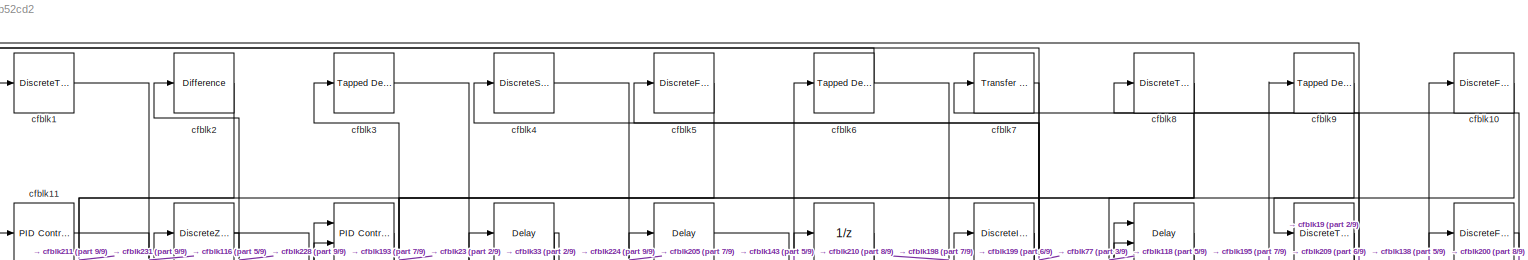
[diagram: root canvas - part 1/9, full width, top band]
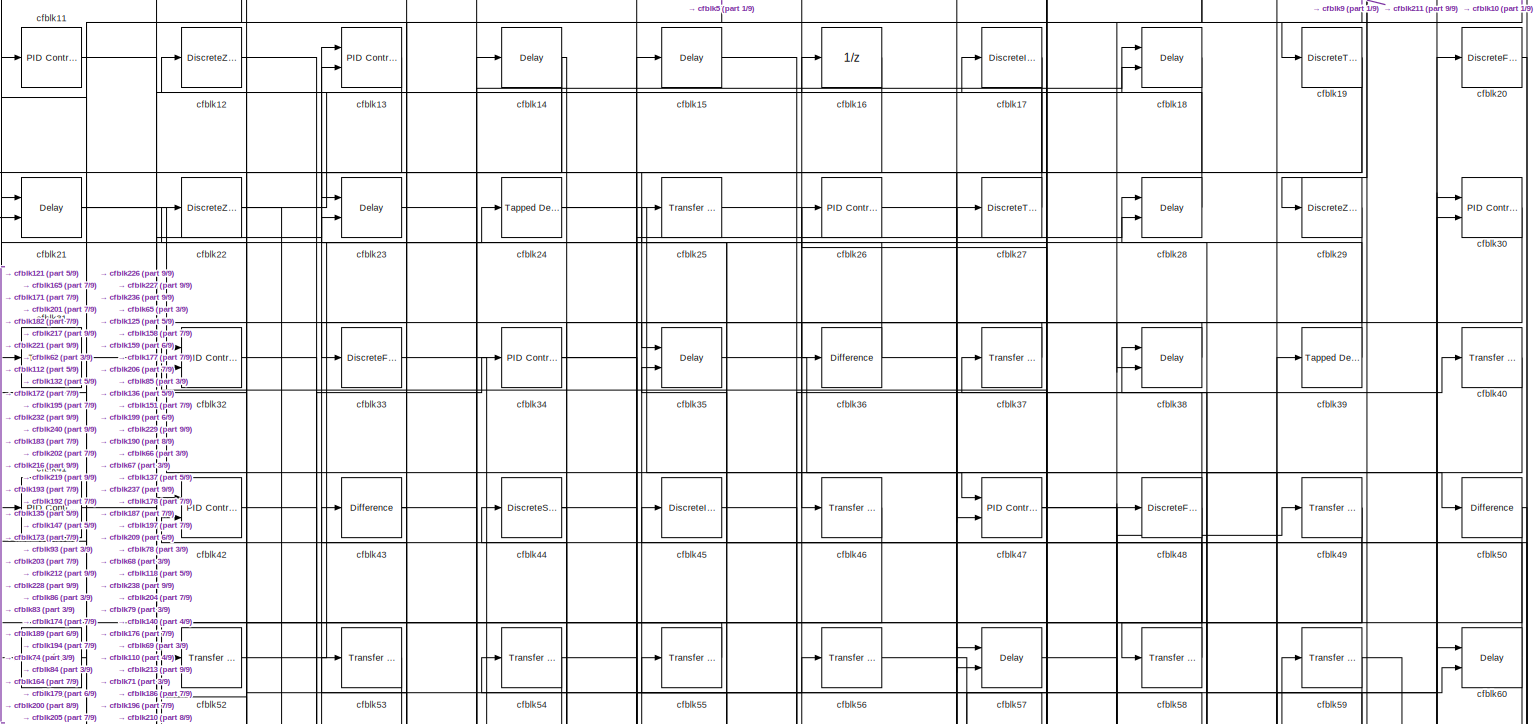
[diagram: root canvas - part 2/9, full width, top band]
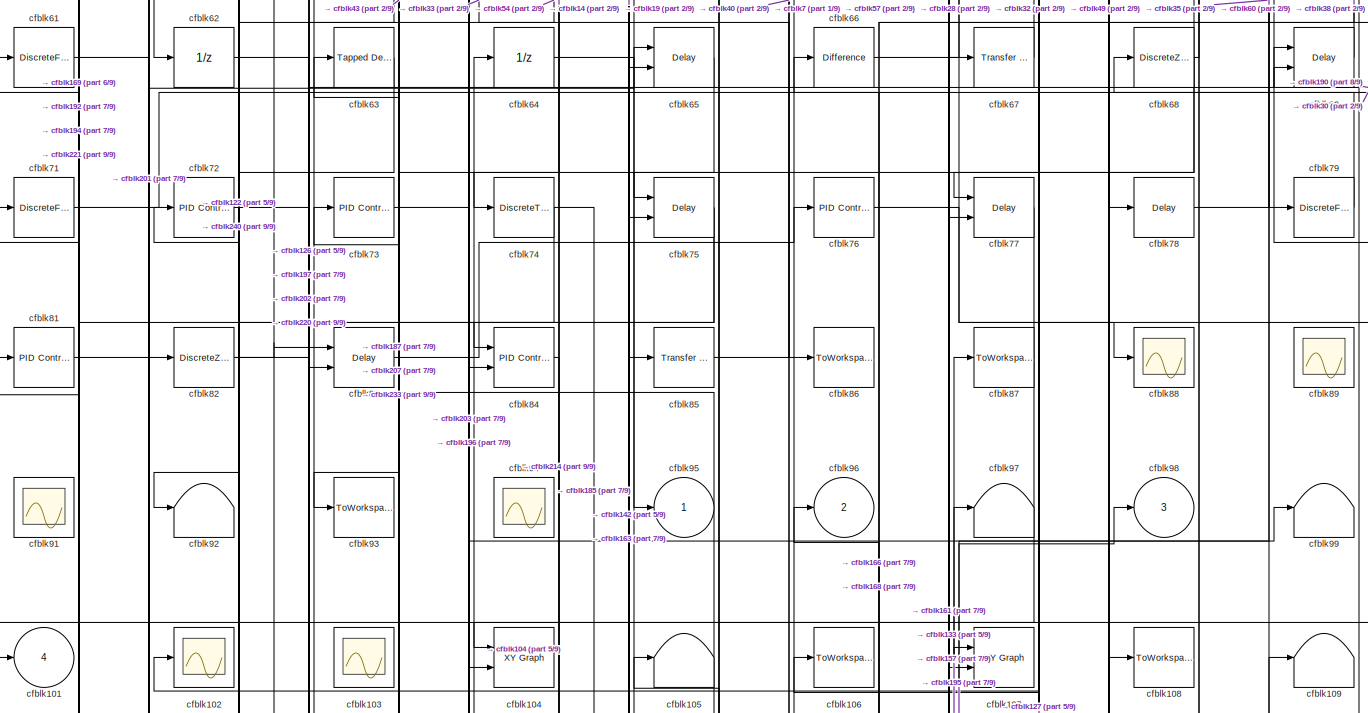
[diagram: root canvas - part 3/9, full width, middle band]
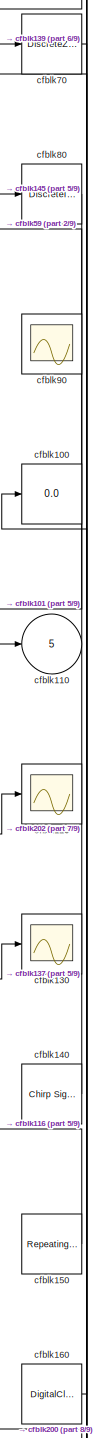
[diagram: root canvas - part 4/9, middle right region]
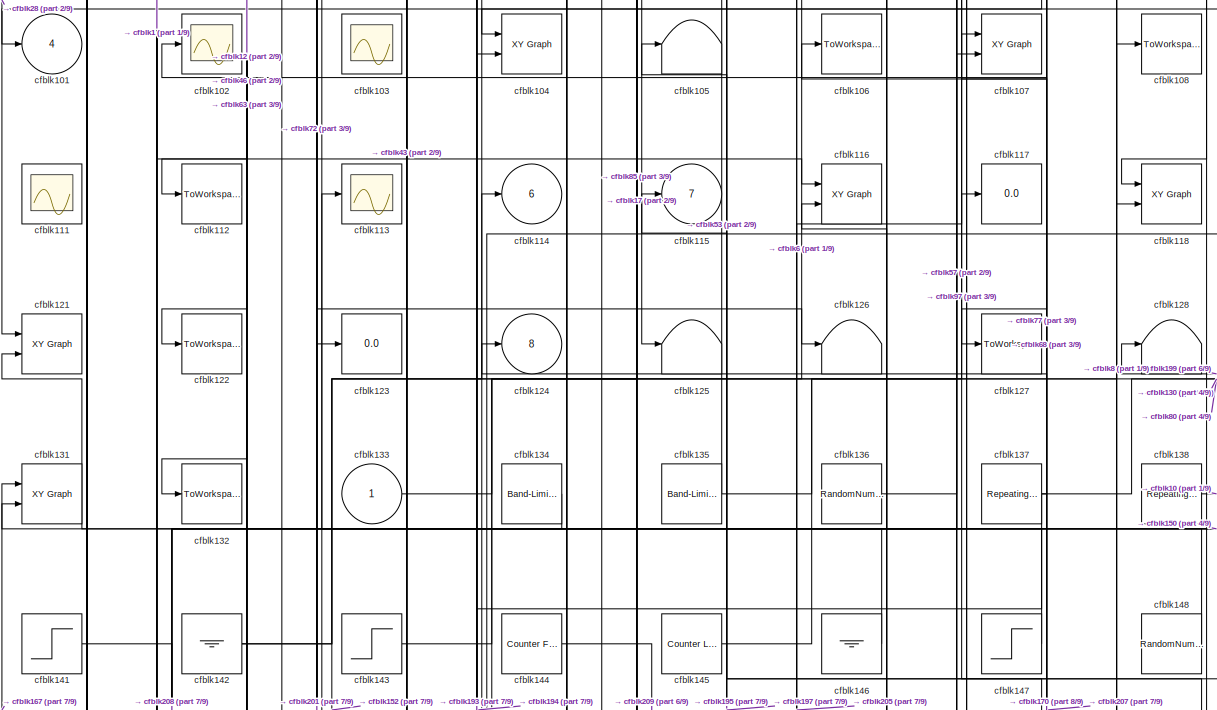
[diagram: root canvas - part 5/9, full width, middle band]
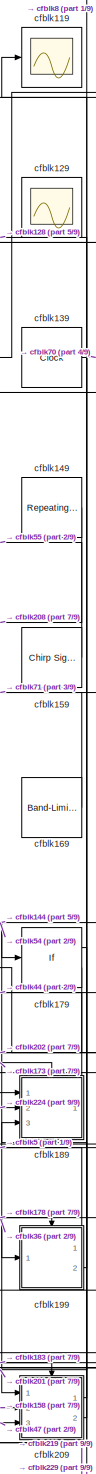
[diagram: root canvas - part 6/9, bottom right region]
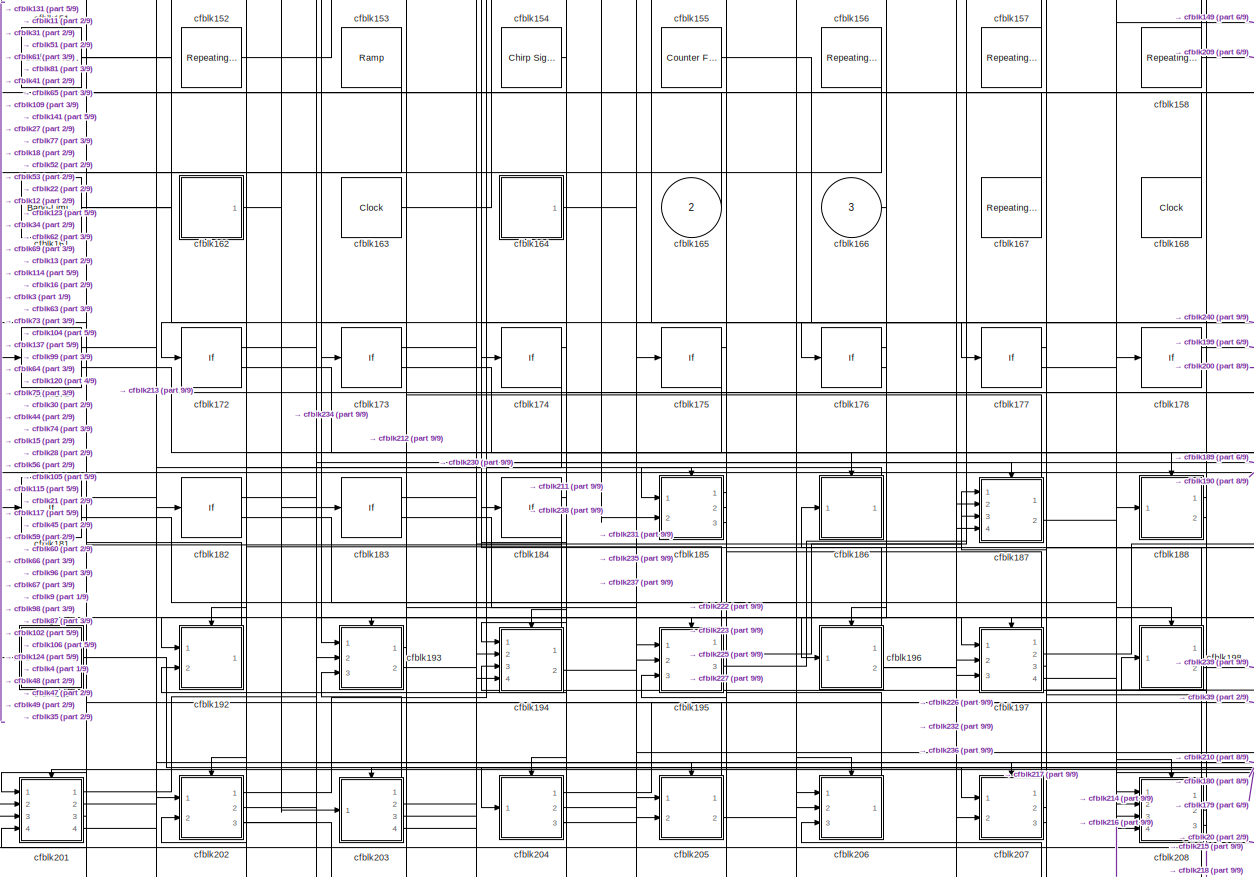
[diagram: root canvas - part 7/9, full width, bottom band]
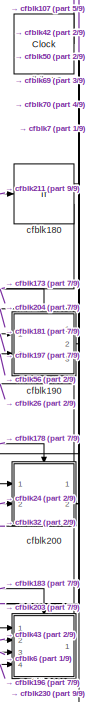
[diagram: root canvas - part 8/9, bottom right region]
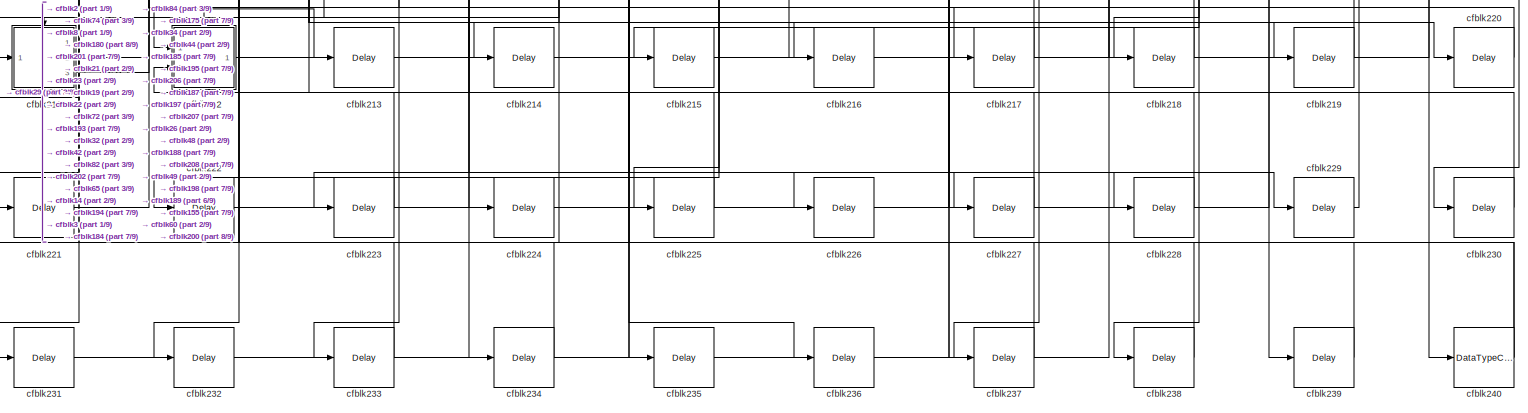
[diagram: root canvas - part 9/9, full width, bottom band]
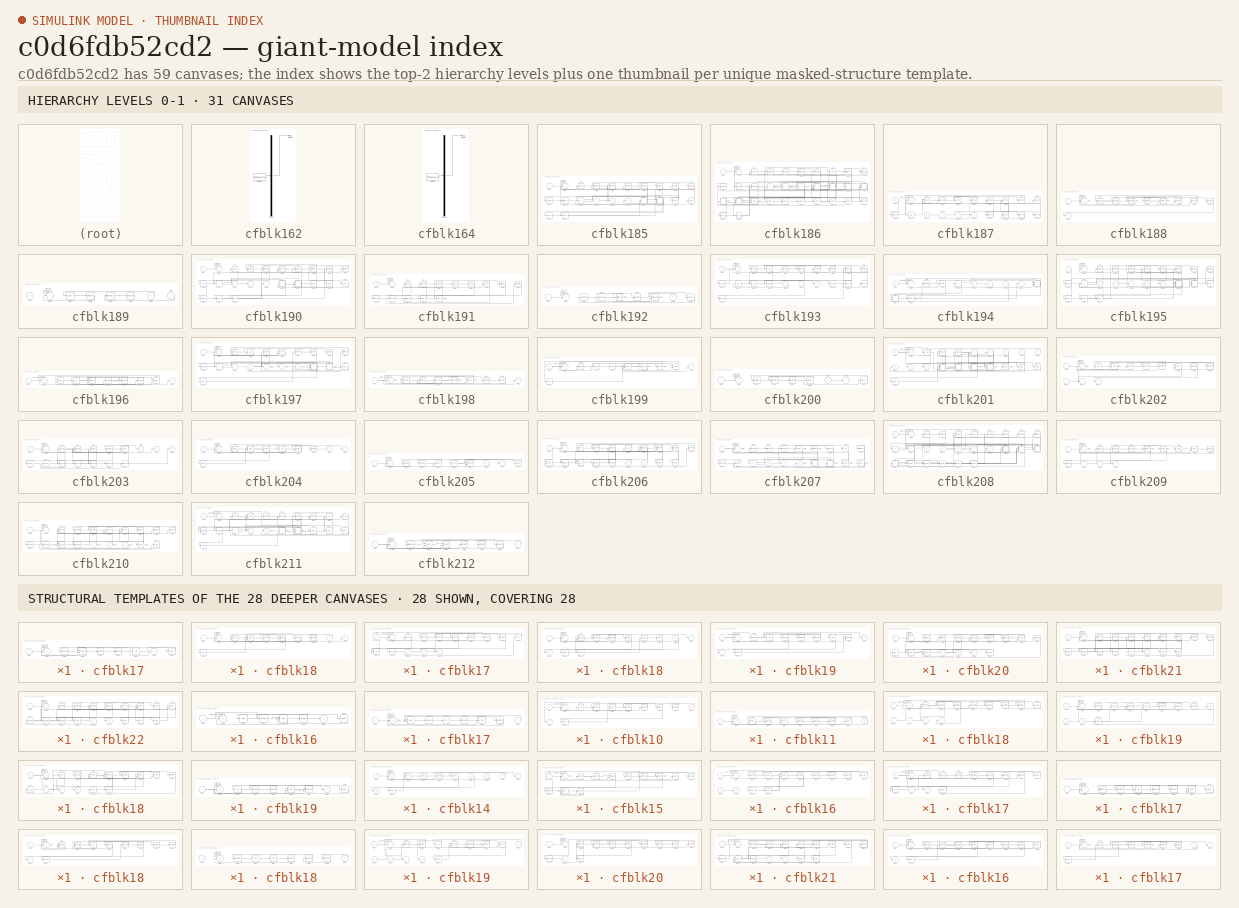
[diagram: thumbnail index - top-2 hierarchy levels (31 canvases) + 28 structural-template representatives of the remaining 28 canvases]
MODEL slx_c0d6fdb52cd2
KIND model
CONFIG AbsTol = auto
CONFIG EnableMultiTasking = off
CONFIG FixedStep = auto
CONFIG MaxStep = auto
CONFIG MinStep = auto
CONFIG RelTol = 1e-3
CONFIG SampleTimeConstraint = Unconstrained
CONFIG Solver = VariableStepAuto
CONFIG SolverName = VariableStepAuto
CONFIG StartTime = 0.0
CONFIG StopTime = 10.0
BLOCK [DiscreteTransferFcn] cfblk1
  InputPortMap = u0
  Ports = [1, 1]
  SampleTime = 1
BLOCK [DiscreteFilter] cfblk10
  InputPortMap = u0
  Ports = [1, 1]
  SampleTime = 1
BLOCK [Display] cfblk100
  Decimation = 1
  Ports = [1]
BLOCK [Outport] cfblk101
  IconDisplay = Port number
  Port = 4
BLOCK [Scope] cfblk102
  NumInputPorts = 1
  Ports = [1]
BLOCK [Scope] cfblk103
  Floating = on
  NumInputPorts = 1
  Ports = []
BLOCK [Reference] cfblk104  REF=simulink/Sinks/XY Graph
  Ports = [2]
  SourceBlock = simulink/Sinks/XY Graph
  SourceProductBaseCode = SL
  SourceProductName = Simulink
  SourceType = XY scope.
BLOCK [Terminator] cfblk105
BLOCK [ToWorkspace] cfblk106
  FixptAsFi = on
  MaxDataPoints = inf
  Ports = [1]
  SampleTime = -1
  Save2DSignal = 3-D array (concatenate along third dimension)
  SaveFormat = Timeseries
  VariableName = hqnbljg
BLOCK [Reference] cfblk107  REF=simulink/Sinks/XY Graph
  Ports = [2]
  SourceBlock = simulink/Sinks/XY Graph
  SourceProductBaseCode = SL
  SourceProductName = Simulink
  SourceType = XY scope.
BLOCK [ToWorkspace] cfblk108
  FixptAsFi = on
  MaxDataPoints = inf
  Ports = [1]
  SampleTime = -1
  Save2DSignal = 3-D array (concatenate along third dimension)
  SaveFormat = Timeseries
  VariableName = kqrxkcy
BLOCK [Terminator] cfblk109
BLOCK [Reference] cfblk11  REF=simulink/Continuous/PID Controller
  Ports = [1, 1]
  SourceBlock = simulink/Continuous/PID Controller
  SourceProductBaseCode = SL
  SourceProductName = Simulink
  SourceType = PID 1dof
BLOCK [Outport] cfblk110
  IconDisplay = Port number
  Port = 5
BLOCK [Scope] cfblk111
  Floating = on
  NumInputPorts = 1
  Ports = []
BLOCK [ToWorkspace] cfblk112
  FixptAsFi = on
  MaxDataPoints = inf
  Ports = [1]
  SampleTime = -1
  Save2DSignal = 3-D array (concatenate along third dimension)
  SaveFormat = Timeseries
  VariableName = otikzjx
BLOCK [Scope] cfblk113
  NumInputPorts = 1
  Ports = [1]
BLOCK [Outport] cfblk114
  IconDisplay = Port number
  Port = 6
BLOCK [Outport] cfblk115
  IconDisplay = Port number
  Port = 7
BLOCK [Reference] cfblk116  REF=simulink/Sinks/XY Graph
  Ports = [2]
  SourceBlock = simulink/Sinks/XY Graph
  SourceProductBaseCode = SL
  SourceProductName = Simulink
  SourceType = XY scope.
BLOCK [Display] cfblk117
  Decimation = 1
  Ports = [1]
BLOCK [Reference] cfblk118  REF=simulink/Sinks/XY Graph
  Ports = [2]
  SourceBlock = simulink/Sinks/XY Graph
  SourceProductBaseCode = SL
  SourceProductName = Simulink
  SourceType = XY scope.
BLOCK [Scope] cfblk119
  NumInputPorts = 1
  Ports = [1]
BLOCK [DiscreteZeroPole] cfblk12
  Gain = 1
  Poles = [0 0.5]
BLOCK [Scope] cfblk120
  NumInputPorts = 1
  Ports = [1]
BLOCK [Reference] cfblk121  REF=simulink/Sinks/XY Graph
  Ports = [2]
  SourceBlock = simulink/Sinks/XY Graph
  SourceProductBaseCode = SL
  SourceProductName = Simulink
  SourceType = XY scope.
BLOCK [ToWorkspace] cfblk122
  FixptAsFi = on
  MaxDataPoints = inf
  Ports = [1]
  SampleTime = -1
  Save2DSignal = 3-D array (concatenate along third dimension)
  SaveFormat = Timeseries
  VariableName = rqzqsdh
BLOCK [Display] cfblk123
  Decimation = 1
  Ports = [1]
BLOCK [Outport] cfblk124
  IconDisplay = Port number
  Port = 8
BLOCK [Terminator] cfblk125
BLOCK [Terminator] cfblk126
BLOCK [ToWorkspace] cfblk127
  FixptAsFi = on
  MaxDataPoints = inf
  Ports = [1]
  SampleTime = -1
  Save2DSignal = 3-D array (concatenate along third dimension)
  SaveFormat = Timeseries
  VariableName = jlhlkzi
BLOCK [Terminator] cfblk128
BLOCK [Scope] cfblk129
  Floating = on
  NumInputPorts = 1
  Ports = []
BLOCK [Reference] cfblk13  REF=simulink/Continuous/PID Controller (2DOF)
  Ports = [2, 1]
  SourceBlock = simulink/Continuous/PID Controller (2DOF)
  SourceProductBaseCode = SL
  SourceProductName = Simulink
  SourceType = PID 2dof
BLOCK [Scope] cfblk130
  NumInputPorts = 1
  Ports = [1]
BLOCK [Reference] cfblk131  REF=simulink/Sinks/XY Graph
  Ports = [2]
  SourceBlock = simulink/Sinks/XY Graph
  SourceProductBaseCode = SL
  SourceProductName = Simulink
  SourceType = XY scope.
BLOCK [ToWorkspace] cfblk132
  FixptAsFi = on
  MaxDataPoints = inf
  Ports = [1]
  SampleTime = -1
  Save2DSignal = 3-D array (concatenate along third dimension)
  SaveFormat = Timeseries
  VariableName = qjfdqit
BLOCK [Inport] cfblk133
  IconDisplay = Port number
BLOCK [Reference] cfblk134  REF=simulink/Sources/Band-Limited
White Noise
  Ports = [0, 1]
  SourceBlock = simulink/Sources/Band-Limited\nWhite Noise
  SourceProductBaseCode = SL
  SourceProductName = Simulink
  SourceType = Band-Limited White Noise.
BLOCK [Reference] cfblk135  REF=simulink/Sources/Band-Limited
White Noise
  Ports = [0, 1]
  SourceBlock = simulink/Sources/Band-Limited\nWhite Noise
  SourceProductBaseCode = SL
  SourceProductName = Simulink
  SourceType = Band-Limited White Noise.
BLOCK [RandomNumber] cfblk136
  SampleTime = 0.1
BLOCK [Reference] cfblk137  REF=simulink/Sources/Repeating
Sequence
Stair
  Ports = [0, 1]
  SourceBlock = simulink/Sources/Repeating\nSequence\nStair
  SourceProductBaseCode = SL
  SourceProductName = Simulink
  SourceType = Repeating Sequence Stair
BLOCK [Reference] cfblk138  REF=simulink/Sources/Repeating
Sequence
Stair
  Ports = [0, 1]
  SourceBlock = simulink/Sources/Repeating\nSequence\nStair
  SourceProductBaseCode = SL
  SourceProductName = Simulink
  SourceType = Repeating Sequence Stair
BLOCK [Clock] cfblk139
BLOCK [Delay] cfblk14
  InputPortMap = u0
  Ports = [1, 1]
  SampleTime = 1
BLOCK [Reference] cfblk140  REF=simulink/Sources/Chirp Signal
  Ports = [0, 1]
  SourceBlock = simulink/Sources/Chirp Signal
  SourceProductBaseCode = SL
  SourceProductName = Simulink
  SourceType = chirp
BLOCK [Step] cfblk141
  After = 53
  SampleTime = 0
BLOCK [Ground] cfblk142
BLOCK [Step] cfblk143
  After = 78
  SampleTime = 0
BLOCK [Reference] cfblk144  REF=simulink/Sources/Counter
Free-Running
  Ports = [0, 1]
  SourceBlock = simulink/Sources/Counter\nFree-Running
  SourceProductBaseCode = SL
  SourceProductName = Simulink
  SourceType = Counter Free-Running
BLOCK [Reference] cfblk145  REF=simulink/Sources/Counter
Limited
  Ports = [0, 1]
  SourceBlock = simulink/Sources/Counter\nLimited
  SourceProductBaseCode = SL
  SourceProductName = Simulink
  SourceType = Counter Limited
BLOCK [Ground] cfblk146
BLOCK [Step] cfblk147
  After = 42
  SampleTime = 0
BLOCK [RandomNumber] cfblk148
  SampleTime = 0.1
BLOCK [Reference] cfblk149  REF=simulink/Sources/Repeating
Sequence
  Ports = [0, 1]
  SourceBlock = simulink/Sources/Repeating\nSequence
  SourceProductBaseCode = SL
  SourceProductName = Simulink
  SourceType = Repeating table
BLOCK [Delay] cfblk15
  InputPortMap = u0
  Ports = [1, 1]
  SampleTime = 1
BLOCK [Reference] cfblk150  REF=simulink/Sources/Repeating
Sequence
Interpolated
  Ports = [0, 1]
  SourceBlock = simulink/Sources/Repeating\nSequence\nInterpolated
  SourceProductBaseCode = SL
  SourceProductName = Simulink
  SourceType = Repeating Sequence Interpolated
BLOCK [UniformRandomNumber] cfblk151
  SampleTime = 0.1
BLOCK [Reference] cfblk152  REF=simulink/Sources/Repeating
Sequence
Interpolated
  Ports = [0, 1]
  SourceBlock = simulink/Sources/Repeating\nSequence\nInterpolated
  SourceProductBaseCode = SL
  SourceProductName = Simulink
  SourceType = Repeating Sequence Interpolated
BLOCK [Reference] cfblk153  REF=simulink/Sources/Ramp
  Ports = [0, 1]
  SourceBlock = simulink/Sources/Ramp
  SourceProductBaseCode = SL
  SourceProductName = Simulink
  SourceType = Ramp
BLOCK [Reference] cfblk154  REF=simulink/Sources/Chirp Signal
  Ports = [0, 1]
  SourceBlock = simulink/Sources/Chirp Signal
  SourceProductBaseCode = SL
  SourceProductName = Simulink
  SourceType = chirp
BLOCK [Reference] cfblk155  REF=simulink/Sources/Counter
Free-Running
  Ports = [0, 1]
  SourceBlock = simulink/Sources/Counter\nFree-Running
  SourceProductBaseCode = SL
  SourceProductName = Simulink
  SourceType = Counter Free-Running
BLOCK [Reference] cfblk156  REF=simulink/Sources/Repeating
Sequence
  Ports = [0, 1]
  SourceBlock = simulink/Sources/Repeating\nSequence
  SourceProductBaseCode = SL
  SourceProductName = Simulink
  SourceType = Repeating table
BLOCK [Reference] cfblk157  REF=simulink/Sources/Repeating
Sequence
Stair
  Ports = [0, 1]
  SourceBlock = simulink/Sources/Repeating\nSequence\nStair
  SourceProductBaseCode = SL
  SourceProductName = Simulink
  SourceType = Repeating Sequence Stair
BLOCK [Reference] cfblk158  REF=simulink/Sources/Repeating
Sequence
  Ports = [0, 1]
  SourceBlock = simulink/Sources/Repeating\nSequence
  SourceProductBaseCode = SL
  SourceProductName = Simulink
  SourceType = Repeating table
BLOCK [Reference] cfblk159  REF=simulink/Sources/Chirp Signal
  Ports = [0, 1]
  SourceBlock = simulink/Sources/Chirp Signal
  SourceProductBaseCode = SL
  SourceProductName = Simulink
  SourceType = chirp
BLOCK [UnitDelay] cfblk16
  InputProcessing = Elements as channels (sample based)
BLOCK [DigitalClock] cfblk160
BLOCK [Reference] cfblk161  REF=simulink/Sources/Band-Limited
White Noise
  Ports = [0, 1]
  SourceBlock = simulink/Sources/Band-Limited\nWhite Noise
  SourceProductBaseCode = SL
  SourceProductName = Simulink
  SourceType = Band-Limited White Noise.
BLOCK [SubSystem] cfblk162
  ClipboardFcn = sigbuilder_block('clipboard');
  CloseFcn = sigbuilder_block('close');
  ContinueFcn = sigbuilder_block('continue');
  CopyFcn = sigbuilder_block('copy');
  DeleteFcn = sigbuilder_block('delete');
  LoadFcn = sigbuilder_block('load');
  MaskHideContents = on
  ModelCloseFcn = sigbuilder_block('modelClose');
  NameChangeFcn = sigbuilder_block('namechange');
  OpenFcn = sigbuilder_block('open',[437.6 199.2 550.4 400 ]);
  PauseFcn = sigbuilder_block('pause');
  Ports = [0, 1]
  PreSaveFcn = sigbuilder_block('preSave');
  RequestExecContextInheritance = off
  StartFcn = sigbuilder_block('start');
  StopFcn = sigbuilder_block('stop');
  Tag = STV Subsys
  Variant = off
BLOCK [Demux] cfblk162/Demux
  Outputs = 1
  Ports = [1, 1]
  Tag = STV Demux
BLOCK [FromWorkspace] cfblk162/FromWs
  SampleTime = 0
  Tag = STV FromWs
  VariableName = tuvar
  ZeroCross = on
BLOCK [Outport] cfblk162/Signal 1
  IconDisplay = Port number
  Tag = STV Outport
BLOCK [Clock] cfblk163
BLOCK [SubSystem] cfblk164
  ClipboardFcn = sigbuilder_block('clipboard');
  CloseFcn = sigbuilder_block('close');
  ContinueFcn = sigbuilder_block('continue');
  CopyFcn = sigbuilder_block('copy');
  DeleteFcn = sigbuilder_block('delete');
  LoadFcn = sigbuilder_block('load');
  MaskHideContents = on
  ModelCloseFcn = sigbuilder_block('modelClose');
  NameChangeFcn = sigbuilder_block('namechange');
  OpenFcn = sigbuilder_block('open',[437.6 199.2 550.4 400 ]);
  PauseFcn = sigbuilder_block('pause');
  Ports = [0, 1]
  PreSaveFcn = sigbuilder_block('preSave');
  RequestExecContextInheritance = off
  StartFcn = sigbuilder_block('start');
  StopFcn = sigbuilder_block('stop');
  Tag = STV Subsys
  Variant = off
BLOCK [Demux] cfblk164/Demux
  Outputs = 1
  Ports = [1, 1]
  Tag = STV Demux
BLOCK [FromWorkspace] cfblk164/FromWs
  SampleTime = 0
  Tag = STV FromWs
  VariableName = tuvar
  ZeroCross = on
BLOCK [Outport] cfblk164/Signal 1
  IconDisplay = Port number
  Tag = STV Outport
BLOCK [Inport] cfblk165
  IconDisplay = Port number
  Port = 2
BLOCK [Inport] cfblk166
  IconDisplay = Port number
  Port = 3
BLOCK [Reference] cfblk167  REF=simulink/Sources/Repeating
Sequence
Stair
  Ports = [0, 1]
  SourceBlock = simulink/Sources/Repeating\nSequence\nStair
  SourceProductBaseCode = SL
  SourceProductName = Simulink
  SourceType = Repeating Sequence Stair
BLOCK [Clock] cfblk168
BLOCK [Reference] cfblk169  REF=simulink/Sources/Band-Limited
White Noise
  Ports = [0, 1]
  SourceBlock = simulink/Sources/Band-Limited\nWhite Noise
  SourceProductBaseCode = SL
  SourceProductName = Simulink
  SourceType = Band-Limited White Noise.
BLOCK [DiscreteIntegrator] cfblk17
  ICPrevOutput = DiscIntNeverNeededParam
  ICPrevScaledInput = DiscIntNeverNeededParam
  InitialConditionSetting = State (most efficient)
  Ports = [1, 1]
BLOCK [Clock] cfblk170
BLOCK [If] cfblk171
  Ports = [1, 2]
  SampleTime = 1
BLOCK [If] cfblk172
  Ports = [1, 2]
  SampleTime = 1
BLOCK [If] cfblk173
  Ports = [1, 2]
  SampleTime = 1
BLOCK [If] cfblk174
  Ports = [1, 2]
  SampleTime = 1
BLOCK [If] cfblk175
  Ports = [1, 2]
  SampleTime = 1
BLOCK [If] cfblk176
  Ports = [1, 2]
  SampleTime = 1
BLOCK [If] cfblk177
  Ports = [1, 2]
  SampleTime = 1
BLOCK [If] cfblk178
  Ports = [1, 2]
  SampleTime = 1
BLOCK [If] cfblk179
  Ports = [1, 2]
  SampleTime = 1
BLOCK [Delay] cfblk18
  DelayLengthSource = Input port
  InputPortMap = u0,p1
  Ports = [2, 1]
  SampleTime = 1
BLOCK [If] cfblk180
  Ports = [1, 2]
  SampleTime = 1
BLOCK [If] cfblk181
  Ports = [1, 2]
  SampleTime = 1
BLOCK [If] cfblk182
  Ports = [1, 2]
  SampleTime = 1
BLOCK [If] cfblk183
  Ports = [1, 2]
  SampleTime = 1
BLOCK [If] cfblk184
  Ports = [1, 2]
  SampleTime = 1
BLOCK [SubSystem] cfblk185
  Ports = [2, 3, 0, 0, 0, 0, 0, 1]
  RequestExecContextInheritance = off
  TreatAsAtomicUnit = on
  Variant = off
BLOCK [ActionPort] cfblk185/Action Port
  ActionType = then
BLOCK [Inport] cfblk185/cfblk1
  IconDisplay = Port number
BLOCK [Reference] cfblk185/cfblk10  REF=simulink/Discrete/Transfer Fcn
First Order
  Ports = [1, 1]
  SourceBlock = simulink/Discrete/Transfer Fcn\nFirst Order
  SourceProductBaseCode = SL
  SourceProductName = Simulink
  SourceType = First Order Transfer Fcn
BLOCK [DiscreteStateSpace] cfblk185/cfblk11
  SampleTime = -1
BLOCK [Reference] cfblk185/cfblk12  REF=simulink/Discrete/Difference
  Ports = [1, 1]
  SourceBlock = simulink/Discrete/Difference
  SourceProductBaseCode = SL
  SourceProductName = Simulink
  SourceType = Difference
BLOCK [If] cfblk185/cfblk13
  Ports = [1, 2]
  SampleTime = 1
BLOCK [Inport] cfblk185/cfblk14
  IconDisplay = Port number
  Port = 2
BLOCK [Outport] cfblk185/cfblk15
  IconDisplay = Port number
  Port = 2
BLOCK [Outport] cfblk185/cfblk16
  IconDisplay = Port number
  Port = 3
BLOCK [SubSystem] cfblk185/cfblk17
  Ports = [1, 2, 0, 0, 0, 0, 0, 1]
  RequestExecContextInheritance = off
  TreatAsAtomicUnit = on
  Variant = off
BLOCK [ActionPort] cfblk185/cfblk17/Action Port
  ActionType = then
BLOCK [Inport] cfblk185/cfblk17/cfblk1
  IconDisplay = Port number
BLOCK [Outport] cfblk185/cfblk17/cfblk2
  IconDisplay = Port number
BLOCK [Reference] cfblk185/cfblk17/cfblk3  REF=simulink/Discrete/Tapped Delay
  Ports = [1, 1]
  SourceBlock = simulink/Discrete/Tapped Delay
  SourceProductBaseCode = SL
  SourceProductName = Simulink
  SourceType = Tapped Delay Line
BLOCK [Delay] cfblk185/cfblk17/cfblk4
  DelayLengthSource = Input port
  InputPortMap = u0,p1
  Ports = [2, 1]
BLOCK [DiscreteTransferFcn] cfblk185/cfblk17/cfblk5
  InputPortMap = u0
  Ports = [1, 1]
BLOCK [Reference] cfblk185/cfblk17/cfblk6  REF=simulink/Discrete/Difference
  Ports = [1, 1]
  SourceBlock = simulink/Discrete/Difference
  SourceProductBaseCode = SL
  SourceProductName = Simulink
  SourceType = Difference
BLOCK [UnitDelay] cfblk185/cfblk17/cfblk7
  InputProcessing = Elements as channels (sample based)
  SampleTime = -1
BLOCK [Outport] cfblk185/cfblk17/cfblk8
  IconDisplay = Port number
  Port = 2
BLOCK [Delay] cfblk185/cfblk17/cfblk9
  InputPortMap = u0
  Ports = [1, 1]
BLOCK [SubSystem] cfblk185/cfblk18
  Ports = [2, 2, 0, 0, 0, 0, 0, 1]
  RequestExecContextInheritance = off
  TreatAsAtomicUnit = on
  Variant = off
BLOCK [ActionPort] cfblk185/cfblk18/Action Port
  ActionType = else
BLOCK [Inport] cfblk185/cfblk18/cfblk1
  IconDisplay = Port number
BLOCK [Outport] cfblk185/cfblk18/cfblk10
  IconDisplay = Port number
  Port = 2
BLOCK [Delay] cfblk185/cfblk18/cfblk11
  InputPortMap = u0
  Ports = [1, 1]
BLOCK [Outport] cfblk185/cfblk18/cfblk2
  IconDisplay = Port number
BLOCK [Delay] cfblk185/cfblk18/cfblk3
  DelayLengthSource = Input port
  InputPortMap = u0,p1
  Ports = [2, 1]
BLOCK [Delay] cfblk185/cfblk18/cfblk4
  DelayLengthSource = Input port
  InputPortMap = u0,p1
  Ports = [2, 1]
BLOCK [Reference] cfblk185/cfblk18/cfblk5  REF=simulink/Discrete/Tapped Delay
  Ports = [1, 1]
  SourceBlock = simulink/Discrete/Tapped Delay
  SourceProductBaseCode = SL
  SourceProductName = Simulink
  SourceType = Tapped Delay Line
BLOCK [Reference] cfblk185/cfblk18/cfblk6  REF=simulink/Discrete/Difference
  Ports = [1, 1]
  SourceBlock = simulink/Discrete/Difference
  SourceProductBaseCode = SL
  SourceProductName = Simulink
  SourceType = Difference
BLOCK [Reference] cfblk185/cfblk18/cfblk7  REF=simulink/Discrete/Transfer Fcn
Real Zero
  Ports = [1, 1]
  SourceBlock = simulink/Discrete/Transfer Fcn\nReal Zero
  SourceProductBaseCode = SL
  SourceProductName = Simulink
  SourceType = Transfer Fcn Real Zero
BLOCK [DiscreteStateSpace] cfblk185/cfblk18/cfblk8
  SampleTime = -1
BLOCK [Inport] cfblk185/cfblk18/cfblk9
  IconDisplay = Port number
  Port = 2
BLOCK [Delay] cfblk185/cfblk19
  InputPortMap = u0
  Ports = [1, 1]
BLOCK [Outport] cfblk185/cfblk2
  IconDisplay = Port number
BLOCK [Delay] cfblk185/cfblk20
  InputPortMap = u0
  Ports = [1, 1]
BLOCK [Delay] cfblk185/cfblk21
  InputPortMap = u0
  Ports = [1, 1]
BLOCK [Delay] cfblk185/cfblk22
  InputPortMap = u0
  Ports = [1, 1]
BLOCK [Delay] cfblk185/cfblk3
  InputPortMap = u0
  Ports = [1, 1]
BLOCK [Reference] cfblk185/cfblk4  REF=simulink/Discrete/Tapped Delay
  Ports = [1, 1]
  SourceBlock = simulink/Discrete/Tapped Delay
  SourceProductBaseCode = SL
  SourceProductName = Simulink
  SourceType = Tapped Delay Line
BLOCK [Reference] cfblk185/cfblk5  REF=simulink/Continuous/PID Controller (2DOF)
  Ports = [2, 1]
  SourceBlock = simulink/Continuous/PID Controller (2DOF)
  SourceProductBaseCode = SL
  SourceProductName = Simulink
  SourceType = PID 2dof
BLOCK [DiscreteIntegrator] cfblk185/cfblk6
  ICPrevOutput = DiscIntNeverNeededParam
  ICPrevScaledInput = DiscIntNeverNeededParam
  InitialConditionSetting = State (most efficient)
  Ports = [1, 1]
  SampleTime = -1
BLOCK [DiscreteZeroPole] cfblk185/cfblk7
  Gain = 1
  Poles = [0 0.5]
  SampleTime = -1
BLOCK [DiscreteFir] cfblk185/cfblk8
  InputPortMap = u0
  OutputPortMap = o0
  Ports = [1, 1]
BLOCK [Delay] cfblk185/cfblk9
  InputPortMap = u0
  Ports = [1, 1]
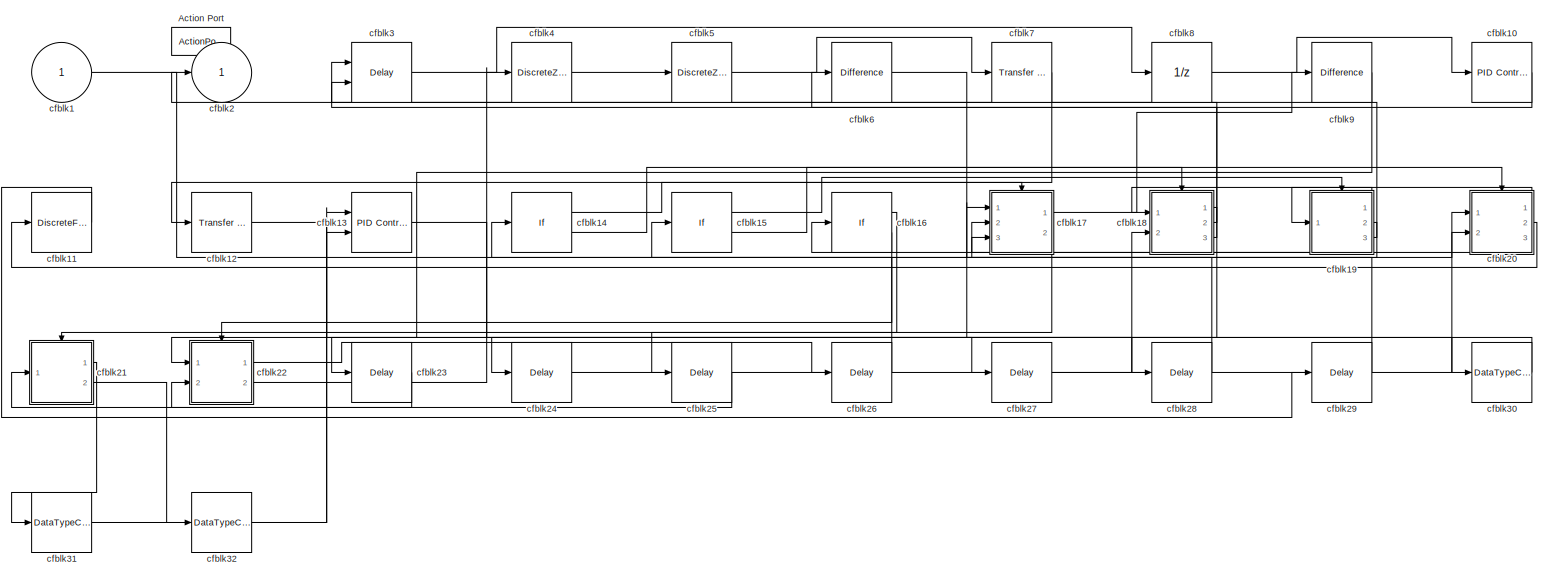
[diagram: cfblk186 - part 1/1, most of the canvas]
BLOCK [SubSystem] cfblk186
  Ports = [1, 1, 0, 0, 0, 0, 0, 1]
  RequestExecContextInheritance = off
  TreatAsAtomicUnit = on
  Variant = off
BLOCK [ActionPort] cfblk186/Action Port
  ActionType = else
BLOCK [Inport] cfblk186/cfblk1
  IconDisplay = Port number
BLOCK [Reference] cfblk186/cfblk10  REF=simulink/Continuous/PID Controller
  Ports = [1, 1]
  SourceBlock = simulink/Continuous/PID Controller
  SourceProductBaseCode = SL
  SourceProductName = Simulink
  SourceType = PID 1dof
BLOCK [DiscreteFilter] cfblk186/cfblk11
  InputPortMap = u0
  Ports = [1, 1]
BLOCK [Reference] cfblk186/cfblk12  REF=simulink/Discrete/Transfer Fcn
Lead or Lag
  Ports = [1, 1]
  SourceBlock = simulink/Discrete/Transfer Fcn\nLead or Lag
  SourceProductBaseCode = SL
  SourceProductName = Simulink
  SourceType = Lead or Lag Compensator
BLOCK [Reference] cfblk186/cfblk13  REF=simulink/Continuous/PID Controller (2DOF)
  Ports = [2, 1]
  SourceBlock = simulink/Continuous/PID Controller (2DOF)
  SourceProductBaseCode = SL
  SourceProductName = Simulink
  SourceType = PID 2dof
BLOCK [If] cfblk186/cfblk14
  Ports = [1, 2]
  SampleTime = 1
BLOCK [If] cfblk186/cfblk15
  Ports = [1, 2]
  SampleTime = 1
BLOCK [If] cfblk186/cfblk16
  Ports = [1, 2]
  SampleTime = 1
BLOCK [SubSystem] cfblk186/cfblk17
  Ports = [3, 2, 0, 0, 0, 0, 0, 1]
  RequestExecContextInheritance = off
  TreatAsAtomicUnit = on
  Variant = off
BLOCK [ActionPort] cfblk186/cfblk17/Action Port
  ActionType = then
BLOCK [Inport] cfblk186/cfblk17/cfblk1
  IconDisplay = Port number
BLOCK [UnitDelay] cfblk186/cfblk17/cfblk10
  InputProcessing = Elements as channels (sample based)
  SampleTime = -1
BLOCK [Delay] cfblk186/cfblk17/cfblk11
  InputPortMap = u0,e6
  Ports = [2, 1]
  ShowEnablePort = on
BLOCK [Reference] cfblk186/cfblk17/cfblk12  REF=simulink/Discrete/Transfer Fcn
Lead or Lag
  Ports = [1, 1]
  SourceBlock = simulink/Discrete/Transfer Fcn\nLead or Lag
  SourceProductBaseCode = SL
  SourceProductName = Simulink
  SourceType = Lead or Lag Compensator
BLOCK [Inport] cfblk186/cfblk17/cfblk13
  IconDisplay = Port number
  Port = 2
BLOCK [Inport] cfblk186/cfblk17/cfblk14
  IconDisplay = Port number
  Port = 3
BLOCK [Outport] cfblk186/cfblk17/cfblk15
  IconDisplay = Port number
  Port = 2
BLOCK [Outport] cfblk186/cfblk17/cfblk2
  IconDisplay = Port number
BLOCK [Reference] cfblk186/cfblk17/cfblk3  REF=simulink/Discrete/Transfer Fcn
First Order
  Ports = [1, 1]
  SourceBlock = simulink/Discrete/Transfer Fcn\nFirst Order
  SourceProductBaseCode = SL
  SourceProductName = Simulink
  SourceType = First Order Transfer Fcn
BLOCK [Reference] cfblk186/cfblk17/cfblk4  REF=simulink/Discrete/Transfer Fcn
Lead or Lag
  Ports = [1, 1]
  SourceBlock = simulink/Discrete/Transfer Fcn\nLead or Lag
  SourceProductBaseCode = SL
  SourceProductName = Simulink
  SourceType = Lead or Lag Compensator
BLOCK [Reference] cfblk186/cfblk17/cfblk5  REF=simulink/Discrete/Transfer Fcn
First Order
  Ports = [1, 1]
  SourceBlock = simulink/Discrete/Transfer Fcn\nFirst Order
  SourceProductBaseCode = SL
  SourceProductName = Simulink
  SourceType = First Order Transfer Fcn
BLOCK [Reference] cfblk186/cfblk17/cfblk6  REF=simulink/Discrete/Transfer Fcn
Real Zero
  Ports = [1, 1]
  SourceBlock = simulink/Discrete/Transfer Fcn\nReal Zero
  SourceProductBaseCode = SL
  SourceProductName = Simulink
  SourceType = Transfer Fcn Real Zero
BLOCK [DiscreteStateSpace] cfblk186/cfblk17/cfblk7
  SampleTime = -1
BLOCK [Reference] cfblk186/cfblk17/cfblk8  REF=simulink/Discrete/Tapped Delay
  Ports = [1, 1]
  SourceBlock = simulink/Discrete/Tapped Delay
  SourceProductBaseCode = SL
  SourceProductName = Simulink
  SourceType = Tapped Delay Line
BLOCK [DiscreteZeroPole] cfblk186/cfblk17/cfblk9
  Gain = 1
  Poles = [0 0.5]
  SampleTime = -1
BLOCK [SubSystem] cfblk186/cfblk18
  Ports = [2, 3, 0, 0, 0, 0, 0, 1]
  RequestExecContextInheritance = off
  TreatAsAtomicUnit = on
  Variant = off
BLOCK [ActionPort] cfblk186/cfblk18/Action Port
  ActionType = else
BLOCK [Inport] cfblk186/cfblk18/cfblk1
  IconDisplay = Port number
BLOCK [Outport] cfblk186/cfblk18/cfblk10
  IconDisplay = Port number
  Port = 2
BLOCK [Outport] cfblk186/cfblk18/cfblk11
  IconDisplay = Port number
  Port = 3
BLOCK [Delay] cfblk186/cfblk18/cfblk12
  InputPortMap = u0
  Ports = [1, 1]
BLOCK [Delay] cfblk186/cfblk18/cfblk13
  InputPortMap = u0
  Ports = [1, 1]
BLOCK [Outport] cfblk186/cfblk18/cfblk2
  IconDisplay = Port number
BLOCK [Reference] cfblk186/cfblk18/cfblk3  REF=simulink/Continuous/PID Controller (2DOF)
  Ports = [2, 1]
  SourceBlock = simulink/Continuous/PID Controller (2DOF)
  SourceProductBaseCode = SL
  SourceProductName = Simulink
  SourceType = PID 2dof
BLOCK [DiscreteFilter] cfblk186/cfblk18/cfblk4
  InputPortMap = u0
  Ports = [1, 1]
BLOCK [Reference] cfblk186/cfblk18/cfblk5  REF=simulink/Discrete/Tapped Delay
  Ports = [1, 1]
  SourceBlock = simulink/Discrete/Tapped Delay
  SourceProductBaseCode = SL
  SourceProductName = Simulink
  SourceType = Tapped Delay Line
BLOCK [DiscreteFir] cfblk186/cfblk18/cfblk6
  InputPortMap = u0
  OutputPortMap = o0
  Ports = [1, 1]
BLOCK [Delay] cfblk186/cfblk18/cfblk7
  InputPortMap = u0
  Ports = [1, 1]
BLOCK [Reference] cfblk186/cfblk18/cfblk8  REF=simulink/Discrete/Transfer Fcn
First Order
  Ports = [1, 1]
  SourceBlock = simulink/Discrete/Transfer Fcn\nFirst Order
  SourceProductBaseCode = SL
  SourceProductName = Simulink
  SourceType = First Order Transfer Fcn
BLOCK [Inport] cfblk186/cfblk18/cfblk9
  IconDisplay = Port number
  Port = 2
BLOCK [SubSystem] cfblk186/cfblk19
  Ports = [1, 3, 0, 0, 0, 0, 0, 1]
  RequestExecContextInheritance = off
  TreatAsAtomicUnit = on
  Variant = off
BLOCK [ActionPort] cfblk186/cfblk19/Action Port
  ActionType = then
BLOCK [Inport] cfblk186/cfblk19/cfblk1
  IconDisplay = Port number
BLOCK [Outport] cfblk186/cfblk19/cfblk10
  IconDisplay = Port number
  Port = 2
BLOCK [Outport] cfblk186/cfblk19/cfblk11
  IconDisplay = Port number
  Port = 3
BLOCK [Delay] cfblk186/cfblk19/cfblk12
  InputPortMap = u0
  Ports = [1, 1]
BLOCK [Outport] cfblk186/cfblk19/cfblk2
  IconDisplay = Port number
BLOCK [Delay] cfblk186/cfblk19/cfblk3
  InputPortMap = u0
  Ports = [1, 1]
BLOCK [UnitDelay] cfblk186/cfblk19/cfblk4
  InputProcessing = Elements as channels (sample based)
  SampleTime = -1
BLOCK [Reference] cfblk186/cfblk19/cfblk5  REF=simulink/Discrete/Tapped Delay
  Ports = [1, 1]
  SourceBlock = simulink/Discrete/Tapped Delay
  SourceProductBaseCode = SL
  SourceProductName = Simulink
  SourceType = Tapped Delay Line
BLOCK [DiscreteStateSpace] cfblk186/cfblk19/cfblk6
  SampleTime = -1
BLOCK [DiscreteFir] cfblk186/cfblk19/cfblk7
  InputPortMap = u0
  OutputPortMap = o0
  Ports = [1, 1]
BLOCK [UnitDelay] cfblk186/cfblk19/cfblk8
  InputProcessing = Elements as channels (sample based)
  SampleTime = -1
BLOCK [Reference] cfblk186/cfblk19/cfblk9  REF=simulink/Continuous/PID Controller (2DOF)
  Ports = [2, 1]
  SourceBlock = simulink/Continuous/PID Controller (2DOF)
  SourceProductBaseCode = SL
  SourceProductName = Simulink
  SourceType = PID 2dof
BLOCK [Outport] cfblk186/cfblk2
  IconDisplay = Port number
BLOCK [SubSystem] cfblk186/cfblk20
  Ports = [2, 3, 0, 0, 0, 0, 0, 1]
  RequestExecContextInheritance = off
  TreatAsAtomicUnit = on
  Variant = off
BLOCK [ActionPort] cfblk186/cfblk20/Action Port
  ActionType = else
BLOCK [Inport] cfblk186/cfblk20/cfblk1
  IconDisplay = Port number
BLOCK [Reference] cfblk186/cfblk20/cfblk10  REF=simulink/Discrete/Transfer Fcn
First Order
  Ports = [1, 1]
  SourceBlock = simulink/Discrete/Transfer Fcn\nFirst Order
  SourceProductBaseCode = SL
  SourceProductName = Simulink
  SourceType = First Order Transfer Fcn
BLOCK [Delay] cfblk186/cfblk20/cfblk11
  InputPortMap = u0
  Ports = [1, 1]
BLOCK [Delay] cfblk186/cfblk20/cfblk12
  DelayLengthSource = Input port
  InputPortMap = u0,p1
  Ports = [2, 1]
BLOCK [Delay] cfblk186/cfblk20/cfblk13
  InputPortMap = u0,e6
  Ports = [2, 1]
  ShowEnablePort = on
BLOCK [Inport] cfblk186/cfblk20/cfblk14
  IconDisplay = Port number
  Port = 2
BLOCK [Outport] cfblk186/cfblk20/cfblk15
  IconDisplay = Port number
  Port = 2
BLOCK [Outport] cfblk186/cfblk20/cfblk16
  IconDisplay = Port number
  Port = 3
BLOCK [Delay] cfblk186/cfblk20/cfblk17
  InputPortMap = u0
  Ports = [1, 1]
BLOCK [Outport] cfblk186/cfblk20/cfblk2
  IconDisplay = Port number
BLOCK [DiscreteZeroPole] cfblk186/cfblk20/cfblk3
  Gain = 1
  Poles = [0 0.5]
  SampleTime = -1
BLOCK [Reference] cfblk186/cfblk20/cfblk4  REF=simulink/Discrete/Difference
  Ports = [1, 1]
  SourceBlock = simulink/Discrete/Difference
  SourceProductBaseCode = SL
  SourceProductName = Simulink
  SourceType = Difference
BLOCK [Reference] cfblk186/cfblk20/cfblk5  REF=simulink/Discrete/Transfer Fcn
First Order
  Ports = [1, 1]
  SourceBlock = simulink/Discrete/Transfer Fcn\nFirst Order
  SourceProductBaseCode = SL
  SourceProductName = Simulink
  SourceType = First Order Transfer Fcn
BLOCK [Reference] cfblk186/cfblk20/cfblk6  REF=simulink/Discrete/Tapped Delay
  Ports = [1, 1]
  SourceBlock = simulink/Discrete/Tapped Delay
  SourceProductBaseCode = SL
  SourceProductName = Simulink
  SourceType = Tapped Delay Line
BLOCK [DiscreteStateSpace] cfblk186/cfblk20/cfblk7
  SampleTime = -1
BLOCK [Reference] cfblk186/cfblk20/cfblk8  REF=simulink/Discrete/Difference
  Ports = [1, 1]
  SourceBlock = simulink/Discrete/Difference
  SourceProductBaseCode = SL
  SourceProductName = Simulink
  SourceType = Difference
BLOCK [Delay] cfblk186/cfblk20/cfblk9
  DelayLengthSource = Input port
  InputPortMap = u0,p1
  Ports = [2, 1]
BLOCK [SubSystem] cfblk186/cfblk21
  Ports = [1, 2, 0, 0, 0, 0, 0, 1]
  RequestExecContextInheritance = off
  TreatAsAtomicUnit = on
  Variant = off
BLOCK [ActionPort] cfblk186/cfblk21/Action Port
  ActionType = then
BLOCK [Inport] cfblk186/cfblk21/cfblk1
  IconDisplay = Port number
BLOCK [Reference] cfblk186/cfblk21/cfblk10  REF=simulink/Discrete/Tapped Delay
  Ports = [1, 1]
  SourceBlock = simulink/Discrete/Tapped Delay
  SourceProductBaseCode = SL
  SourceProductName = Simulink
  SourceType = Tapped Delay Line
BLOCK [DiscreteFilter] cfblk186/cfblk21/cfblk11
  InputPortMap = u0
  Ports = [1, 1]
BLOCK [Reference] cfblk186/cfblk21/cfblk12  REF=simulink/Discrete/Transfer Fcn
Lead or Lag
  Ports = [1, 1]
  SourceBlock = simulink/Discrete/Transfer Fcn\nLead or Lag
  SourceProductBaseCode = SL
  SourceProductName = Simulink
  SourceType = Lead or Lag Compensator
BLOCK [Reference] cfblk186/cfblk21/cfblk13  REF=simulink/Discrete/Tapped Delay
  Ports = [1, 1]
  SourceBlock = simulink/Discrete/Tapped Delay
  SourceProductBaseCode = SL
  SourceProductName = Simulink
  SourceType = Tapped Delay Line
BLOCK [Reference] cfblk186/cfblk21/cfblk14  REF=simulink/Discrete/Transfer Fcn
Lead or Lag
  Ports = [1, 1]
  SourceBlock = simulink/Discrete/Transfer Fcn\nLead or Lag
  SourceProductBaseCode = SL
  SourceProductName = Simulink
  SourceType = Lead or Lag Compensator
BLOCK [UnitDelay] cfblk186/cfblk21/cfblk15
  InputProcessing = Elements as channels (sample based)
  SampleTime = -1
BLOCK [Outport] cfblk186/cfblk21/cfblk16
  IconDisplay = Port number
  Port = 2
BLOCK [Delay] cfblk186/cfblk21/cfblk17
  InputPortMap = u0
  Ports = [1, 1]
BLOCK [Delay] cfblk186/cfblk21/cfblk18
  InputPortMap = u0
  Ports = [1, 1]
BLOCK [Outport] cfblk186/cfblk21/cfblk2
  IconDisplay = Port number
BLOCK [Reference] cfblk186/cfblk21/cfblk3  REF=simulink/Discrete/Transfer Fcn
Real Zero
  Ports = [1, 1]
  SourceBlock = simulink/Discrete/Transfer Fcn\nReal Zero
  SourceProductBaseCode = SL
  SourceProductName = Simulink
  SourceType = Transfer Fcn Real Zero
BLOCK [DiscreteFir] cfblk186/cfblk21/cfblk4
  InputPortMap = u0
  OutputPortMap = o0
  Ports = [1, 1]
BLOCK [DiscreteZeroPole] cfblk186/cfblk21/cfblk5
  Gain = 1
  Poles = [0 0.5]
  SampleTime = -1
BLOCK [DiscreteFir] cfblk186/cfblk21/cfblk6
  InputPortMap = u0
  OutputPortMap = o0
  Ports = [1, 1]
BLOCK [Reference] cfblk186/cfblk21/cfblk7  REF=simulink/Continuous/PID Controller (2DOF)
  Ports = [2, 1]
  SourceBlock = simulink/Continuous/PID Controller (2DOF)
  SourceProductBaseCode = SL
  SourceProductName = Simulink
  SourceType = PID 2dof
BLOCK [Reference] cfblk186/cfblk21/cfblk8  REF=simulink/Discrete/Difference
  Ports = [1, 1]
  SourceBlock = simulink/Discrete/Difference
  SourceProductBaseCode = SL
  SourceProductName = Simulink
  SourceType = Difference
BLOCK [Reference] cfblk186/cfblk21/cfblk9  REF=simulink/Discrete/Transfer Fcn
Lead or Lag
  Ports = [1, 1]
  SourceBlock = simulink/Discrete/Transfer Fcn\nLead or Lag
  SourceProductBaseCode = SL
  SourceProductName = Simulink
  SourceType = Lead or Lag Compensator
BLOCK [SubSystem] cfblk186/cfblk22
  Ports = [2, 2, 0, 0, 0, 0, 0, 1]
  RequestExecContextInheritance = off
  TreatAsAtomicUnit = on
  Variant = off
BLOCK [ActionPort] cfblk186/cfblk22/Action Port
  ActionType = else
BLOCK [Inport] cfblk186/cfblk22/cfblk1
  IconDisplay = Port number
BLOCK [Delay] cfblk186/cfblk22/cfblk10
  DelayLengthSource = Input port
  InputPortMap = u0,p1
  Ports = [2, 1]
BLOCK [Reference] cfblk186/cfblk22/cfblk11  REF=simulink/Discrete/Transfer Fcn
First Order
  Ports = [1, 1]
  SourceBlock = simulink/Discrete/Transfer Fcn\nFirst Order
  SourceProductBaseCode = SL
  SourceProductName = Simulink
  SourceType = First Order Transfer Fcn
BLOCK [DiscreteZeroPole] cfblk186/cfblk22/cfblk12
  Gain = 1
  Poles = [0 0.5]
  SampleTime = -1
BLOCK [Reference] cfblk186/cfblk22/cfblk13  REF=simulink/Continuous/PID Controller
  Ports = [1, 1]
  SourceBlock = simulink/Continuous/PID Controller
  SourceProductBaseCode = SL
  SourceProductName = Simulink
  SourceType = PID 1dof
BLOCK [Delay] cfblk186/cfblk22/cfblk14
  InputPortMap = u0
  Ports = [1, 1]
BLOCK [Inport] cfblk186/cfblk22/cfblk15
  IconDisplay = Port number
  Port = 2
BLOCK [Outport] cfblk186/cfblk22/cfblk16
  IconDisplay = Port number
  Port = 2
BLOCK [Delay] cfblk186/cfblk22/cfblk17
  InputPortMap = u0
  Ports = [1, 1]
BLOCK [Delay] cfblk186/cfblk22/cfblk18
  InputPortMap = u0
  Ports = [1, 1]
BLOCK [Delay] cfblk186/cfblk22/cfblk19
  InputPortMap = u0
  Ports = [1, 1]
BLOCK [Outport] cfblk186/cfblk22/cfblk2
  IconDisplay = Port number
BLOCK [Reference] cfblk186/cfblk22/cfblk3  REF=simulink/Discrete/Tapped Delay
  Ports = [1, 1]
  SourceBlock = simulink/Discrete/Tapped Delay
  SourceProductBaseCode = SL
  SourceProductName = Simulink
  SourceType = Tapped Delay Line
BLOCK [DiscreteIntegrator] cfblk186/cfblk22/cfblk4
  ICPrevOutput = DiscIntNeverNeededParam
  ICPrevScaledInput = DiscIntNeverNeededParam
  InitialConditionSetting = State (most efficient)
  Ports = [1, 1]
  SampleTime = -1
BLOCK [DiscreteFilter] cfblk186/cfblk22/cfblk5
  InputPortMap = u0
  Ports = [1, 1]
BLOCK [Reference] cfblk186/cfblk22/cfblk6  REF=simulink/Continuous/PID Controller (2DOF)
  Ports = [2, 1]
  SourceBlock = simulink/Continuous/PID Controller (2DOF)
  SourceProductBaseCode = SL
  SourceProductName = Simulink
  SourceType = PID 2dof
BLOCK [Reference] cfblk186/cfblk22/cfblk7  REF=simulink/Discrete/Transfer Fcn
First Order
  Ports = [1, 1]
  SourceBlock = simulink/Discrete/Transfer Fcn\nFirst Order
  SourceProductBaseCode = SL
  SourceProductName = Simulink
  SourceType = First Order Transfer Fcn
BLOCK [Delay] cfblk186/cfblk22/cfblk8
  DelayLengthSource = Input port
  InputPortMap = u0,p1
  Ports = [2, 1]
BLOCK [DiscreteZeroPole] cfblk186/cfblk22/cfblk9
  Gain = 1
  Poles = [0 0.5]
  SampleTime = -1
BLOCK [Delay] cfblk186/cfblk23
  InputPortMap = u0
  Ports = [1, 1]
BLOCK [Delay] cfblk186/cfblk24
  InputPortMap = u0
  Ports = [1, 1]
BLOCK [Delay] cfblk186/cfblk25
  InputPortMap = u0
  Ports = [1, 1]
BLOCK [Delay] cfblk186/cfblk26
  InputPortMap = u0
  Ports = [1, 1]
BLOCK [Delay] cfblk186/cfblk27
  InputPortMap = u0
  Ports = [1, 1]
BLOCK [Delay] cfblk186/cfblk28
  InputPortMap = u0
  Ports = [1, 1]
BLOCK [Delay] cfblk186/cfblk29
  InputPortMap = u0
  Ports = [1, 1]
BLOCK [Delay] cfblk186/cfblk3
  InputPortMap = u0,e6
  Ports = [2, 1]
  ShowEnablePort = on
BLOCK [DataTypeConversion] cfblk186/cfblk30
  RndMeth = Floor
  SaturateOnIntegerOverflow = off
BLOCK [DataTypeConversion] cfblk186/cfblk31
  RndMeth = Floor
  SaturateOnIntegerOverflow = off
BLOCK [DataTypeConversion] cfblk186/cfblk32
  RndMeth = Floor
  SaturateOnIntegerOverflow = off
BLOCK [DiscreteZeroPole] cfblk186/cfblk4
  Gain = 1
  Poles = [0 0.5]
  SampleTime = -1
BLOCK [DiscreteZeroPole] cfblk186/cfblk5
  Gain = 1
  Poles = [0 0.5]
  SampleTime = -1
BLOCK [Reference] cfblk186/cfblk6  REF=simulink/Discrete/Difference
  Ports = [1, 1]
  SourceBlock = simulink/Discrete/Difference
  SourceProductBaseCode = SL
  SourceProductName = Simulink
  SourceType = Difference
BLOCK [Reference] cfblk186/cfblk7  REF=simulink/Discrete/Transfer Fcn
First Order
  Ports = [1, 1]
  SourceBlock = simulink/Discrete/Transfer Fcn\nFirst Order
  SourceProductBaseCode = SL
  SourceProductName = Simulink
  SourceType = First Order Transfer Fcn
BLOCK [UnitDelay] cfblk186/cfblk8
  InputProcessing = Elements as channels (sample based)
  SampleTime = -1
BLOCK [Reference] cfblk186/cfblk9  REF=simulink/Discrete/Difference
  Ports = [1, 1]
  SourceBlock = simulink/Discrete/Difference
  SourceProductBaseCode = SL
  SourceProductName = Simulink
  SourceType = Difference
BLOCK [SubSystem] cfblk187
  Ports = [4, 2, 0, 0, 0, 0, 0, 1]
  RequestExecContextInheritance = off
  TreatAsAtomicUnit = on
  Variant = off
BLOCK [ActionPort] cfblk187/Action Port
  ActionType = then
BLOCK [Inport] cfblk187/cfblk1
  IconDisplay = Port number
BLOCK [Reference] cfblk187/cfblk10  REF=simulink/Discrete/Tapped Delay
  Ports = [1, 1]
  SourceBlock = simulink/Discrete/Tapped Delay
  SourceProductBaseCode = SL
  SourceProductName = Simulink
  SourceType = Tapped Delay Line
BLOCK [DiscreteStateSpace] cfblk187/cfblk11
  SampleTime = -1
BLOCK [UnitDelay] cfblk187/cfblk12
  InputProcessing = Elements as channels (sample based)
  SampleTime = -1
BLOCK [Inport] cfblk187/cfblk13
  IconDisplay = Port number
  Port = 2
BLOCK [Inport] cfblk187/cfblk14
  IconDisplay = Port number
  Port = 3
BLOCK [Inport] cfblk187/cfblk15
  IconDisplay = Port number
  Port = 4
BLOCK [Outport] cfblk187/cfblk16
  IconDisplay = Port number
  Port = 2
BLOCK [DataTypeConversion] cfblk187/cfblk17
  RndMeth = Floor
  SaturateOnIntegerOverflow = off
BLOCK [DataTypeConversion] cfblk187/cfblk18
  RndMeth = Floor
  SaturateOnIntegerOverflow = off
BLOCK [DataTypeConversion] cfblk187/cfblk19
  RndMeth = Floor
  SaturateOnIntegerOverflow = off
BLOCK [Outport] cfblk187/cfblk2
  IconDisplay = Port number
BLOCK [DataTypeConversion] cfblk187/cfblk20
  RndMeth = Floor
  SaturateOnIntegerOverflow = off
BLOCK [Delay] cfblk187/cfblk3
  DelayLengthSource = Input port
  InputPortMap = u0,p1
  Ports = [2, 1]
BLOCK [Reference] cfblk187/cfblk4  REF=simulink/Continuous/PID Controller
  Ports = [1, 1]
  SourceBlock = simulink/Continuous/PID Controller
  SourceProductBaseCode = SL
  SourceProductName = Simulink
  SourceType = PID 1dof
BLOCK [UnitDelay] cfblk187/cfblk5
  InputProcessing = Elements as channels (sample based)
  SampleTime = -1
BLOCK [Reference] cfblk187/cfblk6  REF=simulink/Discrete/Transfer Fcn
Real Zero
  Ports = [1, 1]
  SourceBlock = simulink/Discrete/Transfer Fcn\nReal Zero
  SourceProductBaseCode = SL
  SourceProductName = Simulink
  SourceType = Transfer Fcn Real Zero
BLOCK [DiscreteFilter] cfblk187/cfblk7
  InputPortMap = u0
  Ports = [1, 1]
BLOCK [Reference] cfblk187/cfblk8  REF=simulink/Discrete/Transfer Fcn
Lead or Lag
  Ports = [1, 1]
  SourceBlock = simulink/Discrete/Transfer Fcn\nLead or Lag
  SourceProductBaseCode = SL
  SourceProductName = Simulink
  SourceType = Lead or Lag Compensator
BLOCK [DiscreteFir] cfblk187/cfblk9
  InputPortMap = u0
  OutputPortMap = o0
  Ports = [1, 1]
BLOCK [SubSystem] cfblk188
  Ports = [1, 2, 0, 0, 0, 0, 0, 1]
  RequestExecContextInheritance = off
  TreatAsAtomicUnit = on
  Variant = off
BLOCK [ActionPort] cfblk188/Action Port
  ActionType = else
BLOCK [Inport] cfblk188/cfblk1
  IconDisplay = Port number
BLOCK [DiscreteTransferFcn] cfblk188/cfblk10
  InputPortMap = u0
  Ports = [1, 1]
BLOCK [Outport] cfblk188/cfblk11
  IconDisplay = Port number
  Port = 2
BLOCK [Outport] cfblk188/cfblk2
  IconDisplay = Port number
BLOCK [DiscreteFir] cfblk188/cfblk3
  InputPortMap = u0
  OutputPortMap = o0
  Ports = [1, 1]
BLOCK [DiscreteTransferFcn] cfblk188/cfblk4
  InputPortMap = u0
  Ports = [1, 1]
BLOCK [DiscreteIntegrator] cfblk188/cfblk5
  ICPrevOutput = DiscIntNeverNeededParam
  ICPrevScaledInput = DiscIntNeverNeededParam
  InitialConditionSetting = State (most efficient)
  Ports = [1, 1]
  SampleTime = -1
BLOCK [DiscreteFilter] cfblk188/cfblk6
  InputPortMap = u0
  Ports = [1, 1]
BLOCK [DiscreteTransferFcn] cfblk188/cfblk7
  InputPortMap = u0
  Ports = [1, 1]
BLOCK [Reference] cfblk188/cfblk8  REF=simulink/Discrete/Transfer Fcn
First Order
  Ports = [1, 1]
  SourceBlock = simulink/Discrete/Transfer Fcn\nFirst Order
  SourceProductBaseCode = SL
  SourceProductName = Simulink
  SourceType = First Order Transfer Fcn
BLOCK [Reference] cfblk188/cfblk9  REF=simulink/Discrete/Tapped Delay
  Ports = [1, 1]
  SourceBlock = simulink/Discrete/Tapped Delay
  SourceProductBaseCode = SL
  SourceProductName = Simulink
  SourceType = Tapped Delay Line
BLOCK [SubSystem] cfblk189
  Ports = [3, 1, 0, 0, 0, 0, 0, 1]
  RequestExecContextInheritance = off
  TreatAsAtomicUnit = on
  Variant = off
BLOCK [ActionPort] cfblk189/Action Port
  ActionType = then
BLOCK [Inport] cfblk189/cfblk1
  IconDisplay = Port number
BLOCK [Outport] cfblk189/cfblk2
  IconDisplay = Port number
BLOCK [Delay] cfblk189/cfblk3
  InputPortMap = u0
  Ports = [1, 1]
BLOCK [Reference] cfblk189/cfblk4  REF=simulink/Continuous/PID Controller
  Ports = [1, 1]
  SourceBlock = simulink/Continuous/PID Controller
  SourceProductBaseCode = SL
  SourceProductName = Simulink
  SourceType = PID 1dof
BLOCK [DiscreteStateSpace] cfblk189/cfblk5
  SampleTime = -1
BLOCK [Reference] cfblk189/cfblk6  REF=simulink/Discrete/Tapped Delay
  Ports = [1, 1]
  SourceBlock = simulink/Discrete/Tapped Delay
  SourceProductBaseCode = SL
  SourceProductName = Simulink
  SourceType = Tapped Delay Line
BLOCK [Inport] cfblk189/cfblk7
  IconDisplay = Port number
  Port = 2
BLOCK [Inport] cfblk189/cfblk8
  IconDisplay = Port number
  Port = 3
BLOCK [DiscreteTransferFcn] cfblk19
  InputPortMap = u0
  Ports = [1, 1]
  SampleTime = 1
BLOCK [SubSystem] cfblk190
  Ports = [2, 3, 0, 0, 0, 0, 0, 1]
  RequestExecContextInheritance = off
  TreatAsAtomicUnit = on
  Variant = off
BLOCK [ActionPort] cfblk190/Action Port
  ActionType = else
BLOCK [Inport] cfblk190/cfblk1
  IconDisplay = Port number
BLOCK [Reference] cfblk190/cfblk10  REF=simulink/Discrete/Difference
  Ports = [1, 1]
  SourceBlock = simulink/Discrete/Difference
  SourceProductBaseCode = SL
  SourceProductName = Simulink
  SourceType = Difference
BLOCK [UnitDelay] cfblk190/cfblk11
  InputProcessing = Elements as channels (sample based)
  SampleTime = -1
BLOCK [If] cfblk190/cfblk12
  Ports = [1, 2]
  SampleTime = 1
BLOCK [Inport] cfblk190/cfblk13
  IconDisplay = Port number
  Port = 2
BLOCK [Outport] cfblk190/cfblk14
  IconDisplay = Port number
  Port = 2
BLOCK [Outport] cfblk190/cfblk15
  IconDisplay = Port number
  Port = 3
BLOCK [SubSystem] cfblk190/cfblk16
  Ports = [1, 2, 0, 0, 0, 0, 0, 1]
  RequestExecContextInheritance = off
  TreatAsAtomicUnit = on
  Variant = off
BLOCK [ActionPort] cfblk190/cfblk16/Action Port
  ActionType = then
BLOCK [Inport] cfblk190/cfblk16/cfblk1
  IconDisplay = Port number
BLOCK [Outport] cfblk190/cfblk16/cfblk2
  IconDisplay = Port number
BLOCK [Delay] cfblk190/cfblk16/cfblk3
  InputPortMap = u0
  Ports = [1, 1]
BLOCK [Reference] cfblk190/cfblk16/cfblk4  REF=simulink/Discrete/Transfer Fcn
Real Zero
  Ports = [1, 1]
  SourceBlock = simulink/Discrete/Transfer Fcn\nReal Zero
  SourceProductBaseCode = SL
  SourceProductName = Simulink
  SourceType = Transfer Fcn Real Zero
BLOCK [Delay] cfblk190/cfblk16/cfblk5
  InputPortMap = u0,e6
  Ports = [2, 1]
  ShowEnablePort = on
BLOCK [Reference] cfblk190/cfblk16/cfblk6  REF=simulink/Discrete/Transfer Fcn
Lead or Lag
  Ports = [1, 1]
  SourceBlock = simulink/Discrete/Transfer Fcn\nLead or Lag
  SourceProductBaseCode = SL
  SourceProductName = Simulink
  SourceType = Lead or Lag Compensator
BLOCK [Outport] cfblk190/cfblk16/cfblk7
  IconDisplay = Port number
  Port = 2
BLOCK [Delay] cfblk190/cfblk16/cfblk8
  InputPortMap = u0
  Ports = [1, 1]
BLOCK [SubSystem] cfblk190/cfblk17
  Ports = [2, 1, 0, 0, 0, 0, 0, 1]
  RequestExecContextInheritance = off
  TreatAsAtomicUnit = on
  Variant = off
BLOCK [ActionPort] cfblk190/cfblk17/Action Port
  ActionType = else
BLOCK [Inport] cfblk190/cfblk17/cfblk1
  IconDisplay = Port number
BLOCK [Outport] cfblk190/cfblk17/cfblk2
  IconDisplay = Port number
BLOCK [Delay] cfblk190/cfblk17/cfblk3
  DelayLengthSource = Input port
  InputPortMap = u0,p1
  Ports = [2, 1]
BLOCK [Reference] cfblk190/cfblk17/cfblk4  REF=simulink/Discrete/Transfer Fcn
Lead or Lag
  Ports = [1, 1]
  SourceBlock = simulink/Discrete/Transfer Fcn\nLead or Lag
  SourceProductBaseCode = SL
  SourceProductName = Simulink
  SourceType = Lead or Lag Compensator
BLOCK [UnitDelay] cfblk190/cfblk17/cfblk5
  InputProcessing = Elements as channels (sample based)
  SampleTime = -1
BLOCK [Reference] cfblk190/cfblk17/cfblk6  REF=simulink/Discrete/Transfer Fcn
Real Zero
  Ports = [1, 1]
  SourceBlock = simulink/Discrete/Transfer Fcn\nReal Zero
  SourceProductBaseCode = SL
  SourceProductName = Simulink
  SourceType = Transfer Fcn Real Zero
BLOCK [UnitDelay] cfblk190/cfblk17/cfblk7
  InputProcessing = Elements as channels (sample based)
  SampleTime = -1
BLOCK [DiscreteZeroPole] cfblk190/cfblk17/cfblk8
  Gain = 1
  Poles = [0 0.5]
  SampleTime = -1
BLOCK [Inport] cfblk190/cfblk17/cfblk9
  IconDisplay = Port number
  Port = 2
BLOCK [Delay] cfblk190/cfblk18
  InputPortMap = u0
  Ports = [1, 1]
BLOCK [Delay] cfblk190/cfblk19
  InputPortMap = u0
  Ports = [1, 1]
BLOCK [Outport] cfblk190/cfblk2
  IconDisplay = Port number
BLOCK [Delay] cfblk190/cfblk20
  InputPortMap = u0
  Ports = [1, 1]
BLOCK [Delay] cfblk190/cfblk21
  InputPortMap = u0
  Ports = [1, 1]
BLOCK [DataTypeConversion] cfblk190/cfblk22
  RndMeth = Floor
  SaturateOnIntegerOverflow = off
BLOCK [DataTypeConversion] cfblk190/cfblk23
  RndMeth = Floor
  SaturateOnIntegerOverflow = off
BLOCK [Delay] cfblk190/cfblk3
  InputPortMap = u0
  Ports = [1, 1]
BLOCK [DiscreteTransferFcn] cfblk190/cfblk4
  InputPortMap = u0
  Ports = [1, 1]
BLOCK [Reference] cfblk190/cfblk5  REF=simulink/Continuous/PID Controller
  Ports = [1, 1]
  SourceBlock = simulink/Continuous/PID Controller
  SourceProductBaseCode = SL
  SourceProductName = Simulink
  SourceType = PID 1dof
BLOCK [Reference] cfblk190/cfblk6  REF=simulink/Continuous/PID Controller (2DOF)
  Ports = [2, 1]
  SourceBlock = simulink/Continuous/PID Controller (2DOF)
  SourceProductBaseCode = SL
  SourceProductName = Simulink
  SourceType = PID 2dof
BLOCK [DiscreteTransferFcn] cfblk190/cfblk7
  InputPortMap = u0
  Ports = [1, 1]
BLOCK [Reference] cfblk190/cfblk8  REF=simulink/Discrete/Difference
  Ports = [1, 1]
  SourceBlock = simulink/Discrete/Difference
  SourceProductBaseCode = SL
  SourceProductName = Simulink
  SourceType = Difference
BLOCK [DiscreteFir] cfblk190/cfblk9
  InputPortMap = u0
  OutputPortMap = o0
  Ports = [1, 1]
BLOCK [SubSystem] cfblk191
  Ports = [1, 1, 0, 0, 0, 0, 0, 1]
  RequestExecContextInheritance = off
  TreatAsAtomicUnit = on
  Variant = off
BLOCK [ActionPort] cfblk191/Action Port
  ActionType = then
BLOCK [Inport] cfblk191/cfblk1
  IconDisplay = Port number
BLOCK [DiscreteFir] cfblk191/cfblk10
  InputPortMap = u0
  OutputPortMap = o0
  Ports = [1, 1]
BLOCK [Reference] cfblk191/cfblk11  REF=simulink/Continuous/PID Controller
  Ports = [1, 1]
  SourceBlock = simulink/Continuous/PID Controller
  SourceProductBaseCode = SL
  SourceProductName = Simulink
  SourceType = PID 1dof
BLOCK [Reference] cfblk191/cfblk12  REF=simulink/Continuous/PID Controller
  Ports = [1, 1]
  SourceBlock = simulink/Continuous/PID Controller
  SourceProductBaseCode = SL
  SourceProductName = Simulink
  SourceType = PID 1dof
BLOCK [Reference] cfblk191/cfblk13  REF=simulink/Discrete/Difference
  Ports = [1, 1]
  SourceBlock = simulink/Discrete/Difference
  SourceProductBaseCode = SL
  SourceProductName = Simulink
  SourceType = Difference
BLOCK [Delay] cfblk191/cfblk14
  InputPortMap = u0
  Ports = [1, 1]
BLOCK [Delay] cfblk191/cfblk15
  InputPortMap = u0
  Ports = [1, 1]
BLOCK [Outport] cfblk191/cfblk2
  IconDisplay = Port number
BLOCK [Reference] cfblk191/cfblk3  REF=simulink/Discrete/Transfer Fcn
First Order
  Ports = [1, 1]
  SourceBlock = simulink/Discrete/Transfer Fcn\nFirst Order
  SourceProductBaseCode = SL
  SourceProductName = Simulink
  SourceType = First Order Transfer Fcn
BLOCK [DiscreteZeroPole] cfblk191/cfblk4
  Gain = 1
  Poles = [0 0.5]
  SampleTime = -1
BLOCK [DiscreteTransferFcn] cfblk191/cfblk5
  InputPortMap = u0
  Ports = [1, 1]
BLOCK [Reference] cfblk191/cfblk6  REF=simulink/Continuous/PID Controller
  Ports = [1, 1]
  SourceBlock = simulink/Continuous/PID Controller
  SourceProductBaseCode = SL
  SourceProductName = Simulink
  SourceType = PID 1dof
BLOCK [Reference] cfblk191/cfblk7  REF=simulink/Discrete/Transfer Fcn
Real Zero
  Ports = [1, 1]
  SourceBlock = simulink/Discrete/Transfer Fcn\nReal Zero
  SourceProductBaseCode = SL
  SourceProductName = Simulink
  SourceType = Transfer Fcn Real Zero
BLOCK [Reference] cfblk191/cfblk8  REF=simulink/Discrete/Tapped Delay
  Ports = [1, 1]
  SourceBlock = simulink/Discrete/Tapped Delay
  SourceProductBaseCode = SL
  SourceProductName = Simulink
  SourceType = Tapped Delay Line
BLOCK [Reference] cfblk191/cfblk9  REF=simulink/Discrete/Difference
  Ports = [1, 1]
  SourceBlock = simulink/Discrete/Difference
  SourceProductBaseCode = SL
  SourceProductName = Simulink
  SourceType = Difference
BLOCK [SubSystem] cfblk192
  Ports = [2, 1, 0, 0, 0, 0, 0, 1]
  RequestExecContextInheritance = off
  TreatAsAtomicUnit = on
  Variant = off
BLOCK [ActionPort] cfblk192/Action Port
  ActionType = else
BLOCK [Inport] cfblk192/cfblk1
  IconDisplay = Port number
BLOCK [Outport] cfblk192/cfblk2
  IconDisplay = Port number
BLOCK [DiscreteStateSpace] cfblk192/cfblk3
  SampleTime = -1
BLOCK [Reference] cfblk192/cfblk4  REF=simulink/Discrete/Transfer Fcn
Real Zero
  Ports = [1, 1]
  SourceBlock = simulink/Discrete/Transfer Fcn\nReal Zero
  SourceProductBaseCode = SL
  SourceProductName = Simulink
  SourceType = Transfer Fcn Real Zero
BLOCK [Reference] cfblk192/cfblk5  REF=simulink/Discrete/Difference
  Ports = [1, 1]
  SourceBlock = simulink/Discrete/Difference
  SourceProductBaseCode = SL
  SourceProductName = Simulink
  SourceType = Difference
BLOCK [DiscreteZeroPole] cfblk192/cfblk6
  Gain = 1
  Poles = [0 0.5]
  SampleTime = -1
BLOCK [Reference] cfblk192/cfblk7  REF=simulink/Continuous/PID Controller (2DOF)
  Ports = [2, 1]
  SourceBlock = simulink/Continuous/PID Controller (2DOF)
  SourceProductBaseCode = SL
  SourceProductName = Simulink
  SourceType = PID 2dof
BLOCK [Inport] cfblk192/cfblk8
  IconDisplay = Port number
  Port = 2
BLOCK [Delay] cfblk192/cfblk9
  InputPortMap = u0
  Ports = [1, 1]
BLOCK [SubSystem] cfblk193
  Ports = [3, 2, 0, 0, 0, 0, 0, 1]
  RequestExecContextInheritance = off
  TreatAsAtomicUnit = on
  Variant = off
BLOCK [ActionPort] cfblk193/Action Port
  ActionType = then
BLOCK [Inport] cfblk193/cfblk1
  IconDisplay = Port number
BLOCK [DiscreteStateSpace] cfblk193/cfblk10
  SampleTime = -1
BLOCK [Reference] cfblk193/cfblk11  REF=simulink/Discrete/Transfer Fcn
First Order
  Ports = [1, 1]
  SourceBlock = simulink/Discrete/Transfer Fcn\nFirst Order
  SourceProductBaseCode = SL
  SourceProductName = Simulink
  SourceType = First Order Transfer Fcn
BLOCK [UnitDelay] cfblk193/cfblk12
  InputProcessing = Elements as channels (sample based)
  SampleTime = -1
BLOCK [UnitDelay] cfblk193/cfblk13
  InputProcessing = Elements as channels (sample based)
  SampleTime = -1
BLOCK [Reference] cfblk193/cfblk14  REF=simulink/Discrete/Transfer Fcn
First Order
  Ports = [1, 1]
  SourceBlock = simulink/Discrete/Transfer Fcn\nFirst Order
  SourceProductBaseCode = SL
  SourceProductName = Simulink
  SourceType = First Order Transfer Fcn
BLOCK [Inport] cfblk193/cfblk15
  IconDisplay = Port number
  Port = 2
BLOCK [Inport] cfblk193/cfblk16
  IconDisplay = Port number
  Port = 3
BLOCK [Outport] cfblk193/cfblk17
  IconDisplay = Port number
  Port = 2
BLOCK [Delay] cfblk193/cfblk18
  InputPortMap = u0
  Ports = [1, 1]
BLOCK [DataTypeConversion] cfblk193/cfblk19
  RndMeth = Floor
  SaturateOnIntegerOverflow = off
BLOCK [Outport] cfblk193/cfblk2
  IconDisplay = Port number
BLOCK [DataTypeConversion] cfblk193/cfblk20
  RndMeth = Floor
  SaturateOnIntegerOverflow = off
BLOCK [DataTypeConversion] cfblk193/cfblk21
  RndMeth = Floor
  SaturateOnIntegerOverflow = off
BLOCK [Reference] cfblk193/cfblk3  REF=simulink/Discrete/Tapped Delay
  Ports = [1, 1]
  SourceBlock = simulink/Discrete/Tapped Delay
  SourceProductBaseCode = SL
  SourceProductName = Simulink
  SourceType = Tapped Delay Line
BLOCK [UnitDelay] cfblk193/cfblk4
  InputProcessing = Elements as channels (sample based)
  SampleTime = -1
BLOCK [DiscreteStateSpace] cfblk193/cfblk5
  SampleTime = -1
BLOCK [Reference] cfblk193/cfblk6  REF=simulink/Discrete/Difference
  Ports = [1, 1]
  SourceBlock = simulink/Discrete/Difference
  SourceProductBaseCode = SL
  SourceProductName = Simulink
  SourceType = Difference
BLOCK [Reference] cfblk193/cfblk7  REF=simulink/Discrete/Tapped Delay
  Ports = [1, 1]
  SourceBlock = simulink/Discrete/Tapped Delay
  SourceProductBaseCode = SL
  SourceProductName = Simulink
  SourceType = Tapped Delay Line
BLOCK [DiscreteFilter] cfblk193/cfblk8
  InputPortMap = u0
  Ports = [1, 1]
BLOCK [Reference] cfblk193/cfblk9  REF=simulink/Continuous/PID Controller (2DOF)
  Ports = [2, 1]
  SourceBlock = simulink/Continuous/PID Controller (2DOF)
  SourceProductBaseCode = SL
  SourceProductName = Simulink
  SourceType = PID 2dof
BLOCK [SubSystem] cfblk194
  Ports = [4, 2, 0, 0, 0, 0, 0, 1]
  RequestExecContextInheritance = off
  TreatAsAtomicUnit = on
  Variant = off
BLOCK [ActionPort] cfblk194/Action Port
  ActionType = else
BLOCK [Inport] cfblk194/cfblk1
  IconDisplay = Port number
BLOCK [SubSystem] cfblk194/cfblk10
  Ports = [2, 2, 0, 0, 0, 0, 0, 1]
  RequestExecContextInheritance = off
  TreatAsAtomicUnit = on
  Variant = off
BLOCK [ActionPort] cfblk194/cfblk10/Action Port
  ActionType = then
BLOCK [Inport] cfblk194/cfblk10/cfblk1
  IconDisplay = Port number
BLOCK [Inport] cfblk194/cfblk10/cfblk10
  IconDisplay = Port number
  Port = 2
BLOCK [Outport] cfblk194/cfblk10/cfblk11
  IconDisplay = Port number
  Port = 2
BLOCK [Delay] cfblk194/cfblk10/cfblk12
  InputPortMap = u0
  Ports = [1, 1]
BLOCK [Outport] cfblk194/cfblk10/cfblk2
  IconDisplay = Port number
BLOCK [UnitDelay] cfblk194/cfblk10/cfblk3
  InputProcessing = Elements as channels (sample based)
  SampleTime = -1
BLOCK [Reference] cfblk194/cfblk10/cfblk4  REF=simulink/Discrete/Transfer Fcn
Real Zero
  Ports = [1, 1]
  SourceBlock = simulink/Discrete/Transfer Fcn\nReal Zero
  SourceProductBaseCode = SL
  SourceProductName = Simulink
  SourceType = Transfer Fcn Real Zero
BLOCK [Delay] cfblk194/cfblk10/cfblk5
  InputPortMap = u0,e6
  Ports = [2, 1]
  ShowEnablePort = on
BLOCK [DiscreteStateSpace] cfblk194/cfblk10/cfblk6
  SampleTime = -1
BLOCK [Reference] cfblk194/cfblk10/cfblk7  REF=simulink/Continuous/PID Controller
  Ports = [1, 1]
  SourceBlock = simulink/Continuous/PID Controller
  SourceProductBaseCode = SL
  SourceProductName = Simulink
  SourceType = PID 1dof
BLOCK [Reference] cfblk194/cfblk10/cfblk8  REF=simulink/Discrete/Difference
  Ports = [1, 1]
  SourceBlock = simulink/Discrete/Difference
  SourceProductBaseCode = SL
  SourceProductName = Simulink
  SourceType = Difference
BLOCK [DiscreteZeroPole] cfblk194/cfblk10/cfblk9
  Gain = 1
  Poles = [0 0.5]
  SampleTime = -1
BLOCK [SubSystem] cfblk194/cfblk11
  Ports = [2, 1, 0, 0, 0, 0, 0, 1]
  RequestExecContextInheritance = off
  TreatAsAtomicUnit = on
  Variant = off
BLOCK [ActionPort] cfblk194/cfblk11/Action Port
  ActionType = else
BLOCK [Inport] cfblk194/cfblk11/cfblk1
  IconDisplay = Port number
BLOCK [Inport] cfblk194/cfblk11/cfblk10
  IconDisplay = Port number
  Port = 2
BLOCK [Outport] cfblk194/cfblk11/cfblk2
  IconDisplay = Port number
BLOCK [Delay] cfblk194/cfblk11/cfblk3
  InputPortMap = u0,e6
  Ports = [2, 1]
  ShowEnablePort = on
BLOCK [Reference] cfblk194/cfblk11/cfblk4  REF=simulink/Discrete/Transfer Fcn
Real Zero
  Ports = [1, 1]
  SourceBlock = simulink/Discrete/Transfer Fcn\nReal Zero
  SourceProductBaseCode = SL
  SourceProductName = Simulink
  SourceType = Transfer Fcn Real Zero
BLOCK [Delay] cfblk194/cfblk11/cfblk5
  InputPortMap = u0,e6
  Ports = [2, 1]
  ShowEnablePort = on
BLOCK [Reference] cfblk194/cfblk11/cfblk6  REF=simulink/Discrete/Transfer Fcn
Real Zero
  Ports = [1, 1]
  SourceBlock = simulink/Discrete/Transfer Fcn\nReal Zero
  SourceProductBaseCode = SL
  SourceProductName = Simulink
  SourceType = Transfer Fcn Real Zero
BLOCK [Reference] cfblk194/cfblk11/cfblk7  REF=simulink/Discrete/Transfer Fcn
First Order
  Ports = [1, 1]
  SourceBlock = simulink/Discrete/Transfer Fcn\nFirst Order
  SourceProductBaseCode = SL
  SourceProductName = Simulink
  SourceType = First Order Transfer Fcn
BLOCK [DiscreteIntegrator] cfblk194/cfblk11/cfblk8
  ICPrevOutput = DiscIntNeverNeededParam
  ICPrevScaledInput = DiscIntNeverNeededParam
  InitialConditionSetting = State (most efficient)
  Ports = [1, 1]
  SampleTime = -1
BLOCK [Delay] cfblk194/cfblk11/cfblk9
  InputPortMap = u0
  Ports = [1, 1]
BLOCK [Delay] cfblk194/cfblk12
  InputPortMap = u0
  Ports = [1, 1]
BLOCK [Outport] cfblk194/cfblk2
  IconDisplay = Port number
BLOCK [Reference] cfblk194/cfblk3  REF=simulink/Discrete/Transfer Fcn
Lead or Lag
  Ports = [1, 1]
  SourceBlock = simulink/Discrete/Transfer Fcn\nLead or Lag
  SourceProductBaseCode = SL
  SourceProductName = Simulink
  SourceType = Lead or Lag Compensator
BLOCK [Delay] cfblk194/cfblk4
  InputPortMap = u0
  Ports = [1, 1]
BLOCK [If] cfblk194/cfblk5
  Ports = [1, 2]
  SampleTime = 1
BLOCK [Inport] cfblk194/cfblk6
  IconDisplay = Port number
  Port = 2
BLOCK [Inport] cfblk194/cfblk7
  IconDisplay = Port number
  Port = 3
BLOCK [Inport] cfblk194/cfblk8
  IconDisplay = Port number
  Port = 4
BLOCK [Outport] cfblk194/cfblk9
  IconDisplay = Port number
  Port = 2
BLOCK [SubSystem] cfblk195
  Ports = [3, 4, 0, 0, 0, 0, 0, 1]
  RequestExecContextInheritance = off
  TreatAsAtomicUnit = on
  Variant = off
BLOCK [ActionPort] cfblk195/Action Port
  ActionType = then
BLOCK [Inport] cfblk195/cfblk1
  IconDisplay = Port number
BLOCK [DiscreteStateSpace] cfblk195/cfblk10
  SampleTime = -1
BLOCK [Reference] cfblk195/cfblk11  REF=simulink/Discrete/Tapped Delay
  Ports = [1, 1]
  SourceBlock = simulink/Discrete/Tapped Delay
  SourceProductBaseCode = SL
  SourceProductName = Simulink
  SourceType = Tapped Delay Line
BLOCK [If] cfblk195/cfblk12
  Ports = [1, 2]
  SampleTime = 1
BLOCK [Inport] cfblk195/cfblk13
  IconDisplay = Port number
  Port = 2
BLOCK [Inport] cfblk195/cfblk14
  IconDisplay = Port number
  Port = 3
BLOCK [Outport] cfblk195/cfblk15
  IconDisplay = Port number
  Port = 2
BLOCK [Outport] cfblk195/cfblk16
  IconDisplay = Port number
  Port = 3
BLOCK [Outport] cfblk195/cfblk17
  IconDisplay = Port number
  Port = 4
BLOCK [SubSystem] cfblk195/cfblk18
  Ports = [3, 3, 0, 0, 0, 0, 0, 1]
  RequestExecContextInheritance = off
  TreatAsAtomicUnit = on
  Variant = off
BLOCK [ActionPort] cfblk195/cfblk18/Action Port
  ActionType = then
BLOCK [Inport] cfblk195/cfblk18/cfblk1
  IconDisplay = Port number
BLOCK [UnitDelay] cfblk195/cfblk18/cfblk10
  InputProcessing = Elements as channels (sample based)
  SampleTime = -1
BLOCK [Inport] cfblk195/cfblk18/cfblk11
  IconDisplay = Port number
  Port = 2
BLOCK [Inport] cfblk195/cfblk18/cfblk12
  IconDisplay = Port number
  Port = 3
BLOCK [Outport] cfblk195/cfblk18/cfblk13
  IconDisplay = Port number
  Port = 2
BLOCK [Outport] cfblk195/cfblk18/cfblk14
  IconDisplay = Port number
  Port = 3
BLOCK [Outport] cfblk195/cfblk18/cfblk2
  IconDisplay = Port number
BLOCK [Reference] cfblk195/cfblk18/cfblk3  REF=simulink/Continuous/PID Controller (2DOF)
  Ports = [2, 1]
  SourceBlock = simulink/Continuous/PID Controller (2DOF)
  SourceProductBaseCode = SL
  SourceProductName = Simulink
  SourceType = PID 2dof
BLOCK [DiscreteFir] cfblk195/cfblk18/cfblk4
  InputPortMap = u0
  OutputPortMap = o0
  Ports = [1, 1]
BLOCK [DiscreteStateSpace] cfblk195/cfblk18/cfblk5
  SampleTime = -1
BLOCK [Reference] cfblk195/cfblk18/cfblk6  REF=simulink/Discrete/Tapped Delay
  Ports = [1, 1]
  SourceBlock = simulink/Discrete/Tapped Delay
  SourceProductBaseCode = SL
  SourceProductName = Simulink
  SourceType = Tapped Delay Line
BLOCK [DiscreteZeroPole] cfblk195/cfblk18/cfblk7
  Gain = 1
  Poles = [0 0.5]
  SampleTime = -1
BLOCK [DiscreteTransferFcn] cfblk195/cfblk18/cfblk8
  InputPortMap = u0
  Ports = [1, 1]
BLOCK [DiscreteFilter] cfblk195/cfblk18/cfblk9
  InputPortMap = u0
  Ports = [1, 1]
BLOCK [SubSystem] cfblk195/cfblk19
  Ports = [3, 1, 0, 0, 0, 0, 0, 1]
  RequestExecContextInheritance = off
  TreatAsAtomicUnit = on
  Variant = off
BLOCK [ActionPort] cfblk195/cfblk19/Action Port
  ActionType = else
BLOCK [Inport] cfblk195/cfblk19/cfblk1
  IconDisplay = Port number
BLOCK [UnitDelay] cfblk195/cfblk19/cfblk10
  InputProcessing = Elements as channels (sample based)
  SampleTime = -1
BLOCK [Inport] cfblk195/cfblk19/cfblk11
  IconDisplay = Port number
  Port = 2
BLOCK [Inport] cfblk195/cfblk19/cfblk12
  IconDisplay = Port number
  Port = 3
BLOCK [Delay] cfblk195/cfblk19/cfblk13
  InputPortMap = u0
  Ports = [1, 1]
BLOCK [Outport] cfblk195/cfblk19/cfblk2
  IconDisplay = Port number
BLOCK [Reference] cfblk195/cfblk19/cfblk3  REF=simulink/Discrete/Tapped Delay
  Ports = [1, 1]
  SourceBlock = simulink/Discrete/Tapped Delay
  SourceProductBaseCode = SL
  SourceProductName = Simulink
  SourceType = Tapped Delay Line
BLOCK [Delay] cfblk195/cfblk19/cfblk4
  InputPortMap = u0
  Ports = [1, 1]
BLOCK [Reference] cfblk195/cfblk19/cfblk5  REF=simulink/Continuous/PID Controller
  Ports = [1, 1]
  SourceBlock = simulink/Continuous/PID Controller
  SourceProductBaseCode = SL
  SourceProductName = Simulink
  SourceType = PID 1dof
BLOCK [Delay] cfblk195/cfblk19/cfblk6
  DelayLengthSource = Input port
  InputPortMap = u0,p1
  Ports = [2, 1]
BLOCK [DiscreteTransferFcn] cfblk195/cfblk19/cfblk7
  InputPortMap = u0
  Ports = [1, 1]
BLOCK [DiscreteFir] cfblk195/cfblk19/cfblk8
  InputPortMap = u0
  OutputPortMap = o0
  Ports = [1, 1]
BLOCK [DiscreteTransferFcn] cfblk195/cfblk19/cfblk9
  InputPortMap = u0
  Ports = [1, 1]
BLOCK [Outport] cfblk195/cfblk2
  IconDisplay = Port number
BLOCK [Delay] cfblk195/cfblk20
  InputPortMap = u0
  Ports = [1, 1]
BLOCK [Delay] cfblk195/cfblk21
  InputPortMap = u0
  Ports = [1, 1]
BLOCK [Delay] cfblk195/cfblk22
  InputPortMap = u0
  Ports = [1, 1]
BLOCK [Delay] cfblk195/cfblk23
  InputPortMap = u0
  Ports = [1, 1]
BLOCK [DiscreteZeroPole] cfblk195/cfblk3
  Gain = 1
  Poles = [0 0.5]
  SampleTime = -1
BLOCK [DiscreteIntegrator] cfblk195/cfblk4
  ICPrevOutput = DiscIntNeverNeededParam
  ICPrevScaledInput = DiscIntNeverNeededParam
  InitialConditionSetting = State (most efficient)
  Ports = [1, 1]
  SampleTime = -1
BLOCK [Reference] cfblk195/cfblk5  REF=simulink/Discrete/Transfer Fcn
Real Zero
  Ports = [1, 1]
  SourceBlock = simulink/Discrete/Transfer Fcn\nReal Zero
  SourceProductBaseCode = SL
  SourceProductName = Simulink
  SourceType = Transfer Fcn Real Zero
BLOCK [DiscreteTransferFcn] cfblk195/cfblk6
  InputPortMap = u0
  Ports = [1, 1]
BLOCK [DiscreteIntegrator] cfblk195/cfblk7
  ICPrevOutput = DiscIntNeverNeededParam
  ICPrevScaledInput = DiscIntNeverNeededParam
  InitialConditionSetting = State (most efficient)
  Ports = [1, 1]
  SampleTime = -1
BLOCK [DiscreteFir] cfblk195/cfblk8
  InputPortMap = u0
  OutputPortMap = o0
  Ports = [1, 1]
BLOCK [DiscreteTransferFcn] cfblk195/cfblk9
  InputPortMap = u0
  Ports = [1, 1]
BLOCK [SubSystem] cfblk196
  Ports = [1, 2, 0, 0, 0, 0, 0, 1]
  RequestExecContextInheritance = off
  TreatAsAtomicUnit = on
  Variant = off
BLOCK [ActionPort] cfblk196/Action Port
  ActionType = else
BLOCK [Inport] cfblk196/cfblk1
  IconDisplay = Port number
BLOCK [Outport] cfblk196/cfblk10
  IconDisplay = Port number
  Port = 2
BLOCK [Outport] cfblk196/cfblk2
  IconDisplay = Port number
BLOCK [Delay] cfblk196/cfblk3
  InputPortMap = u0,e6
  Ports = [2, 1]
  ShowEnablePort = on
BLOCK [UnitDelay] cfblk196/cfblk4
  InputProcessing = Elements as channels (sample based)
  SampleTime = -1
BLOCK [Reference] cfblk196/cfblk5  REF=simulink/Continuous/PID Controller (2DOF)
  Ports = [2, 1]
  SourceBlock = simulink/Continuous/PID Controller (2DOF)
  SourceProductBaseCode = SL
  SourceProductName = Simulink
  SourceType = PID 2dof
BLOCK [Reference] cfblk196/cfblk6  REF=simulink/Discrete/Tapped Delay
  Ports = [1, 1]
  SourceBlock = simulink/Discrete/Tapped Delay
  SourceProductBaseCode = SL
  SourceProductName = Simulink
  SourceType = Tapped Delay Line
BLOCK [DiscreteStateSpace] cfblk196/cfblk7
  SampleTime = -1
BLOCK [DiscreteFilter] cfblk196/cfblk8
  InputPortMap = u0
  Ports = [1, 1]
BLOCK [Delay] cfblk196/cfblk9
  InputPortMap = u0,e6
  Ports = [2, 1]
  ShowEnablePort = on
BLOCK [SubSystem] cfblk197
  Ports = [3, 4, 0, 0, 0, 0, 0, 1]
  RequestExecContextInheritance = off
  TreatAsAtomicUnit = on
  Variant = off
BLOCK [ActionPort] cfblk197/Action Port
  ActionType = then
BLOCK [Inport] cfblk197/cfblk1
  IconDisplay = Port number
BLOCK [Reference] cfblk197/cfblk10  REF=simulink/Discrete/Difference
  Ports = [1, 1]
  SourceBlock = simulink/Discrete/Difference
  SourceProductBaseCode = SL
  SourceProductName = Simulink
  SourceType = Difference
BLOCK [Reference] cfblk197/cfblk11  REF=simulink/Discrete/Transfer Fcn
First Order
  Ports = [1, 1]
  SourceBlock = simulink/Discrete/Transfer Fcn\nFirst Order
  SourceProductBaseCode = SL
  SourceProductName = Simulink
  SourceType = First Order Transfer Fcn
BLOCK [If] cfblk197/cfblk12
  Ports = [1, 2]
  SampleTime = 1
BLOCK [Inport] cfblk197/cfblk13
  IconDisplay = Port number
  Port = 2
BLOCK [Inport] cfblk197/cfblk14
  IconDisplay = Port number
  Port = 3
BLOCK [Outport] cfblk197/cfblk15
  IconDisplay = Port number
  Port = 2
BLOCK [Outport] cfblk197/cfblk16
  IconDisplay = Port number
  Port = 3
BLOCK [Outport] cfblk197/cfblk17
  IconDisplay = Port number
  Port = 4
BLOCK [SubSystem] cfblk197/cfblk18
  Ports = [2, 3, 0, 0, 0, 0, 0, 1]
  RequestExecContextInheritance = off
  TreatAsAtomicUnit = on
  Variant = off
BLOCK [ActionPort] cfblk197/cfblk18/Action Port
  ActionType = then
BLOCK [Inport] cfblk197/cfblk18/cfblk1
  IconDisplay = Port number
BLOCK [DiscreteFilter] cfblk197/cfblk18/cfblk10
  InputPortMap = u0
  Ports = [1, 1]
BLOCK [UnitDelay] cfblk197/cfblk18/cfblk11
  InputProcessing = Elements as channels (sample based)
  SampleTime = -1
BLOCK [Inport] cfblk197/cfblk18/cfblk12
  IconDisplay = Port number
  Port = 2
BLOCK [Outport] cfblk197/cfblk18/cfblk13
  IconDisplay = Port number
  Port = 2
BLOCK [Outport] cfblk197/cfblk18/cfblk14
  IconDisplay = Port number
  Port = 3
BLOCK [Delay] cfblk197/cfblk18/cfblk15
  InputPortMap = u0
  Ports = [1, 1]
BLOCK [Delay] cfblk197/cfblk18/cfblk16
  InputPortMap = u0
  Ports = [1, 1]
BLOCK [Outport] cfblk197/cfblk18/cfblk2
  IconDisplay = Port number
BLOCK [UnitDelay] cfblk197/cfblk18/cfblk3
  InputProcessing = Elements as channels (sample based)
  SampleTime = -1
BLOCK [Reference] cfblk197/cfblk18/cfblk4  REF=simulink/Discrete/Transfer Fcn
Real Zero
  Ports = [1, 1]
  SourceBlock = simulink/Discrete/Transfer Fcn\nReal Zero
  SourceProductBaseCode = SL
  SourceProductName = Simulink
  SourceType = Transfer Fcn Real Zero
BLOCK [Delay] cfblk197/cfblk18/cfblk5
  DelayLengthSource = Input port
  InputPortMap = u0,p1
  Ports = [2, 1]
BLOCK [Reference] cfblk197/cfblk18/cfblk6  REF=simulink/Continuous/PID Controller (2DOF)
  Ports = [2, 1]
  SourceBlock = simulink/Continuous/PID Controller (2DOF)
  SourceProductBaseCode = SL
  SourceProductName = Simulink
  SourceType = PID 2dof
BLOCK [DiscreteStateSpace] cfblk197/cfblk18/cfblk7
  SampleTime = -1
BLOCK [Delay] cfblk197/cfblk18/cfblk8
  DelayLengthSource = Input port
  InputPortMap = u0,p1
  Ports = [2, 1]
BLOCK [Delay] cfblk197/cfblk18/cfblk9
  InputPortMap = u0,e6
  Ports = [2, 1]
  ShowEnablePort = on
BLOCK [SubSystem] cfblk197/cfblk19
  Ports = [1, 2, 0, 0, 0, 0, 0, 1]
  RequestExecContextInheritance = off
  TreatAsAtomicUnit = on
  Variant = off
BLOCK [ActionPort] cfblk197/cfblk19/Action Port
  ActionType = else
BLOCK [Inport] cfblk197/cfblk19/cfblk1
  IconDisplay = Port number
BLOCK [Outport] cfblk197/cfblk19/cfblk2
  IconDisplay = Port number
BLOCK [UnitDelay] cfblk197/cfblk19/cfblk3
  InputProcessing = Elements as channels (sample based)
  SampleTime = -1
BLOCK [DiscreteIntegrator] cfblk197/cfblk19/cfblk4
  ICPrevOutput = DiscIntNeverNeededParam
  ICPrevScaledInput = DiscIntNeverNeededParam
  InitialConditionSetting = State (most efficient)
  Ports = [1, 1]
  SampleTime = -1
BLOCK [Reference] cfblk197/cfblk19/cfblk5  REF=simulink/Discrete/Tapped Delay
  Ports = [1, 1]
  SourceBlock = simulink/Discrete/Tapped Delay
  SourceProductBaseCode = SL
  SourceProductName = Simulink
  SourceType = Tapped Delay Line
BLOCK [Delay] cfblk197/cfblk19/cfblk6
  DelayLengthSource = Input port
  InputPortMap = u0,p1
  Ports = [2, 1]
BLOCK [Reference] cfblk197/cfblk19/cfblk7  REF=simulink/Continuous/PID Controller (2DOF)
  Ports = [2, 1]
  SourceBlock = simulink/Continuous/PID Controller (2DOF)
  SourceProductBaseCode = SL
  SourceProductName = Simulink
  SourceType = PID 2dof
BLOCK [Outport] cfblk197/cfblk19/cfblk8
  IconDisplay = Port number
  Port = 2
BLOCK [Delay] cfblk197/cfblk19/cfblk9
  InputPortMap = u0
  Ports = [1, 1]
BLOCK [Outport] cfblk197/cfblk2
  IconDisplay = Port number
BLOCK [Delay] cfblk197/cfblk20
  InputPortMap = u0
  Ports = [1, 1]
BLOCK [Delay] cfblk197/cfblk21
  InputPortMap = u0
  Ports = [1, 1]
BLOCK [Delay] cfblk197/cfblk3
  InputPortMap = u0,e6
  Ports = [2, 1]
  ShowEnablePort = on
BLOCK [UnitDelay] cfblk197/cfblk4
  InputProcessing = Elements as channels (sample based)
  SampleTime = -1
BLOCK [DiscreteStateSpace] cfblk197/cfblk5
  SampleTime = -1
BLOCK [Delay] cfblk197/cfblk6
  DelayLengthSource = Input port
  InputPortMap = u0,p1
  Ports = [2, 1]
BLOCK [DiscreteTransferFcn] cfblk197/cfblk7
  InputPortMap = u0
  Ports = [1, 1]
BLOCK [DiscreteFilter] cfblk197/cfblk8
  InputPortMap = u0
  Ports = [1, 1]
BLOCK [Reference] cfblk197/cfblk9  REF=simulink/Discrete/Transfer Fcn
Real Zero
  Ports = [1, 1]
  SourceBlock = simulink/Discrete/Transfer Fcn\nReal Zero
  SourceProductBaseCode = SL
  SourceProductName = Simulink
  SourceType = Transfer Fcn Real Zero
BLOCK [SubSystem] cfblk198
  Ports = [1, 2, 0, 0, 0, 0, 0, 1]
  RequestExecContextInheritance = off
  TreatAsAtomicUnit = on
  Variant = off
BLOCK [ActionPort] cfblk198/Action Port
  ActionType = else
BLOCK [Inport] cfblk198/cfblk1
  IconDisplay = Port number
BLOCK [Outport] cfblk198/cfblk10
  IconDisplay = Port number
  Port = 2
BLOCK [Outport] cfblk198/cfblk2
  IconDisplay = Port number
BLOCK [Delay] cfblk198/cfblk3
  InputPortMap = u0,e6
  Ports = [2, 1]
  ShowEnablePort = on
BLOCK [Reference] cfblk198/cfblk4  REF=simulink/Discrete/Difference
  Ports = [1, 1]
  SourceBlock = simulink/Discrete/Difference
  SourceProductBaseCode = SL
  SourceProductName = Simulink
  SourceType = Difference
BLOCK [UnitDelay] cfblk198/cfblk5
  InputProcessing = Elements as channels (sample based)
  SampleTime = -1
BLOCK [Reference] cfblk198/cfblk6  REF=simulink/Continuous/PID Controller
  Ports = [1, 1]
  SourceBlock = simulink/Continuous/PID Controller
  SourceProductBaseCode = SL
  SourceProductName = Simulink
  SourceType = PID 1dof
BLOCK [Delay] cfblk198/cfblk7
  InputPortMap = u0,e6
  Ports = [2, 1]
  ShowEnablePort = on
BLOCK [Reference] cfblk198/cfblk8  REF=simulink/Continuous/PID Controller
  Ports = [1, 1]
  SourceBlock = simulink/Continuous/PID Controller
  SourceProductBaseCode = SL
  SourceProductName = Simulink
  SourceType = PID 1dof
BLOCK [Reference] cfblk198/cfblk9  REF=simulink/Discrete/Tapped Delay
  Ports = [1, 1]
  SourceBlock = simulink/Discrete/Tapped Delay
  SourceProductBaseCode = SL
  SourceProductName = Simulink
  SourceType = Tapped Delay Line
BLOCK [SubSystem] cfblk199
  Ports = [1, 2, 0, 0, 0, 0, 0, 1]
  RequestExecContextInheritance = off
  TreatAsAtomicUnit = on
  Variant = off
BLOCK [ActionPort] cfblk199/Action Port
  ActionType = then
BLOCK [Inport] cfblk199/cfblk1
  IconDisplay = Port number
BLOCK [Outport] cfblk199/cfblk10
  IconDisplay = Port number
  Port = 2
BLOCK [Delay] cfblk199/cfblk11
  InputPortMap = u0
  Ports = [1, 1]
BLOCK [Outport] cfblk199/cfblk2
  IconDisplay = Port number
BLOCK [Reference] cfblk199/cfblk3  REF=simulink/Discrete/Transfer Fcn
Lead or Lag
  Ports = [1, 1]
  SourceBlock = simulink/Discrete/Transfer Fcn\nLead or Lag
  SourceProductBaseCode = SL
  SourceProductName = Simulink
  SourceType = Lead or Lag Compensator
BLOCK [DiscreteStateSpace] cfblk199/cfblk4
  SampleTime = -1
BLOCK [Reference] cfblk199/cfblk5  REF=simulink/Discrete/Transfer Fcn
First Order
  Ports = [1, 1]
  SourceBlock = simulink/Discrete/Transfer Fcn\nFirst Order
  SourceProductBaseCode = SL
  SourceProductName = Simulink
  SourceType = First Order Transfer Fcn
BLOCK [Delay] cfblk199/cfblk6
  DelayLengthSource = Input port
  InputPortMap = u0,p1
  Ports = [2, 1]
BLOCK [Reference] cfblk199/cfblk7  REF=simulink/Discrete/Transfer Fcn
First Order
  Ports = [1, 1]
  SourceBlock = simulink/Discrete/Transfer Fcn\nFirst Order
  SourceProductBaseCode = SL
  SourceProductName = Simulink
  SourceType = First Order Transfer Fcn
BLOCK [Reference] cfblk199/cfblk8  REF=simulink/Discrete/Transfer Fcn
First Order
  Ports = [1, 1]
  SourceBlock = simulink/Discrete/Transfer Fcn\nFirst Order
  SourceProductBaseCode = SL
  SourceProductName = Simulink
  SourceType = First Order Transfer Fcn
BLOCK [Delay] cfblk199/cfblk9
  DelayLengthSource = Input port
  InputPortMap = u0,p1
  Ports = [2, 1]
BLOCK [Reference] cfblk2  REF=simulink/Discrete/Difference
  Ports = [1, 1]
  SourceBlock = simulink/Discrete/Difference
  SourceProductBaseCode = SL
  SourceProductName = Simulink
  SourceType = Difference
BLOCK [DiscreteFilter] cfblk20
  InputPortMap = u0
  Ports = [1, 1]
  SampleTime = 1
BLOCK [SubSystem] cfblk200
  Ports = [2, 2, 0, 0, 0, 0, 0, 1]
  RequestExecContextInheritance = off
  TreatAsAtomicUnit = on
  Variant = off
BLOCK [ActionPort] cfblk200/Action Port
  ActionType = else
BLOCK [Inport] cfblk200/cfblk1
  IconDisplay = Port number
BLOCK [Outport] cfblk200/cfblk2
  IconDisplay = Port number
BLOCK [DiscreteFilter] cfblk200/cfblk3
  InputPortMap = u0
  Ports = [1, 1]
BLOCK [DiscreteFir] cfblk200/cfblk4
  InputPortMap = u0
  OutputPortMap = o0
  Ports = [1, 1]
BLOCK [DiscreteZeroPole] cfblk200/cfblk5
  Gain = 1
  Poles = [0 0.5]
  SampleTime = -1
BLOCK [Delay] cfblk200/cfblk6
  InputPortMap = u0
  Ports = [1, 1]
BLOCK [Inport] cfblk200/cfblk7
  IconDisplay = Port number
  Port = 2
BLOCK [Outport] cfblk200/cfblk8
  IconDisplay = Port number
  Port = 2
BLOCK [Delay] cfblk200/cfblk9
  InputPortMap = u0
  Ports = [1, 1]
BLOCK [SubSystem] cfblk201
  Ports = [4, 4, 0, 0, 0, 0, 0, 1]
  RequestExecContextInheritance = off
  TreatAsAtomicUnit = on
  Variant = off
BLOCK [ActionPort] cfblk201/Action Port
  ActionType = then
BLOCK [Inport] cfblk201/cfblk1
  IconDisplay = Port number
BLOCK [Inport] cfblk201/cfblk10
  IconDisplay = Port number
  Port = 4
BLOCK [Outport] cfblk201/cfblk11
  IconDisplay = Port number
  Port = 2
BLOCK [Outport] cfblk201/cfblk12
  IconDisplay = Port number
  Port = 3
BLOCK [Outport] cfblk201/cfblk13
  IconDisplay = Port number
  Port = 4
BLOCK [SubSystem] cfblk201/cfblk14
  Ports = [4, 3, 0, 0, 0, 0, 0, 1]
  RequestExecContextInheritance = off
  TreatAsAtomicUnit = on
  Variant = off
BLOCK [ActionPort] cfblk201/cfblk14/Action Port
  ActionType = then
BLOCK [Inport] cfblk201/cfblk14/cfblk1
  IconDisplay = Port number
BLOCK [Outport] cfblk201/cfblk14/cfblk10
  IconDisplay = Port number
  Port = 2
BLOCK [Outport] cfblk201/cfblk14/cfblk11
  IconDisplay = Port number
  Port = 3
BLOCK [Delay] cfblk201/cfblk14/cfblk12
  InputPortMap = u0
  Ports = [1, 1]
BLOCK [Outport] cfblk201/cfblk14/cfblk2
  IconDisplay = Port number
BLOCK [Delay] cfblk201/cfblk14/cfblk3
  InputPortMap = u0,e6
  Ports = [2, 1]
  ShowEnablePort = on
BLOCK [Delay] cfblk201/cfblk14/cfblk4
  InputPortMap = u0
  Ports = [1, 1]
BLOCK [DiscreteIntegrator] cfblk201/cfblk14/cfblk5
  ICPrevOutput = DiscIntNeverNeededParam
  ICPrevScaledInput = DiscIntNeverNeededParam
  InitialConditionSetting = State (most efficient)
  Ports = [1, 1]
  SampleTime = -1
BLOCK [Delay] cfblk201/cfblk14/cfblk6
  InputPortMap = u0
  Ports = [1, 1]
BLOCK [Inport] cfblk201/cfblk14/cfblk7
  IconDisplay = Port number
  Port = 2
BLOCK [Inport] cfblk201/cfblk14/cfblk8
  IconDisplay = Port number
  Port = 3
BLOCK [Inport] cfblk201/cfblk14/cfblk9
  IconDisplay = Port number
  Port = 4
BLOCK [SubSystem] cfblk201/cfblk15
  Ports = [1, 1, 0, 0, 0, 0, 0, 1]
  RequestExecContextInheritance = off
  TreatAsAtomicUnit = on
  Variant = off
BLOCK [ActionPort] cfblk201/cfblk15/Action Port
  ActionType = else
BLOCK [Inport] cfblk201/cfblk15/cfblk1
  IconDisplay = Port number
BLOCK [Reference] cfblk201/cfblk15/cfblk10  REF=simulink/Discrete/Transfer Fcn
Real Zero
  Ports = [1, 1]
  SourceBlock = simulink/Discrete/Transfer Fcn\nReal Zero
  SourceProductBaseCode = SL
  SourceProductName = Simulink
  SourceType = Transfer Fcn Real Zero
BLOCK [DiscreteTransferFcn] cfblk201/cfblk15/cfblk11
  InputPortMap = u0
  Ports = [1, 1]
BLOCK [Delay] cfblk201/cfblk15/cfblk12
  DelayLengthSource = Input port
  InputPortMap = u0,p1
  Ports = [2, 1]
BLOCK [Delay] cfblk201/cfblk15/cfblk13
  InputPortMap = u0
  Ports = [1, 1]
BLOCK [Outport] cfblk201/cfblk15/cfblk2
  IconDisplay = Port number
BLOCK [DiscreteStateSpace] cfblk201/cfblk15/cfblk3
  SampleTime = -1
BLOCK [DiscreteStateSpace] cfblk201/cfblk15/cfblk4
  SampleTime = -1
BLOCK [Reference] cfblk201/cfblk15/cfblk5  REF=simulink/Continuous/PID Controller (2DOF)
  Ports = [2, 1]
  SourceBlock = simulink/Continuous/PID Controller (2DOF)
  SourceProductBaseCode = SL
  SourceProductName = Simulink
  SourceType = PID 2dof
BLOCK [DiscreteIntegrator] cfblk201/cfblk15/cfblk6
  ICPrevOutput = DiscIntNeverNeededParam
  ICPrevScaledInput = DiscIntNeverNeededParam
  InitialConditionSetting = State (most efficient)
  Ports = [1, 1]
  SampleTime = -1
BLOCK [Reference] cfblk201/cfblk15/cfblk7  REF=simulink/Discrete/Transfer Fcn
Lead or Lag
  Ports = [1, 1]
  SourceBlock = simulink/Discrete/Transfer Fcn\nLead or Lag
  SourceProductBaseCode = SL
  SourceProductName = Simulink
  SourceType = Lead or Lag Compensator
BLOCK [DiscreteFir] cfblk201/cfblk15/cfblk8
  InputPortMap = u0
  OutputPortMap = o0
  Ports = [1, 1]
BLOCK [Delay] cfblk201/cfblk15/cfblk9
  InputPortMap = u0
  Ports = [1, 1]
BLOCK [SubSystem] cfblk201/cfblk16
  Ports = [2, 2, 0, 0, 0, 0, 0, 1]
  RequestExecContextInheritance = off
  TreatAsAtomicUnit = on
  Variant = off
BLOCK [ActionPort] cfblk201/cfblk16/Action Port
  ActionType = then
BLOCK [Inport] cfblk201/cfblk16/cfblk1
  IconDisplay = Port number
BLOCK [UnitDelay] cfblk201/cfblk16/cfblk10
  InputProcessing = Elements as channels (sample based)
  SampleTime = -1
BLOCK [Inport] cfblk201/cfblk16/cfblk11
  IconDisplay = Port number
  Port = 2
BLOCK [Outport] cfblk201/cfblk16/cfblk12
  IconDisplay = Port number
  Port = 2
BLOCK [Delay] cfblk201/cfblk16/cfblk13
  InputPortMap = u0
  Ports = [1, 1]
BLOCK [Delay] cfblk201/cfblk16/cfblk14
  InputPortMap = u0
  Ports = [1, 1]
BLOCK [Outport] cfblk201/cfblk16/cfblk2
  IconDisplay = Port number
BLOCK [Reference] cfblk201/cfblk16/cfblk3  REF=simulink/Discrete/Transfer Fcn
Real Zero
  Ports = [1, 1]
  SourceBlock = simulink/Discrete/Transfer Fcn\nReal Zero
  SourceProductBaseCode = SL
  SourceProductName = Simulink
  SourceType = Transfer Fcn Real Zero
BLOCK [Delay] cfblk201/cfblk16/cfblk4
  InputPortMap = u0
  Ports = [1, 1]
BLOCK [Delay] cfblk201/cfblk16/cfblk5
  InputPortMap = u0,e6
  Ports = [2, 1]
  ShowEnablePort = on
BLOCK [DiscreteFilter] cfblk201/cfblk16/cfblk6
  InputPortMap = u0
  Ports = [1, 1]
BLOCK [Reference] cfblk201/cfblk16/cfblk7  REF=simulink/Discrete/Transfer Fcn
First Order
  Ports = [1, 1]
  SourceBlock = simulink/Discrete/Transfer Fcn\nFirst Order
  SourceProductBaseCode = SL
  SourceProductName = Simulink
  SourceType = First Order Transfer Fcn
BLOCK [DiscreteTransferFcn] cfblk201/cfblk16/cfblk8
  InputPortMap = u0
  Ports = [1, 1]
BLOCK [Reference] cfblk201/cfblk16/cfblk9  REF=simulink/Discrete/Transfer Fcn
First Order
  Ports = [1, 1]
  SourceBlock = simulink/Discrete/Transfer Fcn\nFirst Order
  SourceProductBaseCode = SL
  SourceProductName = Simulink
  SourceType = First Order Transfer Fcn
BLOCK [SubSystem] cfblk201/cfblk17
  Ports = [2, 2, 0, 0, 0, 0, 0, 1]
  RequestExecContextInheritance = off
  TreatAsAtomicUnit = on
  Variant = off
BLOCK [ActionPort] cfblk201/cfblk17/Action Port
  ActionType = else
BLOCK [Inport] cfblk201/cfblk17/cfblk1
  IconDisplay = Port number
BLOCK [Delay] cfblk201/cfblk17/cfblk10
  InputPortMap = u0
  Ports = [1, 1]
BLOCK [Delay] cfblk201/cfblk17/cfblk11
  InputPortMap = u0,e6
  Ports = [2, 1]
  ShowEnablePort = on
BLOCK [Inport] cfblk201/cfblk17/cfblk12
  IconDisplay = Port number
  Port = 2
BLOCK [Outport] cfblk201/cfblk17/cfblk13
  IconDisplay = Port number
  Port = 2
BLOCK [Delay] cfblk201/cfblk17/cfblk14
  InputPortMap = u0
  Ports = [1, 1]
BLOCK [Outport] cfblk201/cfblk17/cfblk2
  IconDisplay = Port number
BLOCK [DiscreteZeroPole] cfblk201/cfblk17/cfblk3
  Gain = 1
  Poles = [0 0.5]
  SampleTime = -1
BLOCK [Reference] cfblk201/cfblk17/cfblk4  REF=simulink/Discrete/Tapped Delay
  Ports = [1, 1]
  SourceBlock = simulink/Discrete/Tapped Delay
  SourceProductBaseCode = SL
  SourceProductName = Simulink
  SourceType = Tapped Delay Line
BLOCK [Reference] cfblk201/cfblk17/cfblk5  REF=simulink/Discrete/Tapped Delay
  Ports = [1, 1]
  SourceBlock = simulink/Discrete/Tapped Delay
  SourceProductBaseCode = SL
  SourceProductName = Simulink
  SourceType = Tapped Delay Line
BLOCK [DiscreteZeroPole] cfblk201/cfblk17/cfblk6
  Gain = 1
  Poles = [0 0.5]
  SampleTime = -1
BLOCK [Reference] cfblk201/cfblk17/cfblk7  REF=simulink/Discrete/Tapped Delay
  Ports = [1, 1]
  SourceBlock = simulink/Discrete/Tapped Delay
  SourceProductBaseCode = SL
  SourceProductName = Simulink
  SourceType = Tapped Delay Line
BLOCK [DiscreteFir] cfblk201/cfblk17/cfblk8
  InputPortMap = u0
  OutputPortMap = o0
  Ports = [1, 1]
BLOCK [DiscreteStateSpace] cfblk201/cfblk17/cfblk9
  SampleTime = -1
BLOCK [Delay] cfblk201/cfblk18
  InputPortMap = u0
  Ports = [1, 1]
BLOCK [Delay] cfblk201/cfblk19
  InputPortMap = u0
  Ports = [1, 1]
BLOCK [Outport] cfblk201/cfblk2
  IconDisplay = Port number
BLOCK [Delay] cfblk201/cfblk20
  InputPortMap = u0
  Ports = [1, 1]
BLOCK [Delay] cfblk201/cfblk21
  InputPortMap = u0
  Ports = [1, 1]
BLOCK [UnitDelay] cfblk201/cfblk3
  InputProcessing = Elements as channels (sample based)
  SampleTime = -1
BLOCK [Reference] cfblk201/cfblk4  REF=simulink/Continuous/PID Controller (2DOF)
  Ports = [2, 1]
  SourceBlock = simulink/Continuous/PID Controller (2DOF)
  SourceProductBaseCode = SL
  SourceProductName = Simulink
  SourceType = PID 2dof
BLOCK [Reference] cfblk201/cfblk5  REF=simulink/Discrete/Transfer Fcn
Lead or Lag
  Ports = [1, 1]
  SourceBlock = simulink/Discrete/Transfer Fcn\nLead or Lag
  SourceProductBaseCode = SL
  SourceProductName = Simulink
  SourceType = Lead or Lag Compensator
BLOCK [If] cfblk201/cfblk6
  Ports = [1, 2]
  SampleTime = 1
BLOCK [If] cfblk201/cfblk7
  Ports = [1, 2]
  SampleTime = 1
BLOCK [Inport] cfblk201/cfblk8
  IconDisplay = Port number
  Port = 2
BLOCK [Inport] cfblk201/cfblk9
  IconDisplay = Port number
  Port = 3
BLOCK [SubSystem] cfblk202
  Ports = [2, 3, 0, 0, 0, 0, 0, 1]
  RequestExecContextInheritance = off
  TreatAsAtomicUnit = on
  Variant = off
BLOCK [ActionPort] cfblk202/Action Port
  ActionType = else
BLOCK [Inport] cfblk202/cfblk1
  IconDisplay = Port number
BLOCK [Reference] cfblk202/cfblk10  REF=simulink/Discrete/Tapped Delay
  Ports = [1, 1]
  SourceBlock = simulink/Discrete/Tapped Delay
  SourceProductBaseCode = SL
  SourceProductName = Simulink
  SourceType = Tapped Delay Line
BLOCK [Inport] cfblk202/cfblk11
  IconDisplay = Port number
  Port = 2
BLOCK [Outport] cfblk202/cfblk12
  IconDisplay = Port number
  Port = 2
BLOCK [Outport] cfblk202/cfblk13
  IconDisplay = Port number
  Port = 3
BLOCK [Outport] cfblk202/cfblk2
  IconDisplay = Port number
BLOCK [UnitDelay] cfblk202/cfblk3
  InputProcessing = Elements as channels (sample based)
  SampleTime = -1
BLOCK [UnitDelay] cfblk202/cfblk4
  InputProcessing = Elements as channels (sample based)
  SampleTime = -1
BLOCK [Reference] cfblk202/cfblk5  REF=simulink/Discrete/Transfer Fcn
Real Zero
  Ports = [1, 1]
  SourceBlock = simulink/Discrete/Transfer Fcn\nReal Zero
  SourceProductBaseCode = SL
  SourceProductName = Simulink
  SourceType = Transfer Fcn Real Zero
BLOCK [DiscreteStateSpace] cfblk202/cfblk6
  SampleTime = -1
BLOCK [DiscreteTransferFcn] cfblk202/cfblk7
  InputPortMap = u0
  Ports = [1, 1]
BLOCK [Delay] cfblk202/cfblk8
  InputPortMap = u0,e6
  Ports = [2, 1]
  ShowEnablePort = on
BLOCK [Reference] cfblk202/cfblk9  REF=simulink/Discrete/Transfer Fcn
First Order
  Ports = [1, 1]
  SourceBlock = simulink/Discrete/Transfer Fcn\nFirst Order
  SourceProductBaseCode = SL
  SourceProductName = Simulink
  SourceType = First Order Transfer Fcn
BLOCK [SubSystem] cfblk203
  Ports = [1, 4, 0, 0, 0, 0, 0, 1]
  RequestExecContextInheritance = off
  TreatAsAtomicUnit = on
  Variant = off
BLOCK [ActionPort] cfblk203/Action Port
  ActionType = then
BLOCK [Inport] cfblk203/cfblk1
  IconDisplay = Port number
BLOCK [Outport] cfblk203/cfblk10
  IconDisplay = Port number
  Port = 4
BLOCK [Delay] cfblk203/cfblk11
  InputPortMap = u0
  Ports = [1, 1]
BLOCK [Delay] cfblk203/cfblk12
  InputPortMap = u0
  Ports = [1, 1]
BLOCK [DataTypeConversion] cfblk203/cfblk13
  RndMeth = Floor
  SaturateOnIntegerOverflow = off
BLOCK [DataTypeConversion] cfblk203/cfblk14
  RndMeth = Floor
  SaturateOnIntegerOverflow = off
BLOCK [DataTypeConversion] cfblk203/cfblk15
  RndMeth = Floor
  SaturateOnIntegerOverflow = off
BLOCK [DataTypeConversion] cfblk203/cfblk16
  RndMeth = Floor
  SaturateOnIntegerOverflow = off
BLOCK [DataTypeConversion] cfblk203/cfblk17
  RndMeth = Floor
  SaturateOnIntegerOverflow = off
BLOCK [Outport] cfblk203/cfblk2
  IconDisplay = Port number
BLOCK [Reference] cfblk203/cfblk3  REF=simulink/Discrete/Transfer Fcn
Real Zero
  Ports = [1, 1]
  SourceBlock = simulink/Discrete/Transfer Fcn\nReal Zero
  SourceProductBaseCode = SL
  SourceProductName = Simulink
  SourceType = Transfer Fcn Real Zero
BLOCK [Reference] cfblk203/cfblk4  REF=simulink/Continuous/PID Controller (2DOF)
  Ports = [2, 1]
  SourceBlock = simulink/Continuous/PID Controller (2DOF)
  SourceProductBaseCode = SL
  SourceProductName = Simulink
  SourceType = PID 2dof
BLOCK [Reference] cfblk203/cfblk5  REF=simulink/Discrete/Transfer Fcn
Lead or Lag
  Ports = [1, 1]
  SourceBlock = simulink/Discrete/Transfer Fcn\nLead or Lag
  SourceProductBaseCode = SL
  SourceProductName = Simulink
  SourceType = Lead or Lag Compensator
BLOCK [DiscreteFir] cfblk203/cfblk6
  InputPortMap = u0
  OutputPortMap = o0
  Ports = [1, 1]
BLOCK [Delay] cfblk203/cfblk7
  InputPortMap = u0
  Ports = [1, 1]
BLOCK [Outport] cfblk203/cfblk8
  IconDisplay = Port number
  Port = 2
BLOCK [Outport] cfblk203/cfblk9
  IconDisplay = Port number
  Port = 3
BLOCK [SubSystem] cfblk204
  Ports = [1, 3, 0, 0, 0, 0, 0, 1]
  RequestExecContextInheritance = off
  TreatAsAtomicUnit = on
  Variant = off
BLOCK [ActionPort] cfblk204/Action Port
  ActionType = else
BLOCK [Inport] cfblk204/cfblk1
  IconDisplay = Port number
BLOCK [Outport] cfblk204/cfblk10
  IconDisplay = Port number
  Port = 3
BLOCK [Delay] cfblk204/cfblk11
  InputPortMap = u0
  Ports = [1, 1]
BLOCK [Outport] cfblk204/cfblk2
  IconDisplay = Port number
BLOCK [Delay] cfblk204/cfblk3
  InputPortMap = u0,e6
  Ports = [2, 1]
  ShowEnablePort = on
BLOCK [Delay] cfblk204/cfblk4
  InputPortMap = u0,e6
  Ports = [2, 1]
  ShowEnablePort = on
BLOCK [Reference] cfblk204/cfblk5  REF=simulink/Discrete/Transfer Fcn
First Order
  Ports = [1, 1]
  SourceBlock = simulink/Discrete/Transfer Fcn\nFirst Order
  SourceProductBaseCode = SL
  SourceProductName = Simulink
  SourceType = First Order Transfer Fcn
BLOCK [UnitDelay] cfblk204/cfblk6
  InputProcessing = Elements as channels (sample based)
  SampleTime = -1
BLOCK [DiscreteZeroPole] cfblk204/cfblk7
  Gain = 1
  Poles = [0 0.5]
  SampleTime = -1
BLOCK [DiscreteStateSpace] cfblk204/cfblk8
  SampleTime = -1
BLOCK [Outport] cfblk204/cfblk9
  IconDisplay = Port number
  Port = 2
BLOCK [SubSystem] cfblk205
  Ports = [2, 2, 0, 0, 0, 0, 0, 1]
  RequestExecContextInheritance = off
  TreatAsAtomicUnit = on
  Variant = off
BLOCK [ActionPort] cfblk205/Action Port
  ActionType = then
BLOCK [Inport] cfblk205/cfblk1
  IconDisplay = Port number
BLOCK [Delay] cfblk205/cfblk10
  InputPortMap = u0
  Ports = [1, 1]
BLOCK [Outport] cfblk205/cfblk2
  IconDisplay = Port number
BLOCK [DiscreteStateSpace] cfblk205/cfblk3
  SampleTime = -1
BLOCK [DiscreteIntegrator] cfblk205/cfblk4
  ICPrevOutput = DiscIntNeverNeededParam
  ICPrevScaledInput = DiscIntNeverNeededParam
  InitialConditionSetting = State (most efficient)
  Ports = [1, 1]
  SampleTime = -1
BLOCK [Delay] cfblk205/cfblk5
  InputPortMap = u0
  Ports = [1, 1]
BLOCK [UnitDelay] cfblk205/cfblk6
  InputProcessing = Elements as channels (sample based)
  SampleTime = -1
BLOCK [Reference] cfblk205/cfblk7  REF=simulink/Continuous/PID Controller (2DOF)
  Ports = [2, 1]
  SourceBlock = simulink/Continuous/PID Controller (2DOF)
  SourceProductBaseCode = SL
  SourceProductName = Simulink
  SourceType = PID 2dof
BLOCK [Inport] cfblk205/cfblk8
  IconDisplay = Port number
  Port = 2
BLOCK [Outport] cfblk205/cfblk9
  IconDisplay = Port number
  Port = 2
BLOCK [SubSystem] cfblk206
  Ports = [3, 1, 0, 0, 0, 0, 0, 1]
  RequestExecContextInheritance = off
  TreatAsAtomicUnit = on
  Variant = off
BLOCK [ActionPort] cfblk206/Action Port
  ActionType = else
BLOCK [Inport] cfblk206/cfblk1
  IconDisplay = Port number
BLOCK [DiscreteFir] cfblk206/cfblk10
  InputPortMap = u0
  OutputPortMap = o0
  Ports = [1, 1]
BLOCK [Delay] cfblk206/cfblk11
  DelayLengthSource = Input port
  InputPortMap = u0,p1
  Ports = [2, 1]
BLOCK [DiscreteTransferFcn] cfblk206/cfblk12
  InputPortMap = u0
  Ports = [1, 1]
BLOCK [Delay] cfblk206/cfblk13
  DelayLengthSource = Input port
  InputPortMap = u0,p1
  Ports = [2, 1]
BLOCK [DiscreteFilter] cfblk206/cfblk14
  InputPortMap = u0
  Ports = [1, 1]
BLOCK [DiscreteZeroPole] cfblk206/cfblk15
  Gain = 1
  Poles = [0 0.5]
  SampleTime = -1
BLOCK [Inport] cfblk206/cfblk16
  IconDisplay = Port number
  Port = 2
BLOCK [Inport] cfblk206/cfblk17
  IconDisplay = Port number
  Port = 3
BLOCK [Delay] cfblk206/cfblk18
  InputPortMap = u0
  Ports = [1, 1]
BLOCK [Delay] cfblk206/cfblk19
  InputPortMap = u0
  Ports = [1, 1]
BLOCK [Outport] cfblk206/cfblk2
  IconDisplay = Port number
BLOCK [Delay] cfblk206/cfblk3
  DelayLengthSource = Input port
  InputPortMap = u0,p1
  Ports = [2, 1]
BLOCK [Reference] cfblk206/cfblk4  REF=simulink/Discrete/Transfer Fcn
First Order
  Ports = [1, 1]
  SourceBlock = simulink/Discrete/Transfer Fcn\nFirst Order
  SourceProductBaseCode = SL
  SourceProductName = Simulink
  SourceType = First Order Transfer Fcn
BLOCK [DiscreteStateSpace] cfblk206/cfblk5
  SampleTime = -1
BLOCK [UnitDelay] cfblk206/cfblk6
  InputProcessing = Elements as channels (sample based)
  SampleTime = -1
BLOCK [Reference] cfblk206/cfblk7  REF=simulink/Continuous/PID Controller (2DOF)
  Ports = [2, 1]
  SourceBlock = simulink/Continuous/PID Controller (2DOF)
  SourceProductBaseCode = SL
  SourceProductName = Simulink
  SourceType = PID 2dof
BLOCK [Reference] cfblk206/cfblk8  REF=simulink/Continuous/PID Controller (2DOF)
  Ports = [2, 1]
  SourceBlock = simulink/Continuous/PID Controller (2DOF)
  SourceProductBaseCode = SL
  SourceProductName = Simulink
  SourceType = PID 2dof
BLOCK [Reference] cfblk206/cfblk9  REF=simulink/Continuous/PID Controller (2DOF)
  Ports = [2, 1]
  SourceBlock = simulink/Continuous/PID Controller (2DOF)
  SourceProductBaseCode = SL
  SourceProductName = Simulink
  SourceType = PID 2dof
BLOCK [SubSystem] cfblk207
  Ports = [2, 3, 0, 0, 0, 0, 0, 1]
  RequestExecContextInheritance = off
  TreatAsAtomicUnit = on
  Variant = off
BLOCK [ActionPort] cfblk207/Action Port
  ActionType = then
BLOCK [Inport] cfblk207/cfblk1
  IconDisplay = Port number
BLOCK [Reference] cfblk207/cfblk10  REF=simulink/Discrete/Difference
  Ports = [1, 1]
  SourceBlock = simulink/Discrete/Difference
  SourceProductBaseCode = SL
  SourceProductName = Simulink
  SourceType = Difference
BLOCK [Reference] cfblk207/cfblk11  REF=simulink/Continuous/PID Controller
  Ports = [1, 1]
  SourceBlock = simulink/Continuous/PID Controller
  SourceProductBaseCode = SL
  SourceProductName = Simulink
  SourceType = PID 1dof
BLOCK [DiscreteTransferFcn] cfblk207/cfblk12
  InputPortMap = u0
  Ports = [1, 1]
BLOCK [If] cfblk207/cfblk13
  Ports = [1, 2]
  SampleTime = 1
BLOCK [Inport] cfblk207/cfblk14
  IconDisplay = Port number
  Port = 2
BLOCK [Outport] cfblk207/cfblk15
  IconDisplay = Port number
  Port = 2
BLOCK [Outport] cfblk207/cfblk16
  IconDisplay = Port number
  Port = 3
BLOCK [SubSystem] cfblk207/cfblk17
  Ports = [1, 1, 0, 0, 0, 0, 0, 1]
  RequestExecContextInheritance = off
  TreatAsAtomicUnit = on
  Variant = off
BLOCK [ActionPort] cfblk207/cfblk17/Action Port
  ActionType = then
BLOCK [Inport] cfblk207/cfblk17/cfblk1
  IconDisplay = Port number
BLOCK [Outport] cfblk207/cfblk17/cfblk2
  IconDisplay = Port number
BLOCK [Reference] cfblk207/cfblk17/cfblk3  REF=simulink/Discrete/Difference
  Ports = [1, 1]
  SourceBlock = simulink/Discrete/Difference
  SourceProductBaseCode = SL
  SourceProductName = Simulink
  SourceType = Difference
BLOCK [DiscreteZeroPole] cfblk207/cfblk17/cfblk4
  Gain = 1
  Poles = [0 0.5]
  SampleTime = -1
BLOCK [UnitDelay] cfblk207/cfblk17/cfblk5
  InputProcessing = Elements as channels (sample based)
  SampleTime = -1
BLOCK [Reference] cfblk207/cfblk17/cfblk6  REF=simulink/Continuous/PID Controller
  Ports = [1, 1]
  SourceBlock = simulink/Continuous/PID Controller
  SourceProductBaseCode = SL
  SourceProductName = Simulink
  SourceType = PID 1dof
BLOCK [DiscreteTransferFcn] cfblk207/cfblk17/cfblk7
  InputPortMap = u0
  Ports = [1, 1]
BLOCK [Delay] cfblk207/cfblk17/cfblk8
  InputPortMap = u0,e6
  Ports = [2, 1]
  ShowEnablePort = on
BLOCK [Delay] cfblk207/cfblk17/cfblk9
  InputPortMap = u0
  Ports = [1, 1]
BLOCK [SubSystem] cfblk207/cfblk18
  Ports = [1, 2, 0, 0, 0, 0, 0, 1]
  RequestExecContextInheritance = off
  TreatAsAtomicUnit = on
  Variant = off
BLOCK [ActionPort] cfblk207/cfblk18/Action Port
  ActionType = else
BLOCK [Inport] cfblk207/cfblk18/cfblk1
  IconDisplay = Port number
BLOCK [DiscreteStateSpace] cfblk207/cfblk18/cfblk10
  SampleTime = -1
BLOCK [Outport] cfblk207/cfblk18/cfblk11
  IconDisplay = Port number
  Port = 2
BLOCK [Delay] cfblk207/cfblk18/cfblk12
  InputPortMap = u0
  Ports = [1, 1]
BLOCK [Outport] cfblk207/cfblk18/cfblk2
  IconDisplay = Port number
BLOCK [Reference] cfblk207/cfblk18/cfblk3  REF=simulink/Continuous/PID Controller (2DOF)
  Ports = [2, 1]
  SourceBlock = simulink/Continuous/PID Controller (2DOF)
  SourceProductBaseCode = SL
  SourceProductName = Simulink
  SourceType = PID 2dof
BLOCK [Reference] cfblk207/cfblk18/cfblk4  REF=simulink/Continuous/PID Controller (2DOF)
  Ports = [2, 1]
  SourceBlock = simulink/Continuous/PID Controller (2DOF)
  SourceProductBaseCode = SL
  SourceProductName = Simulink
  SourceType = PID 2dof
BLOCK [UnitDelay] cfblk207/cfblk18/cfblk5
  InputProcessing = Elements as channels (sample based)
  SampleTime = -1
BLOCK [Reference] cfblk207/cfblk18/cfblk6  REF=simulink/Discrete/Transfer Fcn
Real Zero
  Ports = [1, 1]
  SourceBlock = simulink/Discrete/Transfer Fcn\nReal Zero
  SourceProductBaseCode = SL
  SourceProductName = Simulink
  SourceType = Transfer Fcn Real Zero
BLOCK [Reference] cfblk207/cfblk18/cfblk7  REF=simulink/Continuous/PID Controller
  Ports = [1, 1]
  SourceBlock = simulink/Continuous/PID Controller
  SourceProductBaseCode = SL
  SourceProductName = Simulink
  SourceType = PID 1dof
BLOCK [Reference] cfblk207/cfblk18/cfblk8  REF=simulink/Continuous/PID Controller
  Ports = [1, 1]
  SourceBlock = simulink/Continuous/PID Controller
  SourceProductBaseCode = SL
  SourceProductName = Simulink
  SourceType = PID 1dof
BLOCK [DiscreteFir] cfblk207/cfblk18/cfblk9
  InputPortMap = u0
  OutputPortMap = o0
  Ports = [1, 1]
BLOCK [Delay] cfblk207/cfblk19
  InputPortMap = u0
  Ports = [1, 1]
BLOCK [Outport] cfblk207/cfblk2
  IconDisplay = Port number
BLOCK [Delay] cfblk207/cfblk20
  InputPortMap = u0
  Ports = [1, 1]
BLOCK [Reference] cfblk207/cfblk3  REF=simulink/Continuous/PID Controller
  Ports = [1, 1]
  SourceBlock = simulink/Continuous/PID Controller
  SourceProductBaseCode = SL
  SourceProductName = Simulink
  SourceType = PID 1dof
BLOCK [Reference] cfblk207/cfblk4  REF=simulink/Discrete/Difference
  Ports = [1, 1]
  SourceBlock = simulink/Discrete/Difference
  SourceProductBaseCode = SL
  SourceProductName = Simulink
  SourceType = Difference
BLOCK [DiscreteStateSpace] cfblk207/cfblk5
  SampleTime = -1
BLOCK [Delay] cfblk207/cfblk6
  InputPortMap = u0
  Ports = [1, 1]
BLOCK [DiscreteStateSpace] cfblk207/cfblk7
  SampleTime = -1
BLOCK [Reference] cfblk207/cfblk8  REF=simulink/Continuous/PID Controller
  Ports = [1, 1]
  SourceBlock = simulink/Continuous/PID Controller
  SourceProductBaseCode = SL
  SourceProductName = Simulink
  SourceType = PID 1dof
BLOCK [UnitDelay] cfblk207/cfblk9
  InputProcessing = Elements as channels (sample based)
  SampleTime = -1
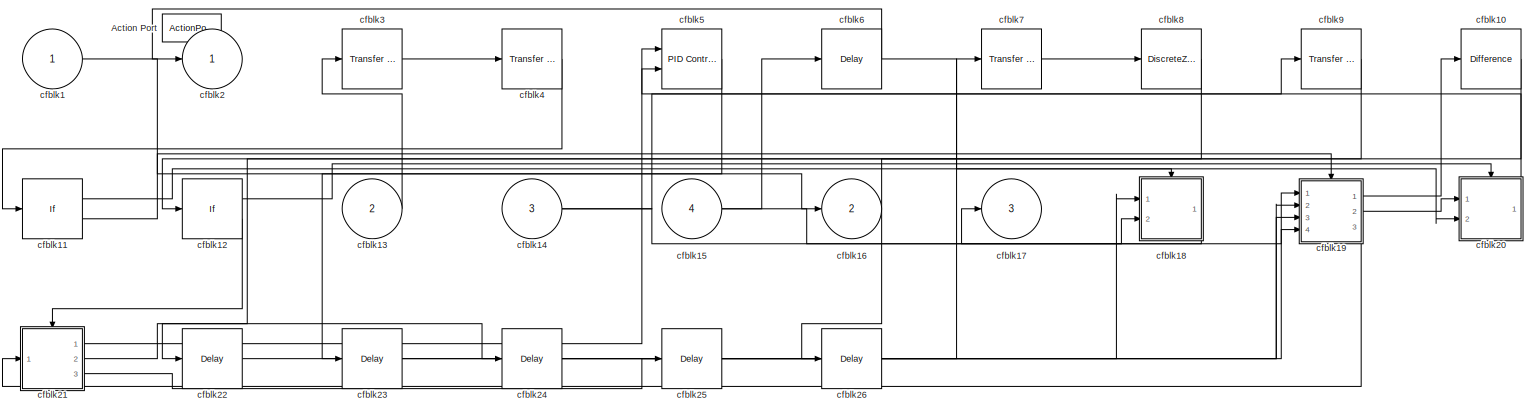
[diagram: cfblk208 - part 1/1, most of the canvas]
BLOCK [SubSystem] cfblk208
  Ports = [4, 3, 0, 0, 0, 0, 0, 1]
  RequestExecContextInheritance = off
  TreatAsAtomicUnit = on
  Variant = off
BLOCK [ActionPort] cfblk208/Action Port
  ActionType = else
BLOCK [Inport] cfblk208/cfblk1
  IconDisplay = Port number
BLOCK [Reference] cfblk208/cfblk10  REF=simulink/Discrete/Difference
  Ports = [1, 1]
  SourceBlock = simulink/Discrete/Difference
  SourceProductBaseCode = SL
  SourceProductName = Simulink
  SourceType = Difference
BLOCK [If] cfblk208/cfblk11
  Ports = [1, 2]
  SampleTime = 1
BLOCK [If] cfblk208/cfblk12
  Ports = [1, 2]
  SampleTime = 1
BLOCK [Inport] cfblk208/cfblk13
  IconDisplay = Port number
  Port = 2
BLOCK [Inport] cfblk208/cfblk14
  IconDisplay = Port number
  Port = 3
BLOCK [Inport] cfblk208/cfblk15
  IconDisplay = Port number
  Port = 4
BLOCK [Outport] cfblk208/cfblk16
  IconDisplay = Port number
  Port = 2
BLOCK [Outport] cfblk208/cfblk17
  IconDisplay = Port number
  Port = 3
BLOCK [SubSystem] cfblk208/cfblk18
  Ports = [2, 1, 0, 0, 0, 0, 0, 1]
  RequestExecContextInheritance = off
  TreatAsAtomicUnit = on
  Variant = off
BLOCK [ActionPort] cfblk208/cfblk18/Action Port
  ActionType = then
BLOCK [Inport] cfblk208/cfblk18/cfblk1
  IconDisplay = Port number
BLOCK [Outport] cfblk208/cfblk18/cfblk2
  IconDisplay = Port number
BLOCK [DiscreteZeroPole] cfblk208/cfblk18/cfblk3
  Gain = 1
  Poles = [0 0.5]
  SampleTime = -1
BLOCK [UnitDelay] cfblk208/cfblk18/cfblk4
  InputProcessing = Elements as channels (sample based)
  SampleTime = -1
BLOCK [UnitDelay] cfblk208/cfblk18/cfblk5
  InputProcessing = Elements as channels (sample based)
  SampleTime = -1
BLOCK [DiscreteTransferFcn] cfblk208/cfblk18/cfblk6
  InputPortMap = u0
  Ports = [1, 1]
BLOCK [Reference] cfblk208/cfblk18/cfblk7  REF=simulink/Discrete/Tapped Delay
  Ports = [1, 1]
  SourceBlock = simulink/Discrete/Tapped Delay
  SourceProductBaseCode = SL
  SourceProductName = Simulink
  SourceType = Tapped Delay Line
BLOCK [Reference] cfblk208/cfblk18/cfblk8  REF=simulink/Discrete/Transfer Fcn
Lead or Lag
  Ports = [1, 1]
  SourceBlock = simulink/Discrete/Transfer Fcn\nLead or Lag
  SourceProductBaseCode = SL
  SourceProductName = Simulink
  SourceType = Lead or Lag Compensator
BLOCK [Inport] cfblk208/cfblk18/cfblk9
  IconDisplay = Port number
  Port = 2
BLOCK [SubSystem] cfblk208/cfblk19
  Ports = [4, 3, 0, 0, 0, 0, 0, 1]
  RequestExecContextInheritance = off
  TreatAsAtomicUnit = on
  Variant = off
BLOCK [ActionPort] cfblk208/cfblk19/Action Port
  ActionType = else
BLOCK [Inport] cfblk208/cfblk19/cfblk1
  IconDisplay = Port number
BLOCK [Inport] cfblk208/cfblk19/cfblk10
  IconDisplay = Port number
  Port = 2
BLOCK [Inport] cfblk208/cfblk19/cfblk11
  IconDisplay = Port number
  Port = 3
BLOCK [Inport] cfblk208/cfblk19/cfblk12
  IconDisplay = Port number
  Port = 4
BLOCK [Outport] cfblk208/cfblk19/cfblk13
  IconDisplay = Port number
  Port = 2
BLOCK [Outport] cfblk208/cfblk19/cfblk14
  IconDisplay = Port number
  Port = 3
BLOCK [Delay] cfblk208/cfblk19/cfblk15
  InputPortMap = u0
  Ports = [1, 1]
BLOCK [Outport] cfblk208/cfblk19/cfblk2
  IconDisplay = Port number
BLOCK [Reference] cfblk208/cfblk19/cfblk3  REF=simulink/Discrete/Difference
  Ports = [1, 1]
  SourceBlock = simulink/Discrete/Difference
  SourceProductBaseCode = SL
  SourceProductName = Simulink
  SourceType = Difference
BLOCK [DiscreteTransferFcn] cfblk208/cfblk19/cfblk4
  InputPortMap = u0
  Ports = [1, 1]
BLOCK [UnitDelay] cfblk208/cfblk19/cfblk5
  InputProcessing = Elements as channels (sample based)
  SampleTime = -1
BLOCK [Reference] cfblk208/cfblk19/cfblk6  REF=simulink/Continuous/PID Controller (2DOF)
  Ports = [2, 1]
  SourceBlock = simulink/Continuous/PID Controller (2DOF)
  SourceProductBaseCode = SL
  SourceProductName = Simulink
  SourceType = PID 2dof
BLOCK [Reference] cfblk208/cfblk19/cfblk7  REF=simulink/Discrete/Tapped Delay
  Ports = [1, 1]
  SourceBlock = simulink/Discrete/Tapped Delay
  SourceProductBaseCode = SL
  SourceProductName = Simulink
  SourceType = Tapped Delay Line
BLOCK [Reference] cfblk208/cfblk19/cfblk8  REF=simulink/Discrete/Transfer Fcn
Real Zero
  Ports = [1, 1]
  SourceBlock = simulink/Discrete/Transfer Fcn\nReal Zero
  SourceProductBaseCode = SL
  SourceProductName = Simulink
  SourceType = Transfer Fcn Real Zero
BLOCK [Reference] cfblk208/cfblk19/cfblk9  REF=simulink/Continuous/PID Controller (2DOF)
  Ports = [2, 1]
  SourceBlock = simulink/Continuous/PID Controller (2DOF)
  SourceProductBaseCode = SL
  SourceProductName = Simulink
  SourceType = PID 2dof
BLOCK [Outport] cfblk208/cfblk2
  IconDisplay = Port number
BLOCK [SubSystem] cfblk208/cfblk20
  Ports = [2, 1, 0, 0, 0, 0, 0, 1]
  RequestExecContextInheritance = off
  TreatAsAtomicUnit = on
  Variant = off
BLOCK [ActionPort] cfblk208/cfblk20/Action Port
  ActionType = then
BLOCK [Inport] cfblk208/cfblk20/cfblk1
  IconDisplay = Port number
BLOCK [DiscreteTransferFcn] cfblk208/cfblk20/cfblk10
  InputPortMap = u0
  Ports = [1, 1]
BLOCK [Reference] cfblk208/cfblk20/cfblk11  REF=simulink/Discrete/Tapped Delay
  Ports = [1, 1]
  SourceBlock = simulink/Discrete/Tapped Delay
  SourceProductBaseCode = SL
  SourceProductName = Simulink
  SourceType = Tapped Delay Line
BLOCK [Inport] cfblk208/cfblk20/cfblk12
  IconDisplay = Port number
  Port = 2
BLOCK [Delay] cfblk208/cfblk20/cfblk13
  InputPortMap = u0
  Ports = [1, 1]
BLOCK [Outport] cfblk208/cfblk20/cfblk2
  IconDisplay = Port number
BLOCK [Reference] cfblk208/cfblk20/cfblk3  REF=simulink/Discrete/Transfer Fcn
Real Zero
  Ports = [1, 1]
  SourceBlock = simulink/Discrete/Transfer Fcn\nReal Zero
  SourceProductBaseCode = SL
  SourceProductName = Simulink
  SourceType = Transfer Fcn Real Zero
BLOCK [DiscreteZeroPole] cfblk208/cfblk20/cfblk4
  Gain = 1
  Poles = [0 0.5]
  SampleTime = -1
BLOCK [DiscreteZeroPole] cfblk208/cfblk20/cfblk5
  Gain = 1
  Poles = [0 0.5]
  SampleTime = -1
BLOCK [DiscreteFir] cfblk208/cfblk20/cfblk6
  InputPortMap = u0
  OutputPortMap = o0
  Ports = [1, 1]
BLOCK [Reference] cfblk208/cfblk20/cfblk7  REF=simulink/Discrete/Tapped Delay
  Ports = [1, 1]
  SourceBlock = simulink/Discrete/Tapped Delay
  SourceProductBaseCode = SL
  SourceProductName = Simulink
  SourceType = Tapped Delay Line
BLOCK [Reference] cfblk208/cfblk20/cfblk8  REF=simulink/Discrete/Transfer Fcn
Real Zero
  Ports = [1, 1]
  SourceBlock = simulink/Discrete/Transfer Fcn\nReal Zero
  SourceProductBaseCode = SL
  SourceProductName = Simulink
  SourceType = Transfer Fcn Real Zero
BLOCK [Reference] cfblk208/cfblk20/cfblk9  REF=simulink/Discrete/Transfer Fcn
First Order
  Ports = [1, 1]
  SourceBlock = simulink/Discrete/Transfer Fcn\nFirst Order
  SourceProductBaseCode = SL
  SourceProductName = Simulink
  SourceType = First Order Transfer Fcn
BLOCK [SubSystem] cfblk208/cfblk21
  Ports = [1, 3, 0, 0, 0, 0, 0, 1]
  RequestExecContextInheritance = off
  TreatAsAtomicUnit = on
  Variant = off
BLOCK [ActionPort] cfblk208/cfblk21/Action Port
  ActionType = else
BLOCK [Inport] cfblk208/cfblk21/cfblk1
  IconDisplay = Port number
BLOCK [Reference] cfblk208/cfblk21/cfblk10  REF=simulink/Discrete/Transfer Fcn
Lead or Lag
  Ports = [1, 1]
  SourceBlock = simulink/Discrete/Transfer Fcn\nLead or Lag
  SourceProductBaseCode = SL
  SourceProductName = Simulink
  SourceType = Lead or Lag Compensator
BLOCK [DiscreteFilter] cfblk208/cfblk21/cfblk11
  InputPortMap = u0
  Ports = [1, 1]
BLOCK [Delay] cfblk208/cfblk21/cfblk12
  InputPortMap = u0,e6
  Ports = [2, 1]
  ShowEnablePort = on
BLOCK [Reference] cfblk208/cfblk21/cfblk13  REF=simulink/Discrete/Transfer Fcn
Real Zero
  Ports = [1, 1]
  SourceBlock = simulink/Discrete/Transfer Fcn\nReal Zero
  SourceProductBaseCode = SL
  SourceProductName = Simulink
  SourceType = Transfer Fcn Real Zero
BLOCK [Outport] cfblk208/cfblk21/cfblk14
  IconDisplay = Port number
  Port = 2
BLOCK [Outport] cfblk208/cfblk21/cfblk15
  IconDisplay = Port number
  Port = 3
BLOCK [Delay] cfblk208/cfblk21/cfblk16
  InputPortMap = u0
  Ports = [1, 1]
BLOCK [Delay] cfblk208/cfblk21/cfblk17
  InputPortMap = u0
  Ports = [1, 1]
BLOCK [Outport] cfblk208/cfblk21/cfblk2
  IconDisplay = Port number
BLOCK [DiscreteFir] cfblk208/cfblk21/cfblk3
  InputPortMap = u0
  OutputPortMap = o0
  Ports = [1, 1]
BLOCK [DiscreteFilter] cfblk208/cfblk21/cfblk4
  InputPortMap = u0
  Ports = [1, 1]
BLOCK [DiscreteFilter] cfblk208/cfblk21/cfblk5
  InputPortMap = u0
  Ports = [1, 1]
BLOCK [Reference] cfblk208/cfblk21/cfblk6  REF=simulink/Discrete/Tapped Delay
  Ports = [1, 1]
  SourceBlock = simulink/Discrete/Tapped Delay
  SourceProductBaseCode = SL
  SourceProductName = Simulink
  SourceType = Tapped Delay Line
BLOCK [Reference] cfblk208/cfblk21/cfblk7  REF=simulink/Discrete/Transfer Fcn
Lead or Lag
  Ports = [1, 1]
  SourceBlock = simulink/Discrete/Transfer Fcn\nLead or Lag
  SourceProductBaseCode = SL
  SourceProductName = Simulink
  SourceType = Lead or Lag Compensator
BLOCK [DiscreteFir] cfblk208/cfblk21/cfblk8
  InputPortMap = u0
  OutputPortMap = o0
  Ports = [1, 1]
BLOCK [DiscreteIntegrator] cfblk208/cfblk21/cfblk9
  ICPrevOutput = DiscIntNeverNeededParam
  ICPrevScaledInput = DiscIntNeverNeededParam
  InitialConditionSetting = State (most efficient)
  Ports = [1, 1]
  SampleTime = -1
BLOCK [Delay] cfblk208/cfblk22
  InputPortMap = u0
  Ports = [1, 1]
BLOCK [Delay] cfblk208/cfblk23
  InputPortMap = u0
  Ports = [1, 1]
BLOCK [Delay] cfblk208/cfblk24
  InputPortMap = u0
  Ports = [1, 1]
BLOCK [Delay] cfblk208/cfblk25
  InputPortMap = u0
  Ports = [1, 1]
BLOCK [Delay] cfblk208/cfblk26
  InputPortMap = u0
  Ports = [1, 1]
BLOCK [Reference] cfblk208/cfblk3  REF=simulink/Discrete/Transfer Fcn
Lead or Lag
  Ports = [1, 1]
  SourceBlock = simulink/Discrete/Transfer Fcn\nLead or Lag
  SourceProductBaseCode = SL
  SourceProductName = Simulink
  SourceType = Lead or Lag Compensator
BLOCK [Reference] cfblk208/cfblk4  REF=simulink/Discrete/Transfer Fcn
First Order
  Ports = [1, 1]
  SourceBlock = simulink/Discrete/Transfer Fcn\nFirst Order
  SourceProductBaseCode = SL
  SourceProductName = Simulink
  SourceType = First Order Transfer Fcn
BLOCK [Reference] cfblk208/cfblk5  REF=simulink/Continuous/PID Controller (2DOF)
  Ports = [2, 1]
  SourceBlock = simulink/Continuous/PID Controller (2DOF)
  SourceProductBaseCode = SL
  SourceProductName = Simulink
  SourceType = PID 2dof
BLOCK [Delay] cfblk208/cfblk6
  InputPortMap = u0
  Ports = [1, 1]
BLOCK [Reference] cfblk208/cfblk7  REF=simulink/Discrete/Transfer Fcn
First Order
  Ports = [1, 1]
  SourceBlock = simulink/Discrete/Transfer Fcn\nFirst Order
  SourceProductBaseCode = SL
  SourceProductName = Simulink
  SourceType = First Order Transfer Fcn
BLOCK [DiscreteZeroPole] cfblk208/cfblk8
  Gain = 1
  Poles = [0 0.5]
  SampleTime = -1
BLOCK [Reference] cfblk208/cfblk9  REF=simulink/Discrete/Transfer Fcn
First Order
  Ports = [1, 1]
  SourceBlock = simulink/Discrete/Transfer Fcn\nFirst Order
  SourceProductBaseCode = SL
  SourceProductName = Simulink
  SourceType = First Order Transfer Fcn
BLOCK [SubSystem] cfblk209
  Ports = [3, 2, 0, 0, 0, 0, 0, 1]
  RequestExecContextInheritance = off
  TreatAsAtomicUnit = on
  Variant = off
BLOCK [ActionPort] cfblk209/Action Port
  ActionType = then
BLOCK [Inport] cfblk209/cfblk1
  IconDisplay = Port number
BLOCK [Reference] cfblk209/cfblk10  REF=simulink/Discrete/Transfer Fcn
First Order
  Ports = [1, 1]
  SourceBlock = simulink/Discrete/Transfer Fcn\nFirst Order
  SourceProductBaseCode = SL
  SourceProductName = Simulink
  SourceType = First Order Transfer Fcn
BLOCK [Reference] cfblk209/cfblk11  REF=simulink/Discrete/Transfer Fcn
Lead or Lag
  Ports = [1, 1]
  SourceBlock = simulink/Discrete/Transfer Fcn\nLead or Lag
  SourceProductBaseCode = SL
  SourceProductName = Simulink
  SourceType = Lead or Lag Compensator
BLOCK [Inport] cfblk209/cfblk12
  IconDisplay = Port number
  Port = 2
BLOCK [Inport] cfblk209/cfblk13
  IconDisplay = Port number
  Port = 3
BLOCK [Outport] cfblk209/cfblk14
  IconDisplay = Port number
  Port = 2
BLOCK [Outport] cfblk209/cfblk2
  IconDisplay = Port number
BLOCK [DiscreteZeroPole] cfblk209/cfblk3
  Gain = 1
  Poles = [0 0.5]
  SampleTime = -1
BLOCK [Reference] cfblk209/cfblk4  REF=simulink/Discrete/Transfer Fcn
Lead or Lag
  Ports = [1, 1]
  SourceBlock = simulink/Discrete/Transfer Fcn\nLead or Lag
  SourceProductBaseCode = SL
  SourceProductName = Simulink
  SourceType = Lead or Lag Compensator
BLOCK [Reference] cfblk209/cfblk5  REF=simulink/Continuous/PID Controller
  Ports = [1, 1]
  SourceBlock = simulink/Continuous/PID Controller
  SourceProductBaseCode = SL
  SourceProductName = Simulink
  SourceType = PID 1dof
BLOCK [Reference] cfblk209/cfblk6  REF=simulink/Discrete/Difference
  Ports = [1, 1]
  SourceBlock = simulink/Discrete/Difference
  SourceProductBaseCode = SL
  SourceProductName = Simulink
  SourceType = Difference
BLOCK [DiscreteTransferFcn] cfblk209/cfblk7
  InputPortMap = u0
  Ports = [1, 1]
BLOCK [Delay] cfblk209/cfblk8
  InputPortMap = u0
  Ports = [1, 1]
BLOCK [Delay] cfblk209/cfblk9
  InputPortMap = u0,e6
  Ports = [2, 1]
  ShowEnablePort = on
BLOCK [Delay] cfblk21
  InputPortMap = u0,e6
  Ports = [2, 1]
  SampleTime = 1
  ShowEnablePort = on
BLOCK [SubSystem] cfblk210
  Ports = [4, 1, 0, 0, 0, 0, 0, 1]
  RequestExecContextInheritance = off
  TreatAsAtomicUnit = on
  Variant = off
BLOCK [ActionPort] cfblk210/Action Port
  ActionType = else
BLOCK [Inport] cfblk210/cfblk1
  IconDisplay = Port number
BLOCK [DiscreteZeroPole] cfblk210/cfblk10
  Gain = 1
  Poles = [0 0.5]
  SampleTime = -1
BLOCK [Reference] cfblk210/cfblk11  REF=simulink/Discrete/Transfer Fcn
First Order
  Ports = [1, 1]
  SourceBlock = simulink/Discrete/Transfer Fcn\nFirst Order
  SourceProductBaseCode = SL
  SourceProductName = Simulink
  SourceType = First Order Transfer Fcn
BLOCK [DiscreteFir] cfblk210/cfblk12
  InputPortMap = u0
  OutputPortMap = o0
  Ports = [1, 1]
BLOCK [Delay] cfblk210/cfblk13
  InputPortMap = u0,e6
  Ports = [2, 1]
  ShowEnablePort = on
BLOCK [DiscreteStateSpace] cfblk210/cfblk14
  SampleTime = -1
BLOCK [Inport] cfblk210/cfblk15
  IconDisplay = Port number
  Port = 2
BLOCK [Inport] cfblk210/cfblk16
  IconDisplay = Port number
  Port = 3
BLOCK [Inport] cfblk210/cfblk17
  IconDisplay = Port number
  Port = 4
BLOCK [Delay] cfblk210/cfblk18
  InputPortMap = u0
  Ports = [1, 1]
BLOCK [Delay] cfblk210/cfblk19
  InputPortMap = u0
  Ports = [1, 1]
BLOCK [Outport] cfblk210/cfblk2
  IconDisplay = Port number
BLOCK [Reference] cfblk210/cfblk3  REF=simulink/Continuous/PID Controller (2DOF)
  Ports = [2, 1]
  SourceBlock = simulink/Continuous/PID Controller (2DOF)
  SourceProductBaseCode = SL
  SourceProductName = Simulink
  SourceType = PID 2dof
BLOCK [DiscreteIntegrator] cfblk210/cfblk4
  ICPrevOutput = DiscIntNeverNeededParam
  ICPrevScaledInput = DiscIntNeverNeededParam
  InitialConditionSetting = State (most efficient)
  Ports = [1, 1]
  SampleTime = -1
BLOCK [DiscreteFir] cfblk210/cfblk5
  InputPortMap = u0
  OutputPortMap = o0
  Ports = [1, 1]
BLOCK [Reference] cfblk210/cfblk6  REF=simulink/Discrete/Transfer Fcn
First Order
  Ports = [1, 1]
  SourceBlock = simulink/Discrete/Transfer Fcn\nFirst Order
  SourceProductBaseCode = SL
  SourceProductName = Simulink
  SourceType = First Order Transfer Fcn
BLOCK [Delay] cfblk210/cfblk7
  InputPortMap = u0,e6
  Ports = [2, 1]
  ShowEnablePort = on
BLOCK [Reference] cfblk210/cfblk8  REF=simulink/Discrete/Transfer Fcn
First Order
  Ports = [1, 1]
  SourceBlock = simulink/Discrete/Transfer Fcn\nFirst Order
  SourceProductBaseCode = SL
  SourceProductName = Simulink
  SourceType = First Order Transfer Fcn
BLOCK [Reference] cfblk210/cfblk9  REF=simulink/Discrete/Tapped Delay
  Ports = [1, 1]
  SourceBlock = simulink/Discrete/Tapped Delay
  SourceProductBaseCode = SL
  SourceProductName = Simulink
  SourceType = Tapped Delay Line
BLOCK [SubSystem] cfblk211
  Ports = [1, 3, 0, 0, 0, 0, 0, 1]
  RequestExecContextInheritance = off
  TreatAsAtomicUnit = on
  Variant = off
BLOCK [ActionPort] cfblk211/Action Port
  ActionType = then
BLOCK [Inport] cfblk211/cfblk1
  IconDisplay = Port number
BLOCK [Reference] cfblk211/cfblk10  REF=simulink/Discrete/Tapped Delay
  Ports = [1, 1]
  SourceBlock = simulink/Discrete/Tapped Delay
  SourceProductBaseCode = SL
  SourceProductName = Simulink
  SourceType = Tapped Delay Line
BLOCK [Reference] cfblk211/cfblk11  REF=simulink/Continuous/PID Controller (2DOF)
  Ports = [2, 1]
  SourceBlock = simulink/Continuous/PID Controller (2DOF)
  SourceProductBaseCode = SL
  SourceProductName = Simulink
  SourceType = PID 2dof
BLOCK [Reference] cfblk211/cfblk12  REF=simulink/Discrete/Transfer Fcn
First Order
  Ports = [1, 1]
  SourceBlock = simulink/Discrete/Transfer Fcn\nFirst Order
  SourceProductBaseCode = SL
  SourceProductName = Simulink
  SourceType = First Order Transfer Fcn
BLOCK [If] cfblk211/cfblk13
  Ports = [1, 2]
  SampleTime = 1
BLOCK [Outport] cfblk211/cfblk14
  IconDisplay = Port number
  Port = 2
BLOCK [Outport] cfblk211/cfblk15
  IconDisplay = Port number
  Port = 3
BLOCK [SubSystem] cfblk211/cfblk16
  Ports = [1, 2, 0, 0, 0, 0, 0, 1]
  RequestExecContextInheritance = off
  TreatAsAtomicUnit = on
  Variant = off
BLOCK [ActionPort] cfblk211/cfblk16/Action Port
  ActionType = then
BLOCK [Inport] cfblk211/cfblk16/cfblk1
  IconDisplay = Port number
BLOCK [Delay] cfblk211/cfblk16/cfblk10
  DelayLengthSource = Input port
  InputPortMap = u0,p1
  Ports = [2, 1]
BLOCK [Outport] cfblk211/cfblk16/cfblk11
  IconDisplay = Port number
  Port = 2
BLOCK [Delay] cfblk211/cfblk16/cfblk12
  InputPortMap = u0
  Ports = [1, 1]
BLOCK [Outport] cfblk211/cfblk16/cfblk2
  IconDisplay = Port number
BLOCK [Reference] cfblk211/cfblk16/cfblk3  REF=simulink/Discrete/Transfer Fcn
First Order
  Ports = [1, 1]
  SourceBlock = simulink/Discrete/Transfer Fcn\nFirst Order
  SourceProductBaseCode = SL
  SourceProductName = Simulink
  SourceType = First Order Transfer Fcn
BLOCK [Reference] cfblk211/cfblk16/cfblk4  REF=simulink/Discrete/Transfer Fcn
Lead or Lag
  Ports = [1, 1]
  SourceBlock = simulink/Discrete/Transfer Fcn\nLead or Lag
  SourceProductBaseCode = SL
  SourceProductName = Simulink
  SourceType = Lead or Lag Compensator
BLOCK [Reference] cfblk211/cfblk16/cfblk5  REF=simulink/Discrete/Transfer Fcn
Lead or Lag
  Ports = [1, 1]
  SourceBlock = simulink/Discrete/Transfer Fcn\nLead or Lag
  SourceProductBaseCode = SL
  SourceProductName = Simulink
  SourceType = Lead or Lag Compensator
BLOCK [Reference] cfblk211/cfblk16/cfblk6  REF=simulink/Discrete/Transfer Fcn
Real Zero
  Ports = [1, 1]
  SourceBlock = simulink/Discrete/Transfer Fcn\nReal Zero
  SourceProductBaseCode = SL
  SourceProductName = Simulink
  SourceType = Transfer Fcn Real Zero
BLOCK [Reference] cfblk211/cfblk16/cfblk7  REF=simulink/Discrete/Transfer Fcn
Real Zero
  Ports = [1, 1]
  SourceBlock = simulink/Discrete/Transfer Fcn\nReal Zero
  SourceProductBaseCode = SL
  SourceProductName = Simulink
  SourceType = Transfer Fcn Real Zero
BLOCK [Reference] cfblk211/cfblk16/cfblk8  REF=simulink/Discrete/Tapped Delay
  Ports = [1, 1]
  SourceBlock = simulink/Discrete/Tapped Delay
  SourceProductBaseCode = SL
  SourceProductName = Simulink
  SourceType = Tapped Delay Line
BLOCK [Reference] cfblk211/cfblk16/cfblk9  REF=simulink/Discrete/Transfer Fcn
Lead or Lag
  Ports = [1, 1]
  SourceBlock = simulink/Discrete/Transfer Fcn\nLead or Lag
  SourceProductBaseCode = SL
  SourceProductName = Simulink
  SourceType = Lead or Lag Compensator
BLOCK [SubSystem] cfblk211/cfblk17
  Ports = [2, 2, 0, 0, 0, 0, 0, 1]
  RequestExecContextInheritance = off
  TreatAsAtomicUnit = on
  Variant = off
BLOCK [ActionPort] cfblk211/cfblk17/Action Port
  ActionType = else
BLOCK [Inport] cfblk211/cfblk17/cfblk1
  IconDisplay = Port number
BLOCK [Outport] cfblk211/cfblk17/cfblk10
  IconDisplay = Port number
  Port = 2
BLOCK [Delay] cfblk211/cfblk17/cfblk11
  InputPortMap = u0
  Ports = [1, 1]
BLOCK [Outport] cfblk211/cfblk17/cfblk2
  IconDisplay = Port number
BLOCK [Reference] cfblk211/cfblk17/cfblk3  REF=simulink/Discrete/Transfer Fcn
First Order
  Ports = [1, 1]
  SourceBlock = simulink/Discrete/Transfer Fcn\nFirst Order
  SourceProductBaseCode = SL
  SourceProductName = Simulink
  SourceType = First Order Transfer Fcn
BLOCK [DiscreteZeroPole] cfblk211/cfblk17/cfblk4
  Gain = 1
  Poles = [0 0.5]
  SampleTime = -1
BLOCK [DiscreteIntegrator] cfblk211/cfblk17/cfblk5
  ICPrevOutput = DiscIntNeverNeededParam
  ICPrevScaledInput = DiscIntNeverNeededParam
  InitialConditionSetting = State (most efficient)
  Ports = [1, 1]
  SampleTime = -1
BLOCK [DiscreteFilter] cfblk211/cfblk17/cfblk6
  InputPortMap = u0
  Ports = [1, 1]
BLOCK [DiscreteTransferFcn] cfblk211/cfblk17/cfblk7
  InputPortMap = u0
  Ports = [1, 1]
BLOCK [DiscreteStateSpace] cfblk211/cfblk17/cfblk8
  SampleTime = -1
BLOCK [Inport] cfblk211/cfblk17/cfblk9
  IconDisplay = Port number
  Port = 2
BLOCK [Delay] cfblk211/cfblk18
  InputPortMap = u0
  Ports = [1, 1]
BLOCK [Delay] cfblk211/cfblk19
  InputPortMap = u0
  Ports = [1, 1]
BLOCK [Outport] cfblk211/cfblk2
  IconDisplay = Port number
BLOCK [Delay] cfblk211/cfblk20
  InputPortMap = u0
  Ports = [1, 1]
BLOCK [Delay] cfblk211/cfblk21
  InputPortMap = u0
  Ports = [1, 1]
BLOCK [Reference] cfblk211/cfblk3  REF=simulink/Continuous/PID Controller
  Ports = [1, 1]
  SourceBlock = simulink/Continuous/PID Controller
  SourceProductBaseCode = SL
  SourceProductName = Simulink
  SourceType = PID 1dof
BLOCK [Delay] cfblk211/cfblk4
  DelayLengthSource = Input port
  InputPortMap = u0,p1
  Ports = [2, 1]
BLOCK [DiscreteTransferFcn] cfblk211/cfblk5
  InputPortMap = u0
  Ports = [1, 1]
BLOCK [DiscreteIntegrator] cfblk211/cfblk6
  ICPrevOutput = DiscIntNeverNeededParam
  ICPrevScaledInput = DiscIntNeverNeededParam
  InitialConditionSetting = State (most efficient)
  Ports = [1, 1]
  SampleTime = -1
BLOCK [DiscreteZeroPole] cfblk211/cfblk7
  Gain = 1
  Poles = [0 0.5]
  SampleTime = -1
BLOCK [Reference] cfblk211/cfblk8  REF=simulink/Continuous/PID Controller
  Ports = [1, 1]
  SourceBlock = simulink/Continuous/PID Controller
  SourceProductBaseCode = SL
  SourceProductName = Simulink
  SourceType = PID 1dof
BLOCK [UnitDelay] cfblk211/cfblk9
  InputProcessing = Elements as channels (sample based)
  SampleTime = -1
BLOCK [SubSystem] cfblk212
  Ports = [2, 1, 0, 0, 0, 0, 0, 1]
  RequestExecContextInheritance = off
  TreatAsAtomicUnit = on
  Variant = off
BLOCK [ActionPort] cfblk212/Action Port
  ActionType = else
BLOCK [Inport] cfblk212/cfblk1
  IconDisplay = Port number
BLOCK [Outport] cfblk212/cfblk2
  IconDisplay = Port number
BLOCK [Reference] cfblk212/cfblk3  REF=simulink/Discrete/Difference
  Ports = [1, 1]
  SourceBlock = simulink/Discrete/Difference
  SourceProductBaseCode = SL
  SourceProductName = Simulink
  SourceType = Difference
BLOCK [Delay] cfblk212/cfblk4
  InputPortMap = u0,e6
  Ports = [2, 1]
  ShowEnablePort = on
BLOCK [Delay] cfblk212/cfblk5
  InputPortMap = u0,e6
  Ports = [2, 1]
  ShowEnablePort = on
BLOCK [DiscreteFir] cfblk212/cfblk6
  InputPortMap = u0
  OutputPortMap = o0
  Ports = [1, 1]
BLOCK [Reference] cfblk212/cfblk7  REF=simulink/Discrete/Transfer Fcn
Lead or Lag
  Ports = [1, 1]
  SourceBlock = simulink/Discrete/Transfer Fcn\nLead or Lag
  SourceProductBaseCode = SL
  SourceProductName = Simulink
  SourceType = Lead or Lag Compensator
BLOCK [Reference] cfblk212/cfblk8  REF=simulink/Continuous/PID Controller
  Ports = [1, 1]
  SourceBlock = simulink/Continuous/PID Controller
  SourceProductBaseCode = SL
  SourceProductName = Simulink
  SourceType = PID 1dof
BLOCK [Inport] cfblk212/cfblk9
  IconDisplay = Port number
  Port = 2
BLOCK [Delay] cfblk213
  InputPortMap = u0
  Ports = [1, 1]
  SampleTime = 1
BLOCK [Delay] cfblk214
  InputPortMap = u0
  Ports = [1, 1]
  SampleTime = 1
BLOCK [Delay] cfblk215
  InputPortMap = u0
  Ports = [1, 1]
  SampleTime = 1
BLOCK [Delay] cfblk216
  InputPortMap = u0
  Ports = [1, 1]
  SampleTime = 1
BLOCK [Delay] cfblk217
  InputPortMap = u0
  Ports = [1, 1]
  SampleTime = 1
BLOCK [Delay] cfblk218
  InputPortMap = u0
  Ports = [1, 1]
  SampleTime = 1
BLOCK [Delay] cfblk219
  InputPortMap = u0
  Ports = [1, 1]
  SampleTime = 1
BLOCK [DiscreteZeroPole] cfblk22
  Gain = 1
  Poles = [0 0.5]
BLOCK [Delay] cfblk220
  InputPortMap = u0
  Ports = [1, 1]
  SampleTime = 1
BLOCK [Delay] cfblk221
  InputPortMap = u0
  Ports = [1, 1]
  SampleTime = 1
BLOCK [Delay] cfblk222
  InputPortMap = u0
  Ports = [1, 1]
  SampleTime = 1
BLOCK [Delay] cfblk223
  InputPortMap = u0
  Ports = [1, 1]
  SampleTime = 1
BLOCK [Delay] cfblk224
  InputPortMap = u0
  Ports = [1, 1]
  SampleTime = 1
BLOCK [Delay] cfblk225
  InputPortMap = u0
  Ports = [1, 1]
  SampleTime = 1
BLOCK [Delay] cfblk226
  InputPortMap = u0
  Ports = [1, 1]
  SampleTime = 1
BLOCK [Delay] cfblk227
  InputPortMap = u0
  Ports = [1, 1]
  SampleTime = 1
BLOCK [Delay] cfblk228
  InputPortMap = u0
  Ports = [1, 1]
  SampleTime = 1
BLOCK [Delay] cfblk229
  InputPortMap = u0
  Ports = [1, 1]
  SampleTime = 1
BLOCK [Delay] cfblk23
  InputPortMap = u0,e6
  Ports = [2, 1]
  SampleTime = 1
  ShowEnablePort = on
BLOCK [Delay] cfblk230
  InputPortMap = u0
  Ports = [1, 1]
  SampleTime = 1
BLOCK [Delay] cfblk231
  InputPortMap = u0
  Ports = [1, 1]
  SampleTime = 1
BLOCK [Delay] cfblk232
  InputPortMap = u0
  Ports = [1, 1]
  SampleTime = 1
BLOCK [Delay] cfblk233
  InputPortMap = u0
  Ports = [1, 1]
  SampleTime = 1
BLOCK [Delay] cfblk234
  InputPortMap = u0
  Ports = [1, 1]
  SampleTime = 1
BLOCK [Delay] cfblk235
  InputPortMap = u0
  Ports = [1, 1]
  SampleTime = 1
BLOCK [Delay] cfblk236
  InputPortMap = u0
  Ports = [1, 1]
  SampleTime = 1
BLOCK [Delay] cfblk237
  InputPortMap = u0
  Ports = [1, 1]
  SampleTime = 1
BLOCK [Delay] cfblk238
  InputPortMap = u0
  Ports = [1, 1]
  SampleTime = 1
BLOCK [Delay] cfblk239
  InputPortMap = u0
  Ports = [1, 1]
  SampleTime = 1
BLOCK [Reference] cfblk24  REF=simulink/Discrete/Tapped Delay
  Ports = [1, 1]
  SourceBlock = simulink/Discrete/Tapped Delay
  SourceProductBaseCode = SL
  SourceProductName = Simulink
  SourceType = Tapped Delay Line
BLOCK [DataTypeConversion] cfblk240
  RndMeth = Floor
  SaturateOnIntegerOverflow = off
BLOCK [Reference] cfblk25  REF=simulink/Discrete/Transfer Fcn
Real Zero
  Ports = [1, 1]
  SourceBlock = simulink/Discrete/Transfer Fcn\nReal Zero
  SourceProductBaseCode = SL
  SourceProductName = Simulink
  SourceType = Transfer Fcn Real Zero
BLOCK [Reference] cfblk26  REF=simulink/Continuous/PID Controller
  Ports = [1, 1]
  SourceBlock = simulink/Continuous/PID Controller
  SourceProductBaseCode = SL
  SourceProductName = Simulink
  SourceType = PID 1dof
BLOCK [DiscreteTransferFcn] cfblk27
  InputPortMap = u0
  Ports = [1, 1]
  SampleTime = 1
BLOCK [Delay] cfblk28
  DelayLengthSource = Input port
  InputPortMap = u0,p1
  Ports = [2, 1]
  SampleTime = 1
BLOCK [DiscreteZeroPole] cfblk29
  Gain = 1
  Poles = [0 0.5]
BLOCK [Reference] cfblk3  REF=simulink/Discrete/Tapped Delay
  Ports = [1, 1]
  SourceBlock = simulink/Discrete/Tapped Delay
  SourceProductBaseCode = SL
  SourceProductName = Simulink
  SourceType = Tapped Delay Line
BLOCK [Reference] cfblk30  REF=simulink/Continuous/PID Controller (2DOF)
  Ports = [2, 1]
  SourceBlock = simulink/Continuous/PID Controller (2DOF)
  SourceProductBaseCode = SL
  SourceProductName = Simulink
  SourceType = PID 2dof
BLOCK [Reference] cfblk31  REF=simulink/Discrete/Transfer Fcn
First Order
  Ports = [1, 1]
  SourceBlock = simulink/Discrete/Transfer Fcn\nFirst Order
  SourceProductBaseCode = SL
  SourceProductName = Simulink
  SourceType = First Order Transfer Fcn
BLOCK [Reference] cfblk32  REF=simulink/Continuous/PID Controller (2DOF)
  Ports = [2, 1]
  SourceBlock = simulink/Continuous/PID Controller (2DOF)
  SourceProductBaseCode = SL
  SourceProductName = Simulink
  SourceType = PID 2dof
BLOCK [DiscreteFir] cfblk33
  InputPortMap = u0
  OutputPortMap = o0
  Ports = [1, 1]
  SampleTime = 1
BLOCK [Reference] cfblk34  REF=simulink/Continuous/PID Controller
  Ports = [1, 1]
  SourceBlock = simulink/Continuous/PID Controller
  SourceProductBaseCode = SL
  SourceProductName = Simulink
  SourceType = PID 1dof
BLOCK [Delay] cfblk35
  DelayLengthSource = Input port
  InputPortMap = u0,p1
  Ports = [2, 1]
  SampleTime = 1
BLOCK [Reference] cfblk36  REF=simulink/Discrete/Difference
  Ports = [1, 1]
  SourceBlock = simulink/Discrete/Difference
  SourceProductBaseCode = SL
  SourceProductName = Simulink
  SourceType = Difference
BLOCK [Reference] cfblk37  REF=simulink/Discrete/Transfer Fcn
Real Zero
  Ports = [1, 1]
  SourceBlock = simulink/Discrete/Transfer Fcn\nReal Zero
  SourceProductBaseCode = SL
  SourceProductName = Simulink
  SourceType = Transfer Fcn Real Zero
BLOCK [Delay] cfblk38
  DelayLengthSource = Input port
  InputPortMap = u0,p1
  Ports = [2, 1]
  SampleTime = 1
BLOCK [Reference] cfblk39  REF=simulink/Discrete/Tapped Delay
  Ports = [1, 1]
  SourceBlock = simulink/Discrete/Tapped Delay
  SourceProductBaseCode = SL
  SourceProductName = Simulink
  SourceType = Tapped Delay Line
BLOCK [DiscreteStateSpace] cfblk4
BLOCK [Reference] cfblk40  REF=simulink/Discrete/Transfer Fcn
Lead or Lag
  Ports = [1, 1]
  SourceBlock = simulink/Discrete/Transfer Fcn\nLead or Lag
  SourceProductBaseCode = SL
  SourceProductName = Simulink
  SourceType = Lead or Lag Compensator
BLOCK [Reference] cfblk41  REF=simulink/Continuous/PID Controller
  Ports = [1, 1]
  SourceBlock = simulink/Continuous/PID Controller
  SourceProductBaseCode = SL
  SourceProductName = Simulink
  SourceType = PID 1dof
BLOCK [Reference] cfblk42  REF=simulink/Continuous/PID Controller (2DOF)
  Ports = [2, 1]
  SourceBlock = simulink/Continuous/PID Controller (2DOF)
  SourceProductBaseCode = SL
  SourceProductName = Simulink
  SourceType = PID 2dof
BLOCK [Reference] cfblk43  REF=simulink/Discrete/Difference
  Ports = [1, 1]
  SourceBlock = simulink/Discrete/Difference
  SourceProductBaseCode = SL
  SourceProductName = Simulink
  SourceType = Difference
BLOCK [DiscreteStateSpace] cfblk44
BLOCK [DiscreteIntegrator] cfblk45
  ICPrevOutput = DiscIntNeverNeededParam
  ICPrevScaledInput = DiscIntNeverNeededParam
  InitialConditionSetting = State (most efficient)
  Ports = [1, 1]
BLOCK [Reference] cfblk46  REF=simulink/Discrete/Transfer Fcn
Real Zero
  Ports = [1, 1]
  SourceBlock = simulink/Discrete/Transfer Fcn\nReal Zero
  SourceProductBaseCode = SL
  SourceProductName = Simulink
  SourceType = Transfer Fcn Real Zero
BLOCK [Reference] cfblk47  REF=simulink/Continuous/PID Controller (2DOF)
  Ports = [2, 1]
  SourceBlock = simulink/Continuous/PID Controller (2DOF)
  SourceProductBaseCode = SL
  SourceProductName = Simulink
  SourceType = PID 2dof
BLOCK [DiscreteFilter] cfblk48
  InputPortMap = u0
  Ports = [1, 1]
  SampleTime = 1
BLOCK [Reference] cfblk49  REF=simulink/Discrete/Transfer Fcn
First Order
  Ports = [1, 1]
  SourceBlock = simulink/Discrete/Transfer Fcn\nFirst Order
  SourceProductBaseCode = SL
  SourceProductName = Simulink
  SourceType = First Order Transfer Fcn
BLOCK [DiscreteFir] cfblk5
  InputPortMap = u0
  OutputPortMap = o0
  Ports = [1, 1]
  SampleTime = 1
BLOCK [Reference] cfblk50  REF=simulink/Discrete/Difference
  Ports = [1, 1]
  SourceBlock = simulink/Discrete/Difference
  SourceProductBaseCode = SL
  SourceProductName = Simulink
  SourceType = Difference
BLOCK [Reference] cfblk51  REF=simulink/Discrete/Transfer Fcn
Lead or Lag
  Ports = [1, 1]
  SourceBlock = simulink/Discrete/Transfer Fcn\nLead or Lag
  SourceProductBaseCode = SL
  SourceProductName = Simulink
  SourceType = Lead or Lag Compensator
BLOCK [Reference] cfblk52  REF=simulink/Discrete/Transfer Fcn
First Order
  Ports = [1, 1]
  SourceBlock = simulink/Discrete/Transfer Fcn\nFirst Order
  SourceProductBaseCode = SL
  SourceProductName = Simulink
  SourceType = First Order Transfer Fcn
BLOCK [Reference] cfblk53  REF=simulink/Discrete/Transfer Fcn
Real Zero
  Ports = [1, 1]
  SourceBlock = simulink/Discrete/Transfer Fcn\nReal Zero
  SourceProductBaseCode = SL
  SourceProductName = Simulink
  SourceType = Transfer Fcn Real Zero
BLOCK [Reference] cfblk54  REF=simulink/Discrete/Transfer Fcn
Lead or Lag
  Ports = [1, 1]
  SourceBlock = simulink/Discrete/Transfer Fcn\nLead or Lag
  SourceProductBaseCode = SL
  SourceProductName = Simulink
  SourceType = Lead or Lag Compensator
BLOCK [Reference] cfblk55  REF=simulink/Discrete/Transfer Fcn
Lead or Lag
  Ports = [1, 1]
  SourceBlock = simulink/Discrete/Transfer Fcn\nLead or Lag
  SourceProductBaseCode = SL
  SourceProductName = Simulink
  SourceType = Lead or Lag Compensator
BLOCK [Reference] cfblk56  REF=simulink/Discrete/Transfer Fcn
First Order
  Ports = [1, 1]
  SourceBlock = simulink/Discrete/Transfer Fcn\nFirst Order
  SourceProductBaseCode = SL
  SourceProductName = Simulink
  SourceType = First Order Transfer Fcn
BLOCK [Delay] cfblk57
  DelayLengthSource = Input port
  InputPortMap = u0,p1
  Ports = [2, 1]
  SampleTime = 1
BLOCK [Reference] cfblk58  REF=simulink/Discrete/Transfer Fcn
First Order
  Ports = [1, 1]
  SourceBlock = simulink/Discrete/Transfer Fcn\nFirst Order
  SourceProductBaseCode = SL
  SourceProductName = Simulink
  SourceType = First Order Transfer Fcn
BLOCK [Reference] cfblk59  REF=simulink/Discrete/Transfer Fcn
First Order
  Ports = [1, 1]
  SourceBlock = simulink/Discrete/Transfer Fcn\nFirst Order
  SourceProductBaseCode = SL
  SourceProductName = Simulink
  SourceType = First Order Transfer Fcn
BLOCK [Reference] cfblk6  REF=simulink/Discrete/Tapped Delay
  Ports = [1, 1]
  SourceBlock = simulink/Discrete/Tapped Delay
  SourceProductBaseCode = SL
  SourceProductName = Simulink
  SourceType = Tapped Delay Line
BLOCK [Delay] cfblk60
  InputPortMap = u0,e6
  Ports = [2, 1]
  SampleTime = 1
  ShowEnablePort = on
BLOCK [DiscreteFilter] cfblk61
  InputPortMap = u0
  Ports = [1, 1]
  SampleTime = 1
BLOCK [UnitDelay] cfblk62
  InputProcessing = Elements as channels (sample based)
BLOCK [Reference] cfblk63  REF=simulink/Discrete/Tapped Delay
  Ports = [1, 1]
  SourceBlock = simulink/Discrete/Tapped Delay
  SourceProductBaseCode = SL
  SourceProductName = Simulink
  SourceType = Tapped Delay Line
BLOCK [UnitDelay] cfblk64
  InputProcessing = Elements as channels (sample based)
BLOCK [Delay] cfblk65
  InputPortMap = u0,e6
  Ports = [2, 1]
  SampleTime = 1
  ShowEnablePort = on
BLOCK [Reference] cfblk66  REF=simulink/Discrete/Difference
  Ports = [1, 1]
  SourceBlock = simulink/Discrete/Difference
  SourceProductBaseCode = SL
  SourceProductName = Simulink
  SourceType = Difference
BLOCK [Reference] cfblk67  REF=simulink/Discrete/Transfer Fcn
Real Zero
  Ports = [1, 1]
  SourceBlock = simulink/Discrete/Transfer Fcn\nReal Zero
  SourceProductBaseCode = SL
  SourceProductName = Simulink
  SourceType = Transfer Fcn Real Zero
BLOCK [DiscreteZeroPole] cfblk68
  Gain = 1
  Poles = [0 0.5]
BLOCK [Delay] cfblk69
  DelayLengthSource = Input port
  InputPortMap = u0,p1
  Ports = [2, 1]
  SampleTime = 1
BLOCK [Reference] cfblk7  REF=simulink/Discrete/Transfer Fcn
Lead or Lag
  Ports = [1, 1]
  SourceBlock = simulink/Discrete/Transfer Fcn\nLead or Lag
  SourceProductBaseCode = SL
  SourceProductName = Simulink
  SourceType = Lead or Lag Compensator
BLOCK [DiscreteZeroPole] cfblk70
  Gain = 1
  Poles = [0 0.5]
BLOCK [DiscreteFir] cfblk71
  InputPortMap = u0
  OutputPortMap = o0
  Ports = [1, 1]
  SampleTime = 1
BLOCK [Reference] cfblk72  REF=simulink/Continuous/PID Controller
  Ports = [1, 1]
  SourceBlock = simulink/Continuous/PID Controller
  SourceProductBaseCode = SL
  SourceProductName = Simulink
  SourceType = PID 1dof
BLOCK [Reference] cfblk73  REF=simulink/Continuous/PID Controller
  Ports = [1, 1]
  SourceBlock = simulink/Continuous/PID Controller
  SourceProductBaseCode = SL
  SourceProductName = Simulink
  SourceType = PID 1dof
BLOCK [DiscreteTransferFcn] cfblk74
  InputPortMap = u0
  Ports = [1, 1]
  SampleTime = 1
BLOCK [Delay] cfblk75
  InputPortMap = u0,e6
  Ports = [2, 1]
  SampleTime = 1
  ShowEnablePort = on
BLOCK [Reference] cfblk76  REF=simulink/Continuous/PID Controller
  Ports = [1, 1]
  SourceBlock = simulink/Continuous/PID Controller
  SourceProductBaseCode = SL
  SourceProductName = Simulink
  SourceType = PID 1dof
BLOCK [Delay] cfblk77
  DelayLengthSource = Input port
  InputPortMap = u0,p1
  Ports = [2, 1]
  SampleTime = 1
BLOCK [Delay] cfblk78
  InputPortMap = u0
  Ports = [1, 1]
  SampleTime = 1
BLOCK [DiscreteFilter] cfblk79
  InputPortMap = u0
  Ports = [1, 1]
  SampleTime = 1
BLOCK [DiscreteTransferFcn] cfblk8
  InputPortMap = u0
  Ports = [1, 1]
  SampleTime = 1
BLOCK [DiscreteIntegrator] cfblk80
  ICPrevOutput = DiscIntNeverNeededParam
  ICPrevScaledInput = DiscIntNeverNeededParam
  InitialConditionSetting = State (most efficient)
  Ports = [1, 1]
BLOCK [Reference] cfblk81  REF=simulink/Continuous/PID Controller
  Ports = [1, 1]
  SourceBlock = simulink/Continuous/PID Controller
  SourceProductBaseCode = SL
  SourceProductName = Simulink
  SourceType = PID 1dof
BLOCK [DiscreteZeroPole] cfblk82
  Gain = 1
  Poles = [0 0.5]
BLOCK [Delay] cfblk83
  InputPortMap = u0,e6
  Ports = [2, 1]
  SampleTime = 1
  ShowEnablePort = on
BLOCK [Reference] cfblk84  REF=simulink/Continuous/PID Controller (2DOF)
  Ports = [2, 1]
  SourceBlock = simulink/Continuous/PID Controller (2DOF)
  SourceProductBaseCode = SL
  SourceProductName = Simulink
  SourceType = PID 2dof
BLOCK [Reference] cfblk85  REF=simulink/Discrete/Transfer Fcn
Real Zero
  Ports = [1, 1]
  SourceBlock = simulink/Discrete/Transfer Fcn\nReal Zero
  SourceProductBaseCode = SL
  SourceProductName = Simulink
  SourceType = Transfer Fcn Real Zero
BLOCK [ToWorkspace] cfblk86
  FixptAsFi = on
  MaxDataPoints = inf
  Ports = [1]
  SampleTime = -1
  Save2DSignal = 3-D array (concatenate along third dimension)
  SaveFormat = Timeseries
  VariableName = zvvzltm
BLOCK [ToWorkspace] cfblk87
  FixptAsFi = on
  MaxDataPoints = inf
  Ports = [1]
  SampleTime = -1
  Save2DSignal = 3-D array (concatenate along third dimension)
  SaveFormat = Timeseries
  VariableName = sypegzn
BLOCK [Scope] cfblk88
  NumInputPorts = 1
  Ports = [1]
BLOCK [Scope] cfblk89
  Floating = on
  NumInputPorts = 1
  Ports = []
BLOCK [Reference] cfblk9  REF=simulink/Discrete/Tapped Delay
  Ports = [1, 1]
  SourceBlock = simulink/Discrete/Tapped Delay
  SourceProductBaseCode = SL
  SourceProductName = Simulink
  SourceType = Tapped Delay Line
BLOCK [Scope] cfblk90
  Floating = on
  NumInputPorts = 1
  Ports = []
BLOCK [Scope] cfblk91
  Floating = on
  NumInputPorts = 1
  Ports = []
BLOCK [Terminator] cfblk92
BLOCK [ToWorkspace] cfblk93
  FixptAsFi = on
  MaxDataPoints = inf
  Ports = [1]
  SampleTime = -1
  Save2DSignal = 3-D array (concatenate along third dimension)
  SaveFormat = Timeseries
  VariableName = dkovpci
BLOCK [Scope] cfblk94
  Floating = on
  NumInputPorts = 1
  Ports = []
BLOCK [Outport] cfblk95
  IconDisplay = Port number
BLOCK [Outport] cfblk96
  IconDisplay = Port number
  Port = 2
BLOCK [Terminator] cfblk97
BLOCK [Outport] cfblk98
  IconDisplay = Port number
  Port = 3
BLOCK [Terminator] cfblk99
LINE cfblk10:1 -> cfblk33:1
LINE cfblk11:1 -> cfblk38:2
NET cfblk12:1 -> cfblk132:1, cfblk195:2
LINE cfblk133:1 -> cfblk97:1
LINE cfblk134:1 -> cfblk131:2
NET cfblk135:1 -> cfblk107:2, cfblk53:1
LINE cfblk136:1 -> cfblk57:1
NET cfblk137:1 -> cfblk130:1, cfblk17:1, cfblk194:4
LINE cfblk138:1 -> cfblk10:1
LINE cfblk139:1 -> cfblk70:1
LINE cfblk13:1 -> cfblk193:1
LINE cfblk140:1 -> cfblk59:1
LINE cfblk141:1 -> cfblk208:3
NET cfblk142:1 -> cfblk108:1, cfblk85:1
LINE cfblk143:1 -> cfblk6:1
LINE cfblk144:1 -> cfblk209:1
LINE cfblk145:1 -> cfblk80:1
LINE cfblk146:1 -> cfblk121:2
LINE cfblk147:1 -> cfblk43:1
LINE cfblk148:1 -> cfblk113:1
LINE cfblk149:1 -> cfblk208:2
NET cfblk14:1 -> cfblk21:2, cfblk74:1, cfblk84:2
LINE cfblk150:1 -> cfblk116:2
NET cfblk151:1 -> cfblk20:1, cfblk27:1
LINE cfblk152:1 -> cfblk114:1
LINE cfblk153:1 -> cfblk201:1
LINE cfblk154:1 -> cfblk204:1
LINE cfblk155:1 -> cfblk240:1
LINE cfblk156:1 -> cfblk191:1
LINE cfblk157:1 -> cfblk87:1
NET cfblk158:1 -> cfblk209:2, cfblk35:2
LINE cfblk159:1 -> cfblk55:1
LINE cfblk15:1 -> cfblk206:1
LINE cfblk160:1 -> cfblk100:1
NET cfblk161:1 -> cfblk109:1, cfblk77:2
LINE cfblk162:1 -> cfblk203:1
LINE cfblk163:1 -> cfblk75:2
LINE cfblk164:1 -> cfblk15:1
LINE cfblk165:1 -> cfblk31:1
LINE cfblk166:1 -> cfblk66:1
LINE cfblk167:1 -> cfblk131:1
LINE cfblk168:1 -> cfblk96:1
LINE cfblk169:1 -> cfblk71:1
LINE cfblk16:1 -> cfblk173:1
LINE cfblk170:1 -> cfblk107:1
LINE cfblk171:1 -> cfblk185:ifaction
LINE cfblk171:2 -> cfblk186:ifaction
LINE cfblk172:1 -> cfblk187:ifaction
LINE cfblk172:2 -> cfblk188:ifaction
LINE cfblk173:1 -> cfblk189:ifaction
LINE cfblk173:2 -> cfblk190:ifaction
LINE cfblk174:1 -> cfblk191:ifaction
LINE cfblk174:2 -> cfblk192:ifaction
LINE cfblk175:1 -> cfblk193:ifaction
LINE cfblk175:2 -> cfblk194:ifaction
LINE cfblk176:1 -> cfblk195:ifaction
LINE cfblk176:2 -> cfblk196:ifaction
LINE cfblk177:1 -> cfblk197:ifaction
LINE cfblk177:2 -> cfblk198:ifaction
LINE cfblk178:1 -> cfblk199:ifaction
LINE cfblk178:2 -> cfblk200:ifaction
LINE cfblk179:1 -> cfblk201:ifaction
LINE cfblk179:2 -> cfblk202:ifaction
NET cfblk17:1 -> cfblk125:1, cfblk47:2
LINE cfblk180:1 -> cfblk203:ifaction
LINE cfblk180:2 -> cfblk204:ifaction
LINE cfblk181:1 -> cfblk205:ifaction
LINE cfblk181:2 -> cfblk206:ifaction
LINE cfblk182:1 -> cfblk207:ifaction
LINE cfblk182:2 -> cfblk208:ifaction
LINE cfblk183:1 -> cfblk209:ifaction
LINE cfblk183:2 -> cfblk210:ifaction
LINE cfblk184:1 -> cfblk211:ifaction
LINE cfblk184:2 -> cfblk212:ifaction
LINE cfblk185/cfblk10:1 -> cfblk185/cfblk5:2
LINE cfblk185/cfblk11:1 -> cfblk185/cfblk3:1
LINE cfblk185/cfblk12:1 -> cfblk185/cfblk20:1
LINE cfblk185/cfblk13:1 -> cfblk185/cfblk17:ifaction
LINE cfblk185/cfblk13:2 -> cfblk185/cfblk18:ifaction
LINE cfblk185/cfblk14:1 -> cfblk185/cfblk7:1
LINE cfblk185/cfblk17/cfblk1:1 -> cfblk185/cfblk17/cfblk4:2
LINE cfblk185/cfblk17/cfblk3:1 -> cfblk185/cfblk17/cfblk7:1
NET cfblk185/cfblk17/cfblk4:1 -> cfblk185/cfblk17/cfblk2:1, cfblk185/cfblk17/cfblk3:1, cfblk185/cfblk17/cfblk5:1
LINE cfblk185/cfblk17/cfblk5:1 -> cfblk185/cfblk17/cfblk6:1
LINE cfblk185/cfblk17/cfblk6:1 -> cfblk185/cfblk17/cfblk8:1
LINE cfblk185/cfblk17/cfblk7:1 -> cfblk185/cfblk17/cfblk9:1
LINE cfblk185/cfblk17/cfblk9:1 -> cfblk185/cfblk17/cfblk4:1
LINE cfblk185/cfblk17:1 -> cfblk185/cfblk9:1
LINE cfblk185/cfblk17:2 -> cfblk185/cfblk4:1
LINE cfblk185/cfblk18/cfblk11:1 -> cfblk185/cfblk18/cfblk4:1
LINE cfblk185/cfblk18/cfblk1:1 -> cfblk185/cfblk18/cfblk5:1
LINE cfblk185/cfblk18/cfblk3:1 -> cfblk185/cfblk18/cfblk7:1
LINE cfblk185/cfblk18/cfblk4:1 -> cfblk185/cfblk18/cfblk6:1
LINE cfblk185/cfblk18/cfblk5:1 -> cfblk185/cfblk18/cfblk10:1
NET cfblk185/cfblk18/cfblk6:1 -> cfblk185/cfblk18/cfblk11:1, cfblk185/cfblk18/cfblk3:2
LINE cfblk185/cfblk18/cfblk7:1 -> cfblk185/cfblk18/cfblk2:1
NET cfblk185/cfblk18/cfblk8:1 -> cfblk185/cfblk18/cfblk3:1, cfblk185/cfblk18/cfblk4:2
LINE cfblk185/cfblk18/cfblk9:1 -> cfblk185/cfblk18/cfblk8:1
LINE cfblk185/cfblk18:1 -> cfblk185/cfblk12:1
NET cfblk185/cfblk18:2 -> cfblk185/cfblk16:1, cfblk185/cfblk21:1
LINE cfblk185/cfblk19:1 -> cfblk185/cfblk18:1
LINE cfblk185/cfblk1:1 -> cfblk185/cfblk5:1
LINE cfblk185/cfblk20:1 -> cfblk185/cfblk6:1
LINE cfblk185/cfblk21:1 -> cfblk185/cfblk17:1
LINE cfblk185/cfblk22:1 -> cfblk185/cfblk18:2
LINE cfblk185/cfblk3:1 -> cfblk185/cfblk10:1
LINE cfblk185/cfblk4:1 -> cfblk185/cfblk15:1
LINE cfblk185/cfblk5:1 -> cfblk185/cfblk2:1
LINE cfblk185/cfblk6:1 -> cfblk185/cfblk8:1
LINE cfblk185/cfblk7:1 -> cfblk185/cfblk11:1
LINE cfblk185/cfblk8:1 -> cfblk185/cfblk13:1
NET cfblk185/cfblk9:1 -> cfblk185/cfblk19:1, cfblk185/cfblk22:1
LINE cfblk185:1 -> cfblk222:1
LINE cfblk185:2 -> cfblk223:1
LINE cfblk185:3 -> cfblk225:1
LINE cfblk186/cfblk10:1 -> cfblk186/cfblk6:1
LINE cfblk186/cfblk11:1 -> cfblk186/cfblk29:1
LINE cfblk186/cfblk12:1 -> cfblk186/cfblk27:1
LINE cfblk186/cfblk13:1 -> cfblk186/cfblk30:1
LINE cfblk186/cfblk14:1 -> cfblk186/cfblk17:ifaction
LINE cfblk186/cfblk14:2 -> cfblk186/cfblk18:ifaction
LINE cfblk186/cfblk15:1 -> cfblk186/cfblk19:ifaction
LINE cfblk186/cfblk15:2 -> cfblk186/cfblk20:ifaction
LINE cfblk186/cfblk16:1 -> cfblk186/cfblk21:ifaction
LINE cfblk186/cfblk16:2 -> cfblk186/cfblk22:ifaction
LINE cfblk186/cfblk17/cfblk10:1 -> cfblk186/cfblk17/cfblk4:1
LINE cfblk186/cfblk17/cfblk11:1 -> cfblk186/cfblk17/cfblk8:1
LINE cfblk186/cfblk17/cfblk12:1 -> cfblk186/cfblk17/cfblk10:1
LINE cfblk186/cfblk17/cfblk13:1 -> cfblk186/cfblk17/cfblk15:1
LINE cfblk186/cfblk17/cfblk14:1 -> cfblk186/cfblk17/cfblk7:1
LINE cfblk186/cfblk17/cfblk1:1 -> cfblk186/cfblk17/cfblk3:1
LINE cfblk186/cfblk17/cfblk3:1 -> cfblk186/cfblk17/cfblk12:1
LINE cfblk186/cfblk17/cfblk4:1 -> cfblk186/cfblk17/cfblk6:1
LINE cfblk186/cfblk17/cfblk5:1 -> cfblk186/cfblk17/cfblk9:1
LINE cfblk186/cfblk17/cfblk6:1 -> cfblk186/cfblk17/cfblk11:2
LINE cfblk186/cfblk17/cfblk7:1 -> cfblk186/cfblk17/cfblk5:1
LINE cfblk186/cfblk17/cfblk8:1 -> cfblk186/cfblk17/cfblk2:1
LINE cfblk186/cfblk17/cfblk9:1 -> cfblk186/cfblk17/cfblk11:1
LINE cfblk186/cfblk17:1 -> cfblk186/cfblk9:1
LINE cfblk186/cfblk17:2 -> cfblk186/cfblk25:1
LINE cfblk186/cfblk18/cfblk12:1 -> cfblk186/cfblk18/cfblk3:1
LINE cfblk186/cfblk18/cfblk13:1 -> cfblk186/cfblk18/cfblk7:1
LINE cfblk186/cfblk18/cfblk1:1 -> cfblk186/cfblk18/cfblk5:1
NET cfblk186/cfblk18/cfblk3:1 -> cfblk186/cfblk18/cfblk2:1, cfblk186/cfblk18/cfblk6:1
LINE cfblk186/cfblk18/cfblk4:1 -> cfblk186/cfblk18/cfblk10:1
LINE cfblk186/cfblk18/cfblk5:1 -> cfblk186/cfblk18/cfblk4:1
LINE cfblk186/cfblk18/cfblk6:1 -> cfblk186/cfblk18/cfblk12:1
LINE cfblk186/cfblk18/cfblk7:1 -> cfblk186/cfblk18/cfblk8:1
LINE cfblk186/cfblk18/cfblk8:1 -> cfblk186/cfblk18/cfblk13:1
NET cfblk186/cfblk18/cfblk9:1 -> cfblk186/cfblk18/cfblk11:1, cfblk186/cfblk18/cfblk3:2
LINE cfblk186/cfblk18:1 -> cfblk186/cfblk22:1
LINE cfblk186/cfblk18:2 -> cfblk186/cfblk3:1
LINE cfblk186/cfblk18:3 -> cfblk186/cfblk3:2
LINE cfblk186/cfblk19/cfblk12:1 -> cfblk186/cfblk19/cfblk9:1
NET cfblk186/cfblk19/cfblk1:1 -> cfblk186/cfblk19/cfblk3:1, cfblk186/cfblk19/cfblk9:2
NET cfblk186/cfblk19/cfblk3:1 -> cfblk186/cfblk19/cfblk10:1, cfblk186/cfblk19/cfblk7:1
LINE cfblk186/cfblk19/cfblk4:1 -> cfblk186/cfblk19/cfblk2:1
LINE cfblk186/cfblk19/cfblk5:1 -> cfblk186/cfblk19/cfblk11:1
LINE cfblk186/cfblk19/cfblk6:1 -> cfblk186/cfblk19/cfblk5:1
NET cfblk186/cfblk19/cfblk7:1 -> cfblk186/cfblk19/cfblk4:1, cfblk186/cfblk19/cfblk6:1
LINE cfblk186/cfblk19/cfblk8:1 -> cfblk186/cfblk19/cfblk12:1
LINE cfblk186/cfblk19/cfblk9:1 -> cfblk186/cfblk19/cfblk8:1
LINE cfblk186/cfblk19:1 -> cfblk186/cfblk18:1
LINE cfblk186/cfblk19:2 -> cfblk186/cfblk17:2
NET cfblk186/cfblk19:3 -> cfblk186/cfblk17:3, cfblk186/cfblk2:1
LINE cfblk186/cfblk1:1 -> cfblk186/cfblk20:1
LINE cfblk186/cfblk20/cfblk10:1 -> cfblk186/cfblk20/cfblk11:1
LINE cfblk186/cfblk20/cfblk11:1 -> cfblk186/cfblk20/cfblk4:1
NET cfblk186/cfblk20/cfblk12:1 -> cfblk186/cfblk20/cfblk13:1, cfblk186/cfblk20/cfblk15:1
LINE cfblk186/cfblk20/cfblk13:1 -> cfblk186/cfblk20/cfblk17:1
NET cfblk186/cfblk20/cfblk14:1 -> cfblk186/cfblk20/cfblk16:1, cfblk186/cfblk20/cfblk9:2
LINE cfblk186/cfblk20/cfblk17:1 -> cfblk186/cfblk20/cfblk12:1
LINE cfblk186/cfblk20/cfblk1:1 -> cfblk186/cfblk20/cfblk6:1
LINE cfblk186/cfblk20/cfblk3:1 -> cfblk186/cfblk20/cfblk2:1
LINE cfblk186/cfblk20/cfblk4:1 -> cfblk186/cfblk20/cfblk12:2
NET cfblk186/cfblk20/cfblk5:1 -> cfblk186/cfblk20/cfblk10:1, cfblk186/cfblk20/cfblk13:2
LINE cfblk186/cfblk20/cfblk6:1 -> cfblk186/cfblk20/cfblk8:1
LINE cfblk186/cfblk20/cfblk7:1 -> cfblk186/cfblk20/cfblk3:1
LINE cfblk186/cfblk20/cfblk8:1 -> cfblk186/cfblk20/cfblk9:1
NET cfblk186/cfblk20/cfblk9:1 -> cfblk186/cfblk20/cfblk5:1, cfblk186/cfblk20/cfblk7:1
LINE cfblk186/cfblk20:1 -> cfblk186/cfblk19:1
LINE cfblk186/cfblk20:2 -> cfblk186/cfblk11:1
LINE cfblk186/cfblk20:3 -> cfblk186/cfblk16:1
LINE cfblk186/cfblk21/cfblk10:1 -> cfblk186/cfblk21/cfblk15:1
LINE cfblk186/cfblk21/cfblk11:1 -> cfblk186/cfblk21/cfblk18:1
NET cfblk186/cfblk21/cfblk12:1 -> cfblk186/cfblk21/cfblk16:1, cfblk186/cfblk21/cfblk9:1
LINE cfblk186/cfblk21/cfblk13:1 -> cfblk186/cfblk21/cfblk4:1
LINE cfblk186/cfblk21/cfblk14:1 -> cfblk186/cfblk21/cfblk3:1
LINE cfblk186/cfblk21/cfblk15:1 -> cfblk186/cfblk21/cfblk7:1
LINE cfblk186/cfblk21/cfblk17:1 -> cfblk186/cfblk21/cfblk7:2
LINE cfblk186/cfblk21/cfblk18:1 -> cfblk186/cfblk21/cfblk5:1
LINE cfblk186/cfblk21/cfblk1:1 -> cfblk186/cfblk21/cfblk6:1
LINE cfblk186/cfblk21/cfblk3:1 -> cfblk186/cfblk21/cfblk10:1
LINE cfblk186/cfblk21/cfblk4:1 -> cfblk186/cfblk21/cfblk17:1
LINE cfblk186/cfblk21/cfblk5:1 -> cfblk186/cfblk21/cfblk12:1
LINE cfblk186/cfblk21/cfblk6:1 -> cfblk186/cfblk21/cfblk14:1
LINE cfblk186/cfblk21/cfblk7:1 -> cfblk186/cfblk21/cfblk13:1
NET cfblk186/cfblk21/cfblk8:1 -> cfblk186/cfblk21/cfblk11:1, cfblk186/cfblk21/cfblk2:1
LINE cfblk186/cfblk21/cfblk9:1 -> cfblk186/cfblk21/cfblk8:1
LINE cfblk186/cfblk21:1 -> cfblk186/cfblk31:1
LINE cfblk186/cfblk21:2 -> cfblk186/cfblk32:1
NET cfblk186/cfblk22/cfblk10:1 -> cfblk186/cfblk22/cfblk12:1, cfblk186/cfblk22/cfblk8:2
NET cfblk186/cfblk22/cfblk11:1 -> cfblk186/cfblk22/cfblk2:1, cfblk186/cfblk22/cfblk5:1
NET cfblk186/cfblk22/cfblk12:1 -> cfblk186/cfblk22/cfblk19:1, cfblk186/cfblk22/cfblk6:2
LINE cfblk186/cfblk22/cfblk13:1 -> cfblk186/cfblk22/cfblk10:1
LINE cfblk186/cfblk22/cfblk14:1 -> cfblk186/cfblk22/cfblk8:1
LINE cfblk186/cfblk22/cfblk15:1 -> cfblk186/cfblk22/cfblk11:1
LINE cfblk186/cfblk22/cfblk17:1 -> cfblk186/cfblk22/cfblk3:1
LINE cfblk186/cfblk22/cfblk18:1 -> cfblk186/cfblk22/cfblk4:1
LINE cfblk186/cfblk22/cfblk19:1 -> cfblk186/cfblk22/cfblk10:2
LINE cfblk186/cfblk22/cfblk1:1 -> cfblk186/cfblk22/cfblk14:1
LINE cfblk186/cfblk22/cfblk3:1 -> cfblk186/cfblk22/cfblk9:1
LINE cfblk186/cfblk22/cfblk4:1 -> cfblk186/cfblk22/cfblk7:1
LINE cfblk186/cfblk22/cfblk5:1 -> cfblk186/cfblk22/cfblk13:1
LINE cfblk186/cfblk22/cfblk6:1 -> cfblk186/cfblk22/cfblk16:1
LINE cfblk186/cfblk22/cfblk7:1 -> cfblk186/cfblk22/cfblk18:1
LINE cfblk186/cfblk22/cfblk8:1 -> cfblk186/cfblk22/cfblk6:1
LINE cfblk186/cfblk22/cfblk9:1 -> cfblk186/cfblk22/cfblk17:1
LINE cfblk186/cfblk22:1 -> cfblk186/cfblk26:1
LINE cfblk186/cfblk22:2 -> cfblk186/cfblk4:1
LINE cfblk186/cfblk23:1 -> cfblk186/cfblk21:1
LINE cfblk186/cfblk24:1 -> cfblk186/cfblk20:2
LINE cfblk186/cfblk25:1 -> cfblk186/cfblk22:2
LINE cfblk186/cfblk26:1 -> cfblk186/cfblk14:1
LINE cfblk186/cfblk27:1 -> cfblk186/cfblk18:2
LINE cfblk186/cfblk28:1 -> cfblk186/cfblk17:1
LINE cfblk186/cfblk29:1 -> cfblk186/cfblk15:1
LINE cfblk186/cfblk30:1 -> cfblk186/cfblk24:1
LINE cfblk186/cfblk31:1 -> cfblk186/cfblk13:1
LINE cfblk186/cfblk32:1 -> cfblk186/cfblk13:2
LINE cfblk186/cfblk3:1 -> cfblk186/cfblk8:1
LINE cfblk186/cfblk4:1 -> cfblk186/cfblk5:1
LINE cfblk186/cfblk5:1 -> cfblk186/cfblk7:1
LINE cfblk186/cfblk6:1 -> cfblk186/cfblk28:1
LINE cfblk186/cfblk7:1 -> cfblk186/cfblk12:1
LINE cfblk186/cfblk8:1 -> cfblk186/cfblk10:1
LINE cfblk186/cfblk9:1 -> cfblk186/cfblk23:1
LINE cfblk186:1 -> cfblk185:1
LINE cfblk187/cfblk11:1 -> cfblk187/cfblk4:1
LINE cfblk187/cfblk12:1 -> cfblk187/cfblk3:1
LINE cfblk187/cfblk13:1 -> cfblk187/cfblk16:1
LINE cfblk187/cfblk14:1 -> cfblk187/cfblk20:1
LINE cfblk187/cfblk15:1 -> cfblk187/cfblk10:1
LINE cfblk187/cfblk17:1 -> cfblk187/cfblk3:2
LINE cfblk187/cfblk18:1 -> cfblk187/cfblk8:1
LINE cfblk187/cfblk19:1 -> cfblk187/cfblk18:1
LINE cfblk187/cfblk1:1 -> cfblk187/cfblk11:1
LINE cfblk187/cfblk20:1 -> cfblk187/cfblk7:1
LINE cfblk187/cfblk3:1 -> cfblk187/cfblk6:1
LINE cfblk187/cfblk4:1 -> cfblk187/cfblk9:1
LINE cfblk187/cfblk5:1 -> cfblk187/cfblk2:1
LINE cfblk187/cfblk6:1 -> cfblk187/cfblk5:1
LINE cfblk187/cfblk7:1 -> cfblk187/cfblk19:1
LINE cfblk187/cfblk8:1 -> cfblk187/cfblk17:1
LINE cfblk187/cfblk9:1 -> cfblk187/cfblk12:1
LINE cfblk187:1 -> cfblk73:1
LINE cfblk187:2 -> cfblk49:1
LINE cfblk188/cfblk10:1 -> cfblk188/cfblk11:1
LINE cfblk188/cfblk1:1 -> cfblk188/cfblk9:1
NET cfblk188/cfblk3:1 -> cfblk188/cfblk10:1, cfblk188/cfblk4:1
LINE cfblk188/cfblk4:1 -> cfblk188/cfblk7:1
LINE cfblk188/cfblk5:1 -> cfblk188/cfblk2:1
LINE cfblk188/cfblk6:1 -> cfblk188/cfblk8:1
LINE cfblk188/cfblk7:1 -> cfblk188/cfblk6:1
LINE cfblk188/cfblk8:1 -> cfblk188/cfblk5:1
LINE cfblk188/cfblk9:1 -> cfblk188/cfblk3:1
LINE cfblk188:1 -> cfblk215:1
LINE cfblk188:2 -> cfblk218:1
LINE cfblk189/cfblk3:1 -> cfblk189/cfblk4:1
LINE cfblk189/cfblk4:1 -> cfblk189/cfblk2:1
LINE cfblk189/cfblk5:1 -> cfblk189/cfblk6:1
LINE cfblk189/cfblk7:1 -> cfblk189/cfblk3:1
LINE cfblk189/cfblk8:1 -> cfblk189/cfblk5:1
LINE cfblk189:1 -> cfblk44:1
LINE cfblk18:1 -> cfblk172:1
LINE cfblk190/cfblk10:1 -> cfblk190/cfblk8:1
NET cfblk190/cfblk11:1 -> cfblk190/cfblk21:1, cfblk190/cfblk6:2
LINE cfblk190/cfblk12:1 -> cfblk190/cfblk16:ifaction
LINE cfblk190/cfblk12:2 -> cfblk190/cfblk17:ifaction
LINE cfblk190/cfblk13:1 -> cfblk190/cfblk14:1
LINE cfblk190/cfblk16/cfblk1:1 -> cfblk190/cfblk16/cfblk4:1
LINE cfblk190/cfblk16/cfblk3:1 -> cfblk190/cfblk16/cfblk8:1
LINE cfblk190/cfblk16/cfblk4:1 -> cfblk190/cfblk16/cfblk5:1
NET cfblk190/cfblk16/cfblk5:1 -> cfblk190/cfblk16/cfblk2:1, cfblk190/cfblk16/cfblk6:1
NET cfblk190/cfblk16/cfblk6:1 -> cfblk190/cfblk16/cfblk3:1, cfblk190/cfblk16/cfblk7:1
LINE cfblk190/cfblk16/cfblk8:1 -> cfblk190/cfblk16/cfblk5:2
LINE cfblk190/cfblk16:1 -> cfblk190/cfblk23:1
LINE cfblk190/cfblk16:2 -> cfblk190/cfblk17:1
LINE cfblk190/cfblk17/cfblk1:1 -> cfblk190/cfblk17/cfblk7:1
LINE cfblk190/cfblk17/cfblk3:1 -> cfblk190/cfblk17/cfblk4:1
LINE cfblk190/cfblk17/cfblk4:1 -> cfblk190/cfblk17/cfblk5:1
LINE cfblk190/cfblk17/cfblk5:1 -> cfblk190/cfblk17/cfblk6:1
LINE cfblk190/cfblk17/cfblk6:1 -> cfblk190/cfblk17/cfblk8:1
LINE cfblk190/cfblk17/cfblk7:1 -> cfblk190/cfblk17/cfblk3:1
LINE cfblk190/cfblk17/cfblk8:1 -> cfblk190/cfblk17/cfblk2:1
LINE cfblk190/cfblk17/cfblk9:1 -> cfblk190/cfblk17/cfblk3:2
NET cfblk190/cfblk17:1 -> cfblk190/cfblk18:1, cfblk190/cfblk6:1
LINE cfblk190/cfblk18:1 -> cfblk190/cfblk3:1
LINE cfblk190/cfblk19:1 -> cfblk190/cfblk16:1
LINE cfblk190/cfblk1:1 -> cfblk190/cfblk2:1
LINE cfblk190/cfblk20:1 -> cfblk190/cfblk17:2
LINE cfblk190/cfblk21:1 -> cfblk190/cfblk5:1
LINE cfblk190/cfblk22:1 -> cfblk190/cfblk15:1
LINE cfblk190/cfblk23:1 -> cfblk190/cfblk9:1
LINE cfblk190/cfblk3:1 -> cfblk190/cfblk12:1
LINE cfblk190/cfblk4:1 -> cfblk190/cfblk7:1
LINE cfblk190/cfblk5:1 -> cfblk190/cfblk11:1
LINE cfblk190/cfblk6:1 -> cfblk190/cfblk10:1
LINE cfblk190/cfblk7:1 -> cfblk190/cfblk19:1
NET cfblk190/cfblk8:1 -> cfblk190/cfblk20:1, cfblk190/cfblk4:1
LINE cfblk190/cfblk9:1 -> cfblk190/cfblk22:1
LINE cfblk190:1 -> cfblk181:1
LINE cfblk190:2 -> cfblk42:2
LINE cfblk190:3 -> cfblk69:2
LINE cfblk191/cfblk10:1 -> cfblk191/cfblk14:1
LINE cfblk191/cfblk11:1 -> cfblk191/cfblk10:1
LINE cfblk191/cfblk12:1 -> cfblk191/cfblk8:1
LINE cfblk191/cfblk13:1 -> cfblk191/cfblk5:1
LINE cfblk191/cfblk14:1 -> cfblk191/cfblk3:1
LINE cfblk191/cfblk15:1 -> cfblk191/cfblk4:1
LINE cfblk191/cfblk1:1 -> cfblk191/cfblk2:1
LINE cfblk191/cfblk3:1 -> cfblk191/cfblk12:1
LINE cfblk191/cfblk4:1 -> cfblk191/cfblk9:1
LINE cfblk191/cfblk5:1 -> cfblk191/cfblk6:1
LINE cfblk191/cfblk6:1 -> cfblk191/cfblk7:1
LINE cfblk191/cfblk7:1 -> cfblk191/cfblk11:1
LINE cfblk191/cfblk8:1 -> cfblk191/cfblk13:1
LINE cfblk191/cfblk9:1 -> cfblk191/cfblk15:1
LINE cfblk191:1 -> cfblk207:1
LINE cfblk192/cfblk1:1 -> cfblk192/cfblk2:1
LINE cfblk192/cfblk3:1 -> cfblk192/cfblk7:2
LINE cfblk192/cfblk4:1 -> cfblk192/cfblk6:1
LINE cfblk192/cfblk5:1 -> cfblk192/cfblk4:1
LINE cfblk192/cfblk6:1 -> cfblk192/cfblk9:1
LINE cfblk192/cfblk7:1 -> cfblk192/cfblk5:1
LINE cfblk192/cfblk8:1 -> cfblk192/cfblk7:1
LINE cfblk192/cfblk9:1 -> cfblk192/cfblk3:1
LINE cfblk192:1 -> cfblk61:1
LINE cfblk193/cfblk10:1 -> cfblk193/cfblk7:1
LINE cfblk193/cfblk11:1 -> cfblk193/cfblk2:1
LINE cfblk193/cfblk12:1 -> cfblk193/cfblk8:1
LINE cfblk193/cfblk13:1 -> cfblk193/cfblk18:1
LINE cfblk193/cfblk14:1 -> cfblk193/cfblk17:1
LINE cfblk193/cfblk15:1 -> cfblk193/cfblk12:1
LINE cfblk193/cfblk16:1 -> cfblk193/cfblk21:1
LINE cfblk193/cfblk18:1 -> cfblk193/cfblk20:1
LINE cfblk193/cfblk19:1 -> cfblk193/cfblk13:1
LINE cfblk193/cfblk1:1 -> cfblk193/cfblk5:1
LINE cfblk193/cfblk20:1 -> cfblk193/cfblk9:1
LINE cfblk193/cfblk21:1 -> cfblk193/cfblk9:2
LINE cfblk193/cfblk3:1 -> cfblk193/cfblk6:1
LINE cfblk193/cfblk4:1 -> cfblk193/cfblk14:1
LINE cfblk193/cfblk5:1 -> cfblk193/cfblk10:1
LINE cfblk193/cfblk6:1 -> cfblk193/cfblk11:1
LINE cfblk193/cfblk7:1 -> cfblk193/cfblk4:1
LINE cfblk193/cfblk8:1 -> cfblk193/cfblk3:1
LINE cfblk193/cfblk9:1 -> cfblk193/cfblk19:1
LINE cfblk193:1 -> cfblk3:1
LINE cfblk193:2 -> cfblk104:2
LINE cfblk194/cfblk10/cfblk10:1 -> cfblk194/cfblk10/cfblk9:1
LINE cfblk194/cfblk10/cfblk12:1 -> cfblk194/cfblk10/cfblk5:2
LINE cfblk194/cfblk10/cfblk1:1 -> cfblk194/cfblk10/cfblk3:1
LINE cfblk194/cfblk10/cfblk3:1 -> cfblk194/cfblk10/cfblk7:1
LINE cfblk194/cfblk10/cfblk4:1 -> cfblk194/cfblk10/cfblk11:1
NET cfblk194/cfblk10/cfblk5:1 -> cfblk194/cfblk10/cfblk4:1, cfblk194/cfblk10/cfblk8:1
LINE cfblk194/cfblk10/cfblk6:1 -> cfblk194/cfblk10/cfblk2:1
LINE cfblk194/cfblk10/cfblk7:1 -> cfblk194/cfblk10/cfblk5:1
LINE cfblk194/cfblk10/cfblk8:1 -> cfblk194/cfblk10/cfblk12:1
LINE cfblk194/cfblk10/cfblk9:1 -> cfblk194/cfblk10/cfblk6:1
LINE cfblk194/cfblk10:1 -> cfblk194/cfblk12:1
LINE cfblk194/cfblk10:2 -> cfblk194/cfblk2:1
NET cfblk194/cfblk11/cfblk10:1 -> cfblk194/cfblk11/cfblk3:1, cfblk194/cfblk11/cfblk5:2
LINE cfblk194/cfblk11/cfblk1:1 -> cfblk194/cfblk11/cfblk7:1
NET cfblk194/cfblk11/cfblk3:1 -> cfblk194/cfblk11/cfblk2:1, cfblk194/cfblk11/cfblk5:1
LINE cfblk194/cfblk11/cfblk4:1 -> cfblk194/cfblk11/cfblk3:2
LINE cfblk194/cfblk11/cfblk6:1 -> cfblk194/cfblk11/cfblk8:1
LINE cfblk194/cfblk11/cfblk7:1 -> cfblk194/cfblk11/cfblk9:1
LINE cfblk194/cfblk11/cfblk8:1 -> cfblk194/cfblk11/cfblk4:1
LINE cfblk194/cfblk11/cfblk9:1 -> cfblk194/cfblk11/cfblk6:1
LINE cfblk194/cfblk11:1 -> cfblk194/cfblk9:1
LINE cfblk194/cfblk12:1 -> cfblk194/cfblk3:1
LINE cfblk194/cfblk1:1 -> cfblk194/cfblk4:1
LINE cfblk194/cfblk3:1 -> cfblk194/cfblk10:1
LINE cfblk194/cfblk4:1 -> cfblk194/cfblk11:1
LINE cfblk194/cfblk5:1 -> cfblk194/cfblk10:ifaction
LINE cfblk194/cfblk5:2 -> cfblk194/cfblk11:ifaction
LINE cfblk194/cfblk6:1 -> cfblk194/cfblk10:2
LINE cfblk194/cfblk7:1 -> cfblk194/cfblk5:1
LINE cfblk194/cfblk8:1 -> cfblk194/cfblk11:2
LINE cfblk194:1 -> cfblk81:1
LINE cfblk194:2 -> cfblk235:1
LINE cfblk195/cfblk10:1 -> cfblk195/cfblk20:1
LINE cfblk195/cfblk11:1 -> cfblk195/cfblk19:2
LINE cfblk195/cfblk12:1 -> cfblk195/cfblk18:ifaction
LINE cfblk195/cfblk12:2 -> cfblk195/cfblk19:ifaction
LINE cfblk195/cfblk13:1 -> cfblk195/cfblk2:1
NET cfblk195/cfblk14:1 -> cfblk195/cfblk3:1, cfblk195/cfblk8:1
LINE cfblk195/cfblk18/cfblk10:1 -> cfblk195/cfblk18/cfblk7:1
LINE cfblk195/cfblk18/cfblk11:1 -> cfblk195/cfblk18/cfblk6:1
LINE cfblk195/cfblk18/cfblk12:1 -> cfblk195/cfblk18/cfblk3:2
LINE cfblk195/cfblk18/cfblk1:1 -> cfblk195/cfblk18/cfblk3:1
NET cfblk195/cfblk18/cfblk3:1 -> cfblk195/cfblk18/cfblk5:1, cfblk195/cfblk18/cfblk9:1
LINE cfblk195/cfblk18/cfblk4:1 -> cfblk195/cfblk18/cfblk13:1
LINE cfblk195/cfblk18/cfblk5:1 -> cfblk195/cfblk18/cfblk14:1
LINE cfblk195/cfblk18/cfblk6:1 -> cfblk195/cfblk18/cfblk8:1
LINE cfblk195/cfblk18/cfblk7:1 -> cfblk195/cfblk18/cfblk4:1
LINE cfblk195/cfblk18/cfblk8:1 -> cfblk195/cfblk18/cfblk10:1
LINE cfblk195/cfblk18/cfblk9:1 -> cfblk195/cfblk18/cfblk2:1
LINE cfblk195/cfblk18:1 -> cfblk195/cfblk6:1
LINE cfblk195/cfblk18:2 -> cfblk195/cfblk16:1
NET cfblk195/cfblk18:3 -> cfblk195/cfblk15:1, cfblk195/cfblk23:1
LINE cfblk195/cfblk19/cfblk10:1 -> cfblk195/cfblk19/cfblk13:1
LINE cfblk195/cfblk19/cfblk11:1 -> cfblk195/cfblk19/cfblk5:1
LINE cfblk195/cfblk19/cfblk12:1 -> cfblk195/cfblk19/cfblk6:2
LINE cfblk195/cfblk19/cfblk13:1 -> cfblk195/cfblk19/cfblk4:1
LINE cfblk195/cfblk19/cfblk1:1 -> cfblk195/cfblk19/cfblk8:1
LINE cfblk195/cfblk19/cfblk3:1 -> cfblk195/cfblk19/cfblk2:1
LINE cfblk195/cfblk19/cfblk4:1 -> cfblk195/cfblk19/cfblk10:1
LINE cfblk195/cfblk19/cfblk5:1 -> cfblk195/cfblk19/cfblk6:1
LINE cfblk195/cfblk19/cfblk6:1 -> cfblk195/cfblk19/cfblk9:1
LINE cfblk195/cfblk19/cfblk7:1 -> cfblk195/cfblk19/cfblk3:1
LINE cfblk195/cfblk19/cfblk8:1 -> cfblk195/cfblk19/cfblk7:1
LINE cfblk195/cfblk19:1 -> cfblk195/cfblk10:1
LINE cfblk195/cfblk1:1 -> cfblk195/cfblk11:1
LINE cfblk195/cfblk20:1 -> cfblk195/cfblk19:1
LINE cfblk195/cfblk21:1 -> cfblk195/cfblk4:1
LINE cfblk195/cfblk22:1 -> cfblk195/cfblk18:1
LINE cfblk195/cfblk23:1 -> cfblk195/cfblk12:1
LINE cfblk195/cfblk3:1 -> cfblk195/cfblk7:1
LINE cfblk195/cfblk4:1 -> cfblk195/cfblk9:1
LINE cfblk195/cfblk5:1 -> cfblk195/cfblk18:2
LINE cfblk195/cfblk6:1 -> cfblk195/cfblk22:1
NET cfblk195/cfblk7:1 -> cfblk195/cfblk17:1, cfblk195/cfblk19:3
LINE cfblk195/cfblk8:1 -> cfblk195/cfblk5:1
NET cfblk195/cfblk9:1 -> cfblk195/cfblk18:3, cfblk195/cfblk21:1
LINE cfblk195:1 -> cfblk52:1
LINE cfblk195:2 -> cfblk98:1
LINE cfblk195:3 -> cfblk9:1
LINE cfblk195:4 -> cfblk105:1
LINE cfblk196/cfblk1:1 -> cfblk196/cfblk8:1
LINE cfblk196/cfblk3:1 -> cfblk196/cfblk10:1
NET cfblk196/cfblk4:1 -> cfblk196/cfblk6:1, cfblk196/cfblk7:1
LINE cfblk196/cfblk5:1 -> cfblk196/cfblk4:1
NET cfblk196/cfblk6:1 -> cfblk196/cfblk9:1, cfblk196/cfblk9:2
NET cfblk196/cfblk7:1 -> cfblk196/cfblk3:1, cfblk196/cfblk3:2
NET cfblk196/cfblk8:1 -> cfblk196/cfblk5:1, cfblk196/cfblk5:2
LINE cfblk196/cfblk9:1 -> cfblk196/cfblk2:1
LINE cfblk196:1 -> cfblk64:1
NET cfblk196:2 -> cfblk210:4, cfblk67:1
LINE cfblk197/cfblk10:1 -> cfblk197/cfblk3:1
LINE cfblk197/cfblk11:1 -> cfblk197/cfblk4:1
LINE cfblk197/cfblk12:1 -> cfblk197/cfblk18:ifaction
LINE cfblk197/cfblk12:2 -> cfblk197/cfblk19:ifaction
LINE cfblk197/cfblk13:1 -> cfblk197/cfblk10:1
NET cfblk197/cfblk14:1 -> cfblk197/cfblk18:1, cfblk197/cfblk6:2
LINE cfblk197/cfblk18/cfblk10:1 -> cfblk197/cfblk18/cfblk15:1
LINE cfblk197/cfblk18/cfblk11:1 -> cfblk197/cfblk18/cfblk6:1
NET cfblk197/cfblk18/cfblk12:1 -> cfblk197/cfblk18/cfblk3:1, cfblk197/cfblk18/cfblk9:2
LINE cfblk197/cfblk18/cfblk15:1 -> cfblk197/cfblk18/cfblk8:1
LINE cfblk197/cfblk18/cfblk16:1 -> cfblk197/cfblk18/cfblk5:1
NET cfblk197/cfblk18/cfblk1:1 -> cfblk197/cfblk18/cfblk2:1, cfblk197/cfblk18/cfblk5:2
LINE cfblk197/cfblk18/cfblk3:1 -> cfblk197/cfblk18/cfblk11:1
LINE cfblk197/cfblk18/cfblk4:1 -> cfblk197/cfblk18/cfblk13:1
NET cfblk197/cfblk18/cfblk5:1 -> cfblk197/cfblk18/cfblk8:2, cfblk197/cfblk18/cfblk9:1
NET cfblk197/cfblk18/cfblk6:1 -> cfblk197/cfblk18/cfblk10:1, cfblk197/cfblk18/cfblk16:1
LINE cfblk197/cfblk18/cfblk7:1 -> cfblk197/cfblk18/cfblk4:1
NET cfblk197/cfblk18/cfblk8:1 -> cfblk197/cfblk18/cfblk14:1, cfblk197/cfblk18/cfblk6:2
LINE cfblk197/cfblk18/cfblk9:1 -> cfblk197/cfblk18/cfblk7:1
LINE cfblk197/cfblk18:1 -> cfblk197/cfblk5:1
LINE cfblk197/cfblk18:2 -> cfblk197/cfblk19:1
NET cfblk197/cfblk18:3 -> cfblk197/cfblk17:1, cfblk197/cfblk21:1
NET cfblk197/cfblk19/cfblk1:1 -> cfblk197/cfblk19/cfblk6:1, cfblk197/cfblk19/cfblk7:1
NET cfblk197/cfblk19/cfblk3:1 -> cfblk197/cfblk19/cfblk2:1, cfblk197/cfblk19/cfblk9:1
LINE cfblk197/cfblk19/cfblk4:1 -> cfblk197/cfblk19/cfblk5:1
LINE cfblk197/cfblk19/cfblk5:1 -> cfblk197/cfblk19/cfblk3:1
NET cfblk197/cfblk19/cfblk6:1 -> cfblk197/cfblk19/cfblk7:2, cfblk197/cfblk19/cfblk8:1
LINE cfblk197/cfblk19/cfblk7:1 -> cfblk197/cfblk19/cfblk4:1
LINE cfblk197/cfblk19/cfblk9:1 -> cfblk197/cfblk19/cfblk6:2
LINE cfblk197/cfblk19:1 -> cfblk197/cfblk15:1
LINE cfblk197/cfblk19:2 -> cfblk197/cfblk20:1
LINE cfblk197/cfblk1:1 -> cfblk197/cfblk6:1
LINE cfblk197/cfblk20:1 -> cfblk197/cfblk18:2
LINE cfblk197/cfblk21:1 -> cfblk197/cfblk7:1
LINE cfblk197/cfblk3:1 -> cfblk197/cfblk9:1
LINE cfblk197/cfblk4:1 -> cfblk197/cfblk2:1
LINE cfblk197/cfblk5:1 -> cfblk197/cfblk11:1
LINE cfblk197/cfblk6:1 -> cfblk197/cfblk3:2
LINE cfblk197/cfblk7:1 -> cfblk197/cfblk8:1
LINE cfblk197/cfblk8:1 -> cfblk197/cfblk12:1
LINE cfblk197/cfblk9:1 -> cfblk197/cfblk16:1
LINE cfblk197:1 -> cfblk115:1
LINE cfblk197:2 -> cfblk190:1
LINE cfblk197:3 -> cfblk102:1
LINE cfblk197:4 -> cfblk48:1
NET cfblk198/cfblk1:1 -> cfblk198/cfblk10:1, cfblk198/cfblk5:1
LINE cfblk198/cfblk3:1 -> cfblk198/cfblk7:2
LINE cfblk198/cfblk4:1 -> cfblk198/cfblk7:1
NET cfblk198/cfblk5:1 -> cfblk198/cfblk3:2, cfblk198/cfblk6:1, cfblk198/cfblk8:1
LINE cfblk198/cfblk6:1 -> cfblk198/cfblk3:1
LINE cfblk198/cfblk7:1 -> cfblk198/cfblk2:1
LINE cfblk198/cfblk8:1 -> cfblk198/cfblk9:1
LINE cfblk198/cfblk9:1 -> cfblk198/cfblk4:1
LINE cfblk198:1 -> cfblk4:1
LINE cfblk198:2 -> cfblk239:1
LINE cfblk199/cfblk11:1 -> cfblk199/cfblk6:1
NET cfblk199/cfblk1:1 -> cfblk199/cfblk3:1, cfblk199/cfblk4:1
LINE cfblk199/cfblk3:1 -> cfblk199/cfblk7:1
LINE cfblk199/cfblk4:1 -> cfblk199/cfblk5:1
NET cfblk199/cfblk5:1 -> cfblk199/cfblk10:1, cfblk199/cfblk8:1
NET cfblk199/cfblk6:1 -> cfblk199/cfblk9:1, cfblk199/cfblk9:2
LINE cfblk199/cfblk7:1 -> cfblk199/cfblk6:2
LINE cfblk199/cfblk8:1 -> cfblk199/cfblk2:1
LINE cfblk199/cfblk9:1 -> cfblk199/cfblk11:1
LINE cfblk199:1 -> cfblk5:1
LINE cfblk199:2 -> cfblk128:1
NET cfblk19:1 -> cfblk232:1, cfblk65:2
LINE cfblk1:1 -> cfblk116:1
LINE cfblk200/cfblk1:1 -> cfblk200/cfblk2:1
LINE cfblk200/cfblk3:1 -> cfblk200/cfblk6:1
LINE cfblk200/cfblk4:1 -> cfblk200/cfblk5:1
LINE cfblk200/cfblk5:1 -> cfblk200/cfblk9:1
LINE cfblk200/cfblk6:1 -> cfblk200/cfblk4:1
LINE cfblk200/cfblk7:1 -> cfblk200/cfblk8:1
LINE cfblk200/cfblk9:1 -> cfblk200/cfblk3:1
LINE cfblk200:1 -> cfblk26:1
NET cfblk200:2 -> cfblk230:1, cfblk7:1
LINE cfblk201/cfblk10:1 -> cfblk201/cfblk13:1
LINE cfblk201/cfblk14/cfblk12:1 -> cfblk201/cfblk14/cfblk3:2
LINE cfblk201/cfblk14/cfblk1:1 -> cfblk201/cfblk14/cfblk5:1
LINE cfblk201/cfblk14/cfblk3:1 -> cfblk201/cfblk14/cfblk4:1
LINE cfblk201/cfblk14/cfblk4:1 -> cfblk201/cfblk14/cfblk6:1
LINE cfblk201/cfblk14/cfblk5:1 -> cfblk201/cfblk14/cfblk10:1
LINE cfblk201/cfblk14/cfblk6:1 -> cfblk201/cfblk14/cfblk12:1
LINE cfblk201/cfblk14/cfblk7:1 -> cfblk201/cfblk14/cfblk11:1
LINE cfblk201/cfblk14/cfblk8:1 -> cfblk201/cfblk14/cfblk2:1
LINE cfblk201/cfblk14/cfblk9:1 -> cfblk201/cfblk14/cfblk3:1
LINE cfblk201/cfblk14:1 -> cfblk201/cfblk4:1
LINE cfblk201/cfblk14:2 -> cfblk201/cfblk18:1
NET cfblk201/cfblk14:3 -> cfblk201/cfblk15:1, cfblk201/cfblk7:1
LINE cfblk201/cfblk15/cfblk10:1 -> cfblk201/cfblk15/cfblk6:1
NET cfblk201/cfblk15/cfblk11:1 -> cfblk201/cfblk15/cfblk13:1, cfblk201/cfblk15/cfblk9:1
LINE cfblk201/cfblk15/cfblk12:1 -> cfblk201/cfblk15/cfblk7:1
LINE cfblk201/cfblk15/cfblk13:1 -> cfblk201/cfblk15/cfblk12:2
LINE cfblk201/cfblk15/cfblk1:1 -> cfblk201/cfblk15/cfblk3:1
NET cfblk201/cfblk15/cfblk3:1 -> cfblk201/cfblk15/cfblk4:1, cfblk201/cfblk15/cfblk5:2
LINE cfblk201/cfblk15/cfblk4:1 -> cfblk201/cfblk15/cfblk5:1
LINE cfblk201/cfblk15/cfblk5:1 -> cfblk201/cfblk15/cfblk12:1
LINE cfblk201/cfblk15/cfblk6:1 -> cfblk201/cfblk15/cfblk8:1
LINE cfblk201/cfblk15/cfblk7:1 -> cfblk201/cfblk15/cfblk10:1
LINE cfblk201/cfblk15/cfblk8:1 -> cfblk201/cfblk15/cfblk11:1
LINE cfblk201/cfblk15/cfblk9:1 -> cfblk201/cfblk15/cfblk2:1
LINE cfblk201/cfblk15:1 -> cfblk201/cfblk5:1
LINE cfblk201/cfblk16/cfblk10:1 -> cfblk201/cfblk16/cfblk8:1
LINE cfblk201/cfblk16/cfblk11:1 -> cfblk201/cfblk16/cfblk12:1
LINE cfblk201/cfblk16/cfblk13:1 -> cfblk201/cfblk16/cfblk5:1
LINE cfblk201/cfblk16/cfblk14:1 -> cfblk201/cfblk16/cfblk5:2
LINE cfblk201/cfblk16/cfblk1:1 -> cfblk201/cfblk16/cfblk4:1
LINE cfblk201/cfblk16/cfblk3:1 -> cfblk201/cfblk16/cfblk7:1
LINE cfblk201/cfblk16/cfblk4:1 -> cfblk201/cfblk16/cfblk10:1
LINE cfblk201/cfblk16/cfblk5:1 -> cfblk201/cfblk16/cfblk6:1
NET cfblk201/cfblk16/cfblk6:1 -> cfblk201/cfblk16/cfblk13:1, cfblk201/cfblk16/cfblk14:1
LINE cfblk201/cfblk16/cfblk7:1 -> cfblk201/cfblk16/cfblk9:1
LINE cfblk201/cfblk16/cfblk8:1 -> cfblk201/cfblk16/cfblk3:1
LINE cfblk201/cfblk16/cfblk9:1 -> cfblk201/cfblk16/cfblk2:1
LINE cfblk201/cfblk16:1 -> cfblk201/cfblk20:1
LINE cfblk201/cfblk16:2 -> cfblk201/cfblk21:1
LINE cfblk201/cfblk17/cfblk10:1 -> cfblk201/cfblk17/cfblk6:1
LINE cfblk201/cfblk17/cfblk11:1 -> cfblk201/cfblk17/cfblk9:1
LINE cfblk201/cfblk17/cfblk12:1 -> cfblk201/cfblk17/cfblk3:1
LINE cfblk201/cfblk17/cfblk14:1 -> cfblk201/cfblk17/cfblk11:1
NET cfblk201/cfblk17/cfblk1:1 -> cfblk201/cfblk17/cfblk4:1, cfblk201/cfblk17/cfblk8:1
LINE cfblk201/cfblk17/cfblk3:1 -> cfblk201/cfblk17/cfblk2:1
LINE cfblk201/cfblk17/cfblk4:1 -> cfblk201/cfblk17/cfblk5:1
LINE cfblk201/cfblk17/cfblk5:1 -> cfblk201/cfblk17/cfblk10:1
LINE cfblk201/cfblk17/cfblk6:1 -> cfblk201/cfblk17/cfblk7:1
LINE cfblk201/cfblk17/cfblk7:1 -> cfblk201/cfblk17/cfblk11:2
LINE cfblk201/cfblk17/cfblk8:1 -> cfblk201/cfblk17/cfblk13:1
LINE cfblk201/cfblk17/cfblk9:1 -> cfblk201/cfblk17/cfblk14:1
LINE cfblk201/cfblk17:1 -> cfblk201/cfblk4:2
LINE cfblk201/cfblk17:2 -> cfblk201/cfblk16:1
LINE cfblk201/cfblk18:1 -> cfblk201/cfblk6:1
LINE cfblk201/cfblk19:1 -> cfblk201/cfblk14:1
NET cfblk201/cfblk1:1 -> cfblk201/cfblk17:2, cfblk201/cfblk3:1
LINE cfblk201/cfblk20:1 -> cfblk201/cfblk14:2
LINE cfblk201/cfblk21:1 -> cfblk201/cfblk14:3
NET cfblk201/cfblk3:1 -> cfblk201/cfblk14:4, cfblk201/cfblk2:1
LINE cfblk201/cfblk4:1 -> cfblk201/cfblk12:1
NET cfblk201/cfblk5:1 -> cfblk201/cfblk17:1, cfblk201/cfblk19:1
LINE cfblk201/cfblk6:1 -> cfblk201/cfblk14:ifaction
LINE cfblk201/cfblk6:2 -> cfblk201/cfblk15:ifaction
LINE cfblk201/cfblk7:1 -> cfblk201/cfblk16:ifaction
LINE cfblk201/cfblk7:2 -> cfblk201/cfblk17:ifaction
LINE cfblk201/cfblk8:1 -> cfblk201/cfblk16:2
LINE cfblk201/cfblk9:1 -> cfblk201/cfblk11:1
LINE cfblk201:1 -> cfblk123:1
LINE cfblk201:2 -> cfblk213:1
LINE cfblk201:3 -> cfblk41:1
LINE cfblk201:4 -> cfblk65:1
NET cfblk202/cfblk10:1 -> cfblk202/cfblk4:1, cfblk202/cfblk8:2, cfblk202/cfblk9:1
LINE cfblk202/cfblk11:1 -> cfblk202/cfblk5:1
LINE cfblk202/cfblk1:1 -> cfblk202/cfblk7:1
LINE cfblk202/cfblk3:1 -> cfblk202/cfblk6:1
LINE cfblk202/cfblk4:1 -> cfblk202/cfblk2:1
LINE cfblk202/cfblk5:1 -> cfblk202/cfblk10:1
LINE cfblk202/cfblk6:1 -> cfblk202/cfblk8:1
LINE cfblk202/cfblk7:1 -> cfblk202/cfblk3:1
LINE cfblk202/cfblk8:1 -> cfblk202/cfblk12:1
LINE cfblk202/cfblk9:1 -> cfblk202/cfblk13:1
LINE cfblk202:1 -> cfblk120:1
LINE cfblk202:2 -> cfblk34:1
NET cfblk202:3 -> cfblk234:1, cfblk69:1
LINE cfblk203/cfblk11:1 -> cfblk203/cfblk17:1
LINE cfblk203/cfblk12:1 -> cfblk203/cfblk3:1
NET cfblk203/cfblk13:1 -> cfblk203/cfblk10:1, cfblk203/cfblk11:1, cfblk203/cfblk12:1, cfblk203/cfblk2:1
LINE cfblk203/cfblk14:1 -> cfblk203/cfblk5:1
LINE cfblk203/cfblk15:1 -> cfblk203/cfblk14:1
LINE cfblk203/cfblk16:1 -> cfblk203/cfblk4:1
LINE cfblk203/cfblk17:1 -> cfblk203/cfblk4:2
LINE cfblk203/cfblk1:1 -> cfblk203/cfblk9:1
NET cfblk203/cfblk3:1 -> cfblk203/cfblk16:1, cfblk203/cfblk7:1
LINE cfblk203/cfblk4:1 -> cfblk203/cfblk15:1
LINE cfblk203/cfblk5:1 -> cfblk203/cfblk13:1
LINE cfblk203/cfblk6:1 -> cfblk203/cfblk8:1
LINE cfblk203/cfblk7:1 -> cfblk203/cfblk6:1
LINE cfblk203:1 -> cfblk193:3
LINE cfblk203:2 -> cfblk187:3
LINE cfblk203:3 -> cfblk99:1
LINE cfblk203:4 -> cfblk18:2
LINE cfblk204/cfblk11:1 -> cfblk204/cfblk4:2
LINE cfblk204/cfblk1:1 -> cfblk204/cfblk4:1
LINE cfblk204/cfblk3:1 -> cfblk204/cfblk6:1
NET cfblk204/cfblk4:1 -> cfblk204/cfblk5:1, cfblk204/cfblk7:1
NET cfblk204/cfblk5:1 -> cfblk204/cfblk10:1, cfblk204/cfblk11:1
NET cfblk204/cfblk6:1 -> cfblk204/cfblk2:1, cfblk204/cfblk8:1
NET cfblk204/cfblk7:1 -> cfblk204/cfblk3:1, cfblk204/cfblk3:2
LINE cfblk204/cfblk8:1 -> cfblk204/cfblk9:1
LINE cfblk204:1 -> cfblk39:1
LINE cfblk204:2 -> cfblk56:1
NET cfblk204:3 -> cfblk192:2, cfblk28:2
LINE cfblk205/cfblk10:1 -> cfblk205/cfblk4:1
LINE cfblk205/cfblk1:1 -> cfblk205/cfblk5:1
LINE cfblk205/cfblk3:1 -> cfblk205/cfblk2:1
LINE cfblk205/cfblk4:1 -> cfblk205/cfblk7:2
LINE cfblk205/cfblk5:1 -> cfblk205/cfblk3:1
NET cfblk205/cfblk6:1 -> cfblk205/cfblk10:1, cfblk205/cfblk9:1
LINE cfblk205/cfblk7:1 -> cfblk205/cfblk6:1
LINE cfblk205/cfblk8:1 -> cfblk205/cfblk7:1
LINE cfblk205:1 -> cfblk11:1
LINE cfblk205:2 -> cfblk117:1
LINE cfblk206/cfblk10:1 -> cfblk206/cfblk3:1
LINE cfblk206/cfblk11:1 -> cfblk206/cfblk13:1
NET cfblk206/cfblk12:1 -> cfblk206/cfblk11:2, cfblk206/cfblk9:2
LINE cfblk206/cfblk13:1 -> cfblk206/cfblk10:1
LINE cfblk206/cfblk14:1 -> cfblk206/cfblk7:2
LINE cfblk206/cfblk15:1 -> cfblk206/cfblk2:1
LINE cfblk206/cfblk16:1 -> cfblk206/cfblk15:1
LINE cfblk206/cfblk17:1 -> cfblk206/cfblk6:1
LINE cfblk206/cfblk18:1 -> cfblk206/cfblk3:2
LINE cfblk206/cfblk19:1 -> cfblk206/cfblk7:1
NET cfblk206/cfblk1:1 -> cfblk206/cfblk11:1, cfblk206/cfblk5:1
LINE cfblk206/cfblk3:1 -> cfblk206/cfblk8:1
LINE cfblk206/cfblk4:1 -> cfblk206/cfblk8:2
NET cfblk206/cfblk5:1 -> cfblk206/cfblk12:1, cfblk206/cfblk14:1
LINE cfblk206/cfblk6:1 -> cfblk206/cfblk4:1
NET cfblk206/cfblk7:1 -> cfblk206/cfblk13:2, cfblk206/cfblk9:1
LINE cfblk206/cfblk8:1 -> cfblk206/cfblk18:1
LINE cfblk206/cfblk9:1 -> cfblk206/cfblk19:1
LINE cfblk206:1 -> cfblk21:1
LINE cfblk207/cfblk10:1 -> cfblk207/cfblk20:1
LINE cfblk207/cfblk11:1 -> cfblk207/cfblk10:1
LINE cfblk207/cfblk12:1 -> cfblk207/cfblk11:1
LINE cfblk207/cfblk13:1 -> cfblk207/cfblk17:ifaction
LINE cfblk207/cfblk13:2 -> cfblk207/cfblk18:ifaction
LINE cfblk207/cfblk14:1 -> cfblk207/cfblk5:1
LINE cfblk207/cfblk17/cfblk1:1 -> cfblk207/cfblk17/cfblk6:1
LINE cfblk207/cfblk17/cfblk3:1 -> cfblk207/cfblk17/cfblk5:1
LINE cfblk207/cfblk17/cfblk4:1 -> cfblk207/cfblk17/cfblk8:1
LINE cfblk207/cfblk17/cfblk5:1 -> cfblk207/cfblk17/cfblk9:1
LINE cfblk207/cfblk17/cfblk6:1 -> cfblk207/cfblk17/cfblk4:1
NET cfblk207/cfblk17/cfblk7:1 -> cfblk207/cfblk17/cfblk2:1, cfblk207/cfblk17/cfblk3:1
LINE cfblk207/cfblk17/cfblk8:1 -> cfblk207/cfblk17/cfblk7:1
LINE cfblk207/cfblk17/cfblk9:1 -> cfblk207/cfblk17/cfblk8:2
LINE cfblk207/cfblk17:1 -> cfblk207/cfblk2:1
LINE cfblk207/cfblk18/cfblk10:1 -> cfblk207/cfblk18/cfblk5:1
LINE cfblk207/cfblk18/cfblk12:1 -> cfblk207/cfblk18/cfblk7:1
LINE cfblk207/cfblk18/cfblk1:1 -> cfblk207/cfblk18/cfblk3:1
LINE cfblk207/cfblk18/cfblk3:1 -> cfblk207/cfblk18/cfblk2:1
LINE cfblk207/cfblk18/cfblk4:1 -> cfblk207/cfblk18/cfblk9:1
LINE cfblk207/cfblk18/cfblk5:1 -> cfblk207/cfblk18/cfblk3:2
NET cfblk207/cfblk18/cfblk6:1 -> cfblk207/cfblk18/cfblk11:1, cfblk207/cfblk18/cfblk4:2
NET cfblk207/cfblk18/cfblk7:1 -> cfblk207/cfblk18/cfblk6:1, cfblk207/cfblk18/cfblk8:1
NET cfblk207/cfblk18/cfblk8:1 -> cfblk207/cfblk18/cfblk12:1, cfblk207/cfblk18/cfblk4:1
LINE cfblk207/cfblk18/cfblk9:1 -> cfblk207/cfblk18/cfblk10:1
LINE cfblk207/cfblk18:1 -> cfblk207/cfblk16:1
LINE cfblk207/cfblk18:2 -> cfblk207/cfblk12:1
LINE cfblk207/cfblk19:1 -> cfblk207/cfblk3:1
NET cfblk207/cfblk1:1 -> cfblk207/cfblk6:1, cfblk207/cfblk7:1
LINE cfblk207/cfblk20:1 -> cfblk207/cfblk18:1
LINE cfblk207/cfblk3:1 -> cfblk207/cfblk4:1
LINE cfblk207/cfblk4:1 -> cfblk207/cfblk9:1
LINE cfblk207/cfblk5:1 -> cfblk207/cfblk8:1
LINE cfblk207/cfblk6:1 -> cfblk207/cfblk15:1
LINE cfblk207/cfblk7:1 -> cfblk207/cfblk17:1
LINE cfblk207/cfblk8:1 -> cfblk207/cfblk13:1
LINE cfblk207/cfblk9:1 -> cfblk207/cfblk19:1
LINE cfblk207:1 -> cfblk63:1
LINE cfblk207:2 -> cfblk106:1
LINE cfblk207:3 -> cfblk124:1
LINE cfblk208/cfblk10:1 -> cfblk208/cfblk22:1
LINE cfblk208/cfblk11:1 -> cfblk208/cfblk18:ifaction
LINE cfblk208/cfblk11:2 -> cfblk208/cfblk19:ifaction
LINE cfblk208/cfblk12:1 -> cfblk208/cfblk20:ifaction
LINE cfblk208/cfblk12:2 -> cfblk208/cfblk21:ifaction
LINE cfblk208/cfblk13:1 -> cfblk208/cfblk3:1
NET cfblk208/cfblk14:1 -> cfblk208/cfblk18:2, cfblk208/cfblk9:1
NET cfblk208/cfblk15:1 -> cfblk208/cfblk19:1, cfblk208/cfblk6:1
LINE cfblk208/cfblk18/cfblk3:1 -> cfblk208/cfblk18/cfblk4:1
LINE cfblk208/cfblk18/cfblk4:1 -> cfblk208/cfblk18/cfblk5:1
LINE cfblk208/cfblk18/cfblk5:1 -> cfblk208/cfblk18/cfblk6:1
LINE cfblk208/cfblk18/cfblk6:1 -> cfblk208/cfblk18/cfblk2:1
LINE cfblk208/cfblk18/cfblk7:1 -> cfblk208/cfblk18/cfblk3:1
LINE cfblk208/cfblk18/cfblk8:1 -> cfblk208/cfblk18/cfblk7:1
LINE cfblk208/cfblk18/cfblk9:1 -> cfblk208/cfblk18/cfblk8:1
LINE cfblk208/cfblk18:1 -> cfblk208/cfblk17:1
LINE cfblk208/cfblk19/cfblk10:1 -> cfblk208/cfblk19/cfblk5:1
LINE cfblk208/cfblk19/cfblk11:1 -> cfblk208/cfblk19/cfblk8:1
LINE cfblk208/cfblk19/cfblk12:1 -> cfblk208/cfblk19/cfblk3:1
LINE cfblk208/cfblk19/cfblk15:1 -> cfblk208/cfblk19/cfblk6:1
LINE cfblk208/cfblk19/cfblk1:1 -> cfblk208/cfblk19/cfblk13:1
LINE cfblk208/cfblk19/cfblk3:1 -> cfblk208/cfblk19/cfblk14:1
LINE cfblk208/cfblk19/cfblk4:1 -> cfblk208/cfblk19/cfblk2:1
LINE cfblk208/cfblk19/cfblk5:1 -> cfblk208/cfblk19/cfblk4:1
LINE cfblk208/cfblk19/cfblk6:1 -> cfblk208/cfblk19/cfblk9:2
NET cfblk208/cfblk19/cfblk7:1 -> cfblk208/cfblk19/cfblk6:2, cfblk208/cfblk19/cfblk9:1
LINE cfblk208/cfblk19/cfblk8:1 -> cfblk208/cfblk19/cfblk7:1
LINE cfblk208/cfblk19/cfblk9:1 -> cfblk208/cfblk19/cfblk15:1
LINE cfblk208/cfblk19:1 -> cfblk208/cfblk10:1
LINE cfblk208/cfblk19:2 -> cfblk208/cfblk20:1
LINE cfblk208/cfblk19:3 -> cfblk208/cfblk21:1
LINE cfblk208/cfblk1:1 -> cfblk208/cfblk16:1
LINE cfblk208/cfblk20/cfblk10:1 -> cfblk208/cfblk20/cfblk8:1
LINE cfblk208/cfblk20/cfblk11:1 -> cfblk208/cfblk20/cfblk5:1
LINE cfblk208/cfblk20/cfblk13:1 -> cfblk208/cfblk20/cfblk3:1
LINE cfblk208/cfblk20/cfblk1:1 -> cfblk208/cfblk20/cfblk2:1
LINE cfblk208/cfblk20/cfblk3:1 -> cfblk208/cfblk20/cfblk10:1
LINE cfblk208/cfblk20/cfblk4:1 -> cfblk208/cfblk20/cfblk7:1
LINE cfblk208/cfblk20/cfblk5:1 -> cfblk208/cfblk20/cfblk6:1
LINE cfblk208/cfblk20/cfblk6:1 -> cfblk208/cfblk20/cfblk13:1
LINE cfblk208/cfblk20/cfblk7:1 -> cfblk208/cfblk20/cfblk11:1
LINE cfblk208/cfblk20/cfblk8:1 -> cfblk208/cfblk20/cfblk9:1
LINE cfblk208/cfblk20/cfblk9:1 -> cfblk208/cfblk20/cfblk4:1
LINE cfblk208/cfblk20:1 -> cfblk208/cfblk5:1
NET cfblk208/cfblk21/cfblk10:1 -> cfblk208/cfblk21/cfblk13:1, cfblk208/cfblk21/cfblk3:1
LINE cfblk208/cfblk21/cfblk11:1 -> cfblk208/cfblk21/cfblk2:1
NET cfblk208/cfblk21/cfblk12:1 -> cfblk208/cfblk21/cfblk16:1, cfblk208/cfblk21/cfblk7:1
LINE cfblk208/cfblk21/cfblk13:1 -> cfblk208/cfblk21/cfblk14:1
LINE cfblk208/cfblk21/cfblk16:1 -> cfblk208/cfblk21/cfblk6:1
LINE cfblk208/cfblk21/cfblk17:1 -> cfblk208/cfblk21/cfblk12:2
LINE cfblk208/cfblk21/cfblk1:1 -> cfblk208/cfblk21/cfblk10:1
NET cfblk208/cfblk21/cfblk3:1 -> cfblk208/cfblk21/cfblk4:1, cfblk208/cfblk21/cfblk5:1
LINE cfblk208/cfblk21/cfblk4:1 -> cfblk208/cfblk21/cfblk8:1
LINE cfblk208/cfblk21/cfblk5:1 -> cfblk208/cfblk21/cfblk11:1
LINE cfblk208/cfblk21/cfblk6:1 -> cfblk208/cfblk21/cfblk9:1
LINE cfblk208/cfblk21/cfblk7:1 -> cfblk208/cfblk21/cfblk17:1
LINE cfblk208/cfblk21/cfblk8:1 -> cfblk208/cfblk21/cfblk15:1
LINE cfblk208/cfblk21/cfblk9:1 -> cfblk208/cfblk21/cfblk12:1
LINE cfblk208/cfblk21:1 -> cfblk208/cfblk5:2
LINE cfblk208/cfblk21:2 -> cfblk208/cfblk24:1
LINE cfblk208/cfblk21:3 -> cfblk208/cfblk25:1
LINE cfblk208/cfblk22:1 -> cfblk208/cfblk18:1
LINE cfblk208/cfblk23:1 -> cfblk208/cfblk19:4
LINE cfblk208/cfblk24:1 -> cfblk208/cfblk19:2
LINE cfblk208/cfblk25:1 -> cfblk208/cfblk19:3
LINE cfblk208/cfblk26:1 -> cfblk208/cfblk7:1
LINE cfblk208/cfblk3:1 -> cfblk208/cfblk4:1
LINE cfblk208/cfblk4:1 -> cfblk208/cfblk11:1
LINE cfblk208/cfblk5:1 -> cfblk208/cfblk23:1
NET cfblk208/cfblk6:1 -> cfblk208/cfblk20:2, cfblk208/cfblk2:1
LINE cfblk208/cfblk7:1 -> cfblk208/cfblk8:1
LINE cfblk208/cfblk8:1 -> cfblk208/cfblk26:1
LINE cfblk208/cfblk9:1 -> cfblk208/cfblk12:1
LINE cfblk208:1 -> cfblk187:1
LINE cfblk208:2 -> cfblk198:1
LINE cfblk208:3 -> cfblk194:3
LINE cfblk209/cfblk10:1 -> cfblk209/cfblk2:1
LINE cfblk209/cfblk11:1 -> cfblk209/cfblk3:1
LINE cfblk209/cfblk12:1 -> cfblk209/cfblk6:1
LINE cfblk209/cfblk13:1 -> cfblk209/cfblk4:1
LINE cfblk209/cfblk1:1 -> cfblk209/cfblk9:2
LINE cfblk209/cfblk3:1 -> cfblk209/cfblk7:1
LINE cfblk209/cfblk4:1 -> cfblk209/cfblk5:1
LINE cfblk209/cfblk5:1 -> cfblk209/cfblk8:1
LINE cfblk209/cfblk6:1 -> cfblk209/cfblk11:1
LINE cfblk209/cfblk7:1 -> cfblk209/cfblk14:1
LINE cfblk209/cfblk8:1 -> cfblk209/cfblk9:1
LINE cfblk209/cfblk9:1 -> cfblk209/cfblk10:1
LINE cfblk209:1 -> cfblk119:1
LINE cfblk209:2 -> cfblk8:1
LINE cfblk20:1 -> cfblk186:1
LINE cfblk210/cfblk10:1 -> cfblk210/cfblk5:1
LINE cfblk210/cfblk11:1 -> cfblk210/cfblk19:1
LINE cfblk210/cfblk12:1 -> cfblk210/cfblk10:1
LINE cfblk210/cfblk13:1 -> cfblk210/cfblk9:1
LINE cfblk210/cfblk14:1 -> cfblk210/cfblk6:1
LINE cfblk210/cfblk15:1 -> cfblk210/cfblk3:2
LINE cfblk210/cfblk16:1 -> cfblk210/cfblk3:1
LINE cfblk210/cfblk17:1 -> cfblk210/cfblk2:1
LINE cfblk210/cfblk18:1 -> cfblk210/cfblk7:1
LINE cfblk210/cfblk19:1 -> cfblk210/cfblk13:2
LINE cfblk210/cfblk1:1 -> cfblk210/cfblk12:1
LINE cfblk210/cfblk3:1 -> cfblk210/cfblk13:1
LINE cfblk210/cfblk4:1 -> cfblk210/cfblk8:1
LINE cfblk210/cfblk5:1 -> cfblk210/cfblk7:2
LINE cfblk210/cfblk6:1 -> cfblk210/cfblk18:1
LINE cfblk210/cfblk7:1 -> cfblk210/cfblk14:1
LINE cfblk210/cfblk8:1 -> cfblk210/cfblk11:1
LINE cfblk210/cfblk9:1 -> cfblk210/cfblk4:1
LINE cfblk210:1 -> cfblk32:1
LINE cfblk211/cfblk10:1 -> cfblk211/cfblk15:1
LINE cfblk211/cfblk11:1 -> cfblk211/cfblk3:1
NET cfblk211/cfblk12:1 -> cfblk211/cfblk21:1, cfblk211/cfblk4:2, cfblk211/cfblk6:1
LINE cfblk211/cfblk13:1 -> cfblk211/cfblk16:ifaction
LINE cfblk211/cfblk13:2 -> cfblk211/cfblk17:ifaction
NET cfblk211/cfblk16/cfblk10:1 -> cfblk211/cfblk16/cfblk2:1, cfblk211/cfblk16/cfblk6:1
LINE cfblk211/cfblk16/cfblk12:1 -> cfblk211/cfblk16/cfblk4:1
LINE cfblk211/cfblk16/cfblk1:1 -> cfblk211/cfblk16/cfblk7:1
LINE cfblk211/cfblk16/cfblk3:1 -> cfblk211/cfblk16/cfblk10:2
NET cfblk211/cfblk16/cfblk4:1 -> cfblk211/cfblk16/cfblk5:1, cfblk211/cfblk16/cfblk8:1
LINE cfblk211/cfblk16/cfblk5:1 -> cfblk211/cfblk16/cfblk10:1
LINE cfblk211/cfblk16/cfblk6:1 -> cfblk211/cfblk16/cfblk11:1
LINE cfblk211/cfblk16/cfblk7:1 -> cfblk211/cfblk16/cfblk3:1
LINE cfblk211/cfblk16/cfblk8:1 -> cfblk211/cfblk16/cfblk9:1
LINE cfblk211/cfblk16/cfblk9:1 -> cfblk211/cfblk16/cfblk12:1
LINE cfblk211/cfblk16:1 -> cfblk211/cfblk11:1
LINE cfblk211/cfblk16:2 -> cfblk211/cfblk8:1
LINE cfblk211/cfblk17/cfblk11:1 -> cfblk211/cfblk17/cfblk3:1
LINE cfblk211/cfblk17/cfblk1:1 -> cfblk211/cfblk17/cfblk7:1
LINE cfblk211/cfblk17/cfblk3:1 -> cfblk211/cfblk17/cfblk8:1
LINE cfblk211/cfblk17/cfblk4:1 -> cfblk211/cfblk17/cfblk11:1
LINE cfblk211/cfblk17/cfblk5:1 -> cfblk211/cfblk17/cfblk10:1
LINE cfblk211/cfblk17/cfblk6:1 -> cfblk211/cfblk17/cfblk5:1
LINE cfblk211/cfblk17/cfblk7:1 -> cfblk211/cfblk17/cfblk6:1
LINE cfblk211/cfblk17/cfblk8:1 -> cfblk211/cfblk17/cfblk4:1
LINE cfblk211/cfblk17/cfblk9:1 -> cfblk211/cfblk17/cfblk2:1
LINE cfblk211/cfblk17:1 -> cfblk211/cfblk12:1
NET cfblk211/cfblk17:2 -> cfblk211/cfblk2:1, cfblk211/cfblk9:1
LINE cfblk211/cfblk18:1 -> cfblk211/cfblk17:2
LINE cfblk211/cfblk19:1 -> cfblk211/cfblk4:1
LINE cfblk211/cfblk1:1 -> cfblk211/cfblk5:1
LINE cfblk211/cfblk20:1 -> cfblk211/cfblk13:1
LINE cfblk211/cfblk21:1 -> cfblk211/cfblk16:1
LINE cfblk211/cfblk3:1 -> cfblk211/cfblk14:1
LINE cfblk211/cfblk4:1 -> cfblk211/cfblk20:1
LINE cfblk211/cfblk5:1 -> cfblk211/cfblk17:1
LINE cfblk211/cfblk6:1 -> cfblk211/cfblk18:1
NET cfblk211/cfblk7:1 -> cfblk211/cfblk10:1, cfblk211/cfblk11:2
LINE cfblk211/cfblk8:1 -> cfblk211/cfblk19:1
LINE cfblk211/cfblk9:1 -> cfblk211/cfblk7:1
LINE cfblk211:1 -> cfblk29:1
LINE cfblk211:2 -> cfblk180:1
LINE cfblk211:3 -> cfblk23:2
NET cfblk212/cfblk1:1 -> cfblk212/cfblk5:2, cfblk212/cfblk6:1
LINE cfblk212/cfblk3:1 -> cfblk212/cfblk8:1
LINE cfblk212/cfblk4:1 -> cfblk212/cfblk5:1
LINE cfblk212/cfblk5:1 -> cfblk212/cfblk2:1
LINE cfblk212/cfblk6:1 -> cfblk212/cfblk3:1
LINE cfblk212/cfblk7:1 -> cfblk212/cfblk4:1
LINE cfblk212/cfblk8:1 -> cfblk212/cfblk4:2
LINE cfblk212/cfblk9:1 -> cfblk212/cfblk7:1
LINE cfblk212:1 -> cfblk14:1
LINE cfblk213:1 -> cfblk60:1
LINE cfblk214:1 -> cfblk188:1
LINE cfblk215:1 -> cfblk206:2
LINE cfblk216:1 -> cfblk208:1
LINE cfblk217:1 -> cfblk206:3
LINE cfblk218:1 -> cfblk201:3
LINE cfblk219:1 -> cfblk189:1
NET cfblk21:1 -> cfblk217:1, cfblk50:1
LINE cfblk220:1 -> cfblk212:1
LINE cfblk221:1 -> cfblk42:1
LINE cfblk222:1 -> cfblk207:2
LINE cfblk223:1 -> cfblk193:2
LINE cfblk224:1 -> cfblk189:2
LINE cfblk225:1 -> cfblk202:2
LINE cfblk226:1 -> cfblk187:2
LINE cfblk227:1 -> cfblk195:3
LINE cfblk228:1 -> cfblk2:1
LINE cfblk229:1 -> cfblk189:3
NET cfblk22:1 -> cfblk16:1, cfblk183:1
LINE cfblk230:1 -> cfblk194:2
LINE cfblk231:1 -> cfblk175:1
LINE cfblk232:1 -> cfblk197:2
LINE cfblk233:1 -> cfblk212:2
LINE cfblk234:1 -> cfblk201:4
LINE cfblk235:1 -> cfblk208:4
LINE cfblk236:1 -> cfblk187:4
LINE cfblk237:1 -> cfblk195:1
LINE cfblk238:1 -> cfblk184:1
LINE cfblk239:1 -> cfblk201:2
LINE cfblk23:1 -> cfblk228:1
NET cfblk240:1 -> cfblk22:1, cfblk72:1
NET cfblk24:1 -> cfblk200:2, cfblk47:1
LINE cfblk25:1 -> cfblk46:1
LINE cfblk26:1 -> cfblk229:1
LINE cfblk27:1 -> cfblk12:1
LINE cfblk28:1 -> cfblk121:1
LINE cfblk29:1 -> cfblk57:2
LINE cfblk2:1 -> cfblk211:1
LINE cfblk30:1 -> cfblk174:1
LINE cfblk31:1 -> cfblk18:1
LINE cfblk32:1 -> cfblk216:1
LINE cfblk33:1 -> cfblk86:1
NET cfblk34:1 -> cfblk226:1, cfblk227:1
LINE cfblk35:1 -> cfblk79:1
NET cfblk36:1 -> cfblk13:1, cfblk199:1
LINE cfblk37:1 -> cfblk36:1
LINE cfblk38:1 -> cfblk35:1
LINE cfblk39:1 -> cfblk13:2
LINE cfblk3:1 -> cfblk224:1
LINE cfblk40:1 -> cfblk58:1
LINE cfblk41:1 -> cfblk182:1
LINE cfblk42:1 -> cfblk219:1
NET cfblk43:1 -> cfblk210:2, cfblk93:1
NET cfblk44:1 -> cfblk194:1, cfblk236:1
LINE cfblk45:1 -> cfblk177:1
LINE cfblk46:1 -> cfblk112:1
NET cfblk47:1 -> cfblk178:1, cfblk209:3
NET cfblk48:1 -> cfblk205:2, cfblk237:1, cfblk37:1
NET cfblk49:1 -> cfblk238:1, cfblk62:1
LINE cfblk4:1 -> cfblk205:1
NET cfblk50:1 -> cfblk118:1, cfblk210:1
LINE cfblk51:1 -> cfblk171:1
LINE cfblk52:1 -> cfblk24:1
LINE cfblk53:1 -> cfblk192:1
NET cfblk54:1 -> cfblk179:1, cfblk83:2
LINE cfblk55:1 -> cfblk51:1
LINE cfblk56:1 -> cfblk190:2
LINE cfblk57:1 -> cfblk78:1
LINE cfblk58:1 -> cfblk45:1
NET cfblk59:1 -> cfblk110:1, cfblk176:1
LINE cfblk5:1 -> cfblk23:1
NET cfblk60:1 -> cfblk196:1, cfblk25:1
LINE cfblk61:1 -> cfblk202:1
LINE cfblk62:1 -> cfblk197:1
LINE cfblk63:1 -> cfblk122:1
LINE cfblk64:1 -> cfblk95:1
LINE cfblk65:1 -> cfblk233:1
LINE cfblk66:1 -> cfblk30:2
LINE cfblk67:1 -> cfblk54:1
NET cfblk68:1 -> cfblk127:1, cfblk28:1, cfblk32:2, cfblk75:1
LINE cfblk69:1 -> cfblk38:1
NET cfblk6:1 -> cfblk1:1, cfblk210:3
LINE cfblk70:1 -> cfblk200:1
LINE cfblk71:1 -> cfblk30:1
LINE cfblk72:1 -> cfblk126:1
LINE cfblk73:1 -> cfblk197:3
NET cfblk74:1 -> cfblk185:2, cfblk221:1
NET cfblk75:1 -> cfblk84:1, cfblk92:1
LINE cfblk76:1 -> cfblk88:1
LINE cfblk77:1 -> cfblk104:1
LINE cfblk78:1 -> cfblk60:2
LINE cfblk79:1 -> cfblk68:1
LINE cfblk7:1 -> cfblk77:1
LINE cfblk80:1 -> cfblk101:1
LINE cfblk81:1 -> cfblk82:1
NET cfblk82:1 -> cfblk220:1, cfblk83:1
LINE cfblk83:1 -> cfblk76:1
LINE cfblk84:1 -> cfblk214:1
LINE cfblk85:1 -> cfblk40:1
NET cfblk8:1 -> cfblk118:2, cfblk231:1
LINE cfblk9:1 -> cfblk19:1
note: NET lines group one-source signal fan-out (src -> all destinations, sorted); 1:1 wires keep LINE
